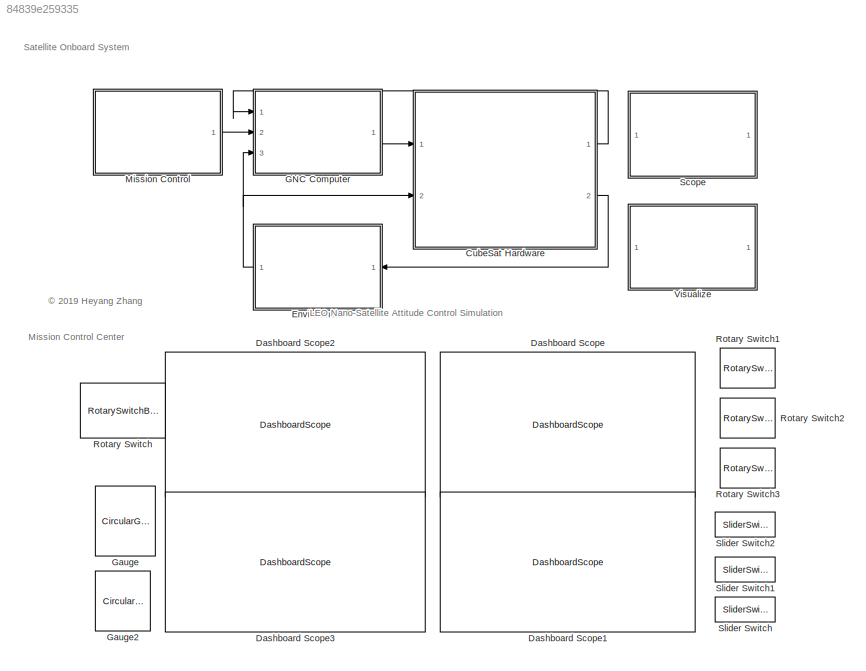
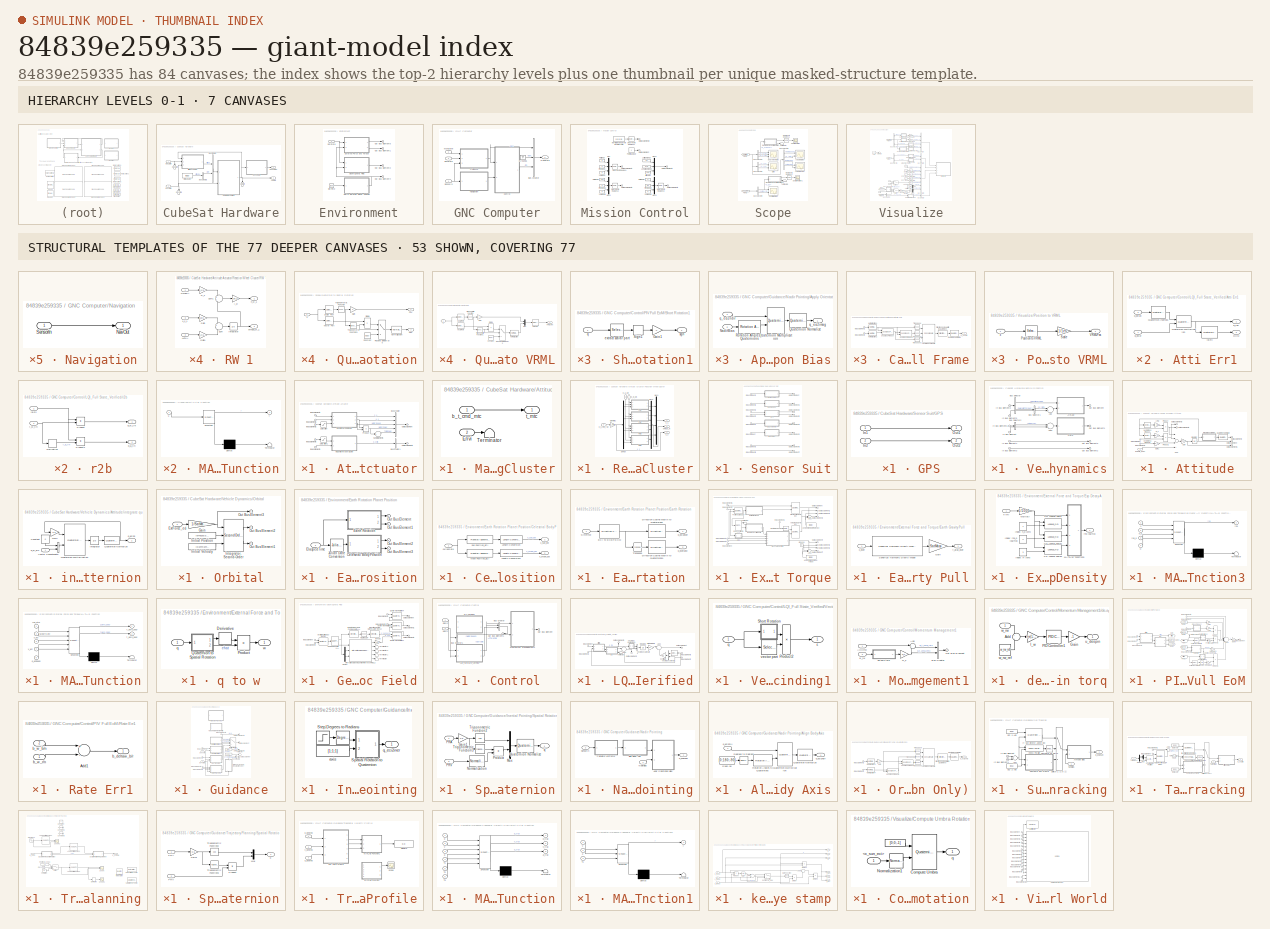
[diagram: thumbnail index - top-2 hierarchy levels (7 canvases) + 53 structural-template representatives of the remaining 77 canvases]
MODEL slx_84839e259335
KIND model
CONFIG AbsTol = auto
CONFIG EnableMultiTasking = off
CONFIG FixedStep = 0.1
CONFIG MaxStep = auto
CONFIG MinStep = auto
CONFIG RelTol = 1e-5
CONFIG SampleTimeConstraint = Unconstrained
CONFIG Solver = ode4
CONFIG SolverName = ode4
CONFIG StartTime = 0.0
CONFIG StopTime = 54000
WORKSPACE source: external: MATLAB File  (data not in archive)
BLOCK [SubSystem] CubeSat Hardware
  Ports = [2, 2]
  RequestExecContextInheritance = off
BLOCK [Goto] CubeSat Hardware/ 
  GotoTag = GNCState
  TagVisibility = global
BLOCK [Goto] CubeSat Hardware/  
  GotoTag = SatState
  TagVisibility = global
BLOCK [Goto] CubeSat Hardware/   
  GotoTag = EnvState
  TagVisibility = global
BLOCK [SubSystem] CubeSat Hardware/Attitude Actuator
  Ports = [3, 1]
  RequestExecContextInheritance = off
BLOCK [BusCreator] CubeSat Hardware/Attitude Actuator/Bus Creator
  DisplayOption = bar
  InheritFromInputs = on
  Inputs = 5
  Ports = [5, 1]
BLOCK [BusCreator] CubeSat Hardware/Attitude Actuator/Bus Creator1
  DisplayOption = bar
  InheritFromInputs = on
  Inputs = 1
  Ports = [1, 1]
BLOCK [Inport] CubeSat Hardware/Attitude Actuator/In Bus Element2
  IconDisplay = Port number
  Port = 2
BLOCK [Inport] CubeSat Hardware/Attitude Actuator/In Bus Element3
  IconDisplay = Port number
  Port = 3
BLOCK [Inport] CubeSat Hardware/Attitude Actuator/In Bus Element4
  IconDisplay = Port number
BLOCK [Inport] CubeSat Hardware/Attitude Actuator/In Bus Element5
  IconDisplay = Port number
  Port = 2
BLOCK [Inport] CubeSat Hardware/Attitude Actuator/In Bus Element6
  IconDisplay = Port number
BLOCK [SubSystem] CubeSat Hardware/Attitude Actuator/Magnetic Torquer Cluster
  Ports = [2, 1]
  RequestExecContextInheritance = off
BLOCK [Inport] CubeSat Hardware/Attitude Actuator/Magnetic Torquer Cluster/Envi
  IconDisplay = Port number
  Port = 2
BLOCK [Terminator] CubeSat Hardware/Attitude Actuator/Magnetic Torquer Cluster/Terminator
BLOCK [Inport] CubeSat Hardware/Attitude Actuator/Magnetic Torquer Cluster/b_t_cmd_mtc
  IconDisplay = Port number
BLOCK [Outport] CubeSat Hardware/Attitude Actuator/Magnetic Torquer Cluster/t_mtc
  IconDisplay = Port number
BLOCK [Outport] CubeSat Hardware/Attitude Actuator/Out Bus Element
  IconDisplay = Port number
BLOCK [Outport] CubeSat Hardware/Attitude Actuator/Out Bus Element2
  IconDisplay = Port number
BLOCK [Product] CubeSat Hardware/Attitude Actuator/Product
  InputSameDT = off
  OutDataTypeStr = Inherit: Inherit via internal rule
  Ports = [2, 1]
  RndMeth = Floor
  SaturateOnIntegerOverflow = off
BLOCK [SubSystem] CubeSat Hardware/Attitude Actuator/Reaction Wheel Cluster
  Ports = [3, 3]
  RequestExecContextInheritance = off
BLOCK [Demux] CubeSat Hardware/Attitude Actuator/Reaction Wheel Cluster/Demux
  DisplayOption = bar
  Ports = [1, 4]
BLOCK [Gain] CubeSat Hardware/Attitude Actuator/Reaction Wheel Cluster/Distri Mtx2
  Gain = D_distri
  Multiplication = Matrix(K*u)
  OutDataTypeStr = Inherit: Inherit via internal rule
  ParamDataTypeStr = Inherit: Inherit via internal rule
  SaturateOnIntegerOverflow = off
BLOCK [Mux] CubeSat Hardware/Attitude Actuator/Reaction Wheel Cluster/Mux1
  DisplayOption = bar
  Ports = [4, 1]
BLOCK [Mux] CubeSat Hardware/Attitude Actuator/Reaction Wheel Cluster/Mux2
  DisplayOption = bar
  Ports = [4, 1]
BLOCK [SubSystem] CubeSat Hardware/Attitude Actuator/Reaction Wheel Cluster/RW 1
  Ports = [3, 2]
  RequestExecContextInheritance = off
BLOCK [Inport] CubeSat Hardware/Attitude Actuator/Reaction Wheel Cluster/RW 1/ALPHA
  IconDisplay = Port number
  Port = 2
BLOCK [Gain] CubeSat Hardware/Attitude Actuator/Reaction Wheel Cluster/RW 1/G_s
  Gain = G_s(:,1).'
  Multiplication = Matrix(K*u)
  OutDataTypeStr = Inherit: Inherit via internal rule
  ParamDataTypeStr = Inherit: Inherit via internal rule
  SaturateOnIntegerOverflow = off
BLOCK [Gain] CubeSat Hardware/Attitude Actuator/Reaction Wheel Cluster/RW 1/Gain
  Gain = 1/I_w(1,1)
  OutDataTypeStr = Inherit: Inherit via internal rule
  ParamDataTypeStr = Inherit: Inherit via internal rule
  SaturateOnIntegerOverflow = off
BLOCK [Gain] CubeSat Hardware/Attitude Actuator/Reaction Wheel Cluster/RW 1/Gain1
  Gain = G_s(:,1).'
  Multiplication = Matrix(K*u)
  OutDataTypeStr = Inherit: Inherit via internal rule
  ParamDataTypeStr = Inherit: Inherit via internal rule
  SaturateOnIntegerOverflow = off
BLOCK [Gain] CubeSat Hardware/Attitude Actuator/Reaction Wheel Cluster/RW 1/I_w
  Gain = I_w(1,1)
  OutDataTypeStr = Inherit: Inherit via internal rule
  ParamDataTypeStr = Inherit: Inherit via internal rule
  SaturateOnIntegerOverflow = off
BLOCK [Integrator] CubeSat Hardware/Attitude Actuator/Reaction Wheel Cluster/RW 1/Integrator
  Ports = [1, 1]
BLOCK [Inport] CubeSat Hardware/Attitude Actuator/Reaction Wheel Cluster/RW 1/OMEGA
  IconDisplay = Port number
BLOCK [Sum] CubeSat Hardware/Attitude Actuator/Reaction Wheel Cluster/RW 1/Sum
  IconShape = round
  InputSameDT = off
  Inputs = +-
  OutDataTypeStr = Inherit: Inherit via internal rule
  Ports = [2, 1]
  SaturateOnIntegerOverflow = off
BLOCK [Sum] CubeSat Hardware/Attitude Actuator/Reaction Wheel Cluster/RW 1/Sum1
  IconShape = round
  InputSameDT = off
  OutDataTypeStr = Inherit: Inherit via internal rule
  Ports = [2, 1]
  SaturateOnIntegerOverflow = off
BLOCK [Outport] CubeSat Hardware/Attitude Actuator/Reaction Wheel Cluster/RW 1/h_w_1
  IconDisplay = Port number
BLOCK [Outport] CubeSat Hardware/Attitude Actuator/Reaction Wheel Cluster/RW 1/omega_w_1
  IconDisplay = Port number
  Port = 2
BLOCK [Inport] CubeSat Hardware/Attitude Actuator/Reaction Wheel Cluster/RW 1/u_s_1
  IconDisplay = Port number
  Port = 3
BLOCK [SubSystem] CubeSat Hardware/Attitude Actuator/Reaction Wheel Cluster/RW 2
  Ports = [3, 2]
  RequestExecContextInheritance = off
BLOCK [Inport] CubeSat Hardware/Attitude Actuator/Reaction Wheel Cluster/RW 2/ALPHA
  IconDisplay = Port number
  Port = 2
BLOCK [Gain] CubeSat Hardware/Attitude Actuator/Reaction Wheel Cluster/RW 2/Gain
  Gain = 1/I_w(1,2)
  OutDataTypeStr = Inherit: Inherit via internal rule
  ParamDataTypeStr = Inherit: Inherit via internal rule
  SaturateOnIntegerOverflow = off
BLOCK [Gain] CubeSat Hardware/Attitude Actuator/Reaction Wheel Cluster/RW 2/Gain1
  Gain = G_s(:,2).'
  Multiplication = Matrix(K*u)
  OutDataTypeStr = Inherit: Inherit via internal rule
  ParamDataTypeStr = Inherit: Inherit via internal rule
  SaturateOnIntegerOverflow = off
BLOCK [Gain] CubeSat Hardware/Attitude Actuator/Reaction Wheel Cluster/RW 2/Gain2
  Gain = G_s(:,2).'
  Multiplication = Matrix(K*u)
  OutDataTypeStr = Inherit: Inherit via internal rule
  ParamDataTypeStr = Inherit: Inherit via internal rule
  SaturateOnIntegerOverflow = off
BLOCK [Gain] CubeSat Hardware/Attitude Actuator/Reaction Wheel Cluster/RW 2/I_w
  Gain = I_w(1,2)
  OutDataTypeStr = Inherit: Inherit via internal rule
  ParamDataTypeStr = Inherit: Inherit via internal rule
  SaturateOnIntegerOverflow = off
BLOCK [Integrator] CubeSat Hardware/Attitude Actuator/Reaction Wheel Cluster/RW 2/Integrator
  Ports = [1, 1]
BLOCK [Inport] CubeSat Hardware/Attitude Actuator/Reaction Wheel Cluster/RW 2/OMEGA
  IconDisplay = Port number
BLOCK [Sum] CubeSat Hardware/Attitude Actuator/Reaction Wheel Cluster/RW 2/Sum
  IconShape = round
  InputSameDT = off
  Inputs = +-
  OutDataTypeStr = Inherit: Inherit via internal rule
  Ports = [2, 1]
  SaturateOnIntegerOverflow = off
BLOCK [Sum] CubeSat Hardware/Attitude Actuator/Reaction Wheel Cluster/RW 2/Sum1
  IconShape = round
  InputSameDT = off
  OutDataTypeStr = Inherit: Inherit via internal rule
  Ports = [2, 1]
  SaturateOnIntegerOverflow = off
BLOCK [Outport] CubeSat Hardware/Attitude Actuator/Reaction Wheel Cluster/RW 2/h_w_2
  IconDisplay = Port number
BLOCK [Outport] CubeSat Hardware/Attitude Actuator/Reaction Wheel Cluster/RW 2/omega_w_2
  IconDisplay = Port number
  Port = 2
BLOCK [Inport] CubeSat Hardware/Attitude Actuator/Reaction Wheel Cluster/RW 2/u_s_2
  IconDisplay = Port number
  Port = 3
BLOCK [SubSystem] CubeSat Hardware/Attitude Actuator/Reaction Wheel Cluster/RW 3
  Ports = [3, 2]
  RequestExecContextInheritance = off
BLOCK [Inport] CubeSat Hardware/Attitude Actuator/Reaction Wheel Cluster/RW 3/ALPHA
  IconDisplay = Port number
  Port = 2
BLOCK [Gain] CubeSat Hardware/Attitude Actuator/Reaction Wheel Cluster/RW 3/Gain
  Gain = 1/I_w(1,3)
  OutDataTypeStr = Inherit: Inherit via internal rule
  ParamDataTypeStr = Inherit: Inherit via internal rule
  SaturateOnIntegerOverflow = off
BLOCK [Gain] CubeSat Hardware/Attitude Actuator/Reaction Wheel Cluster/RW 3/Gain1
  Gain = G_s(:,3).'
  Multiplication = Matrix(K*u)
  OutDataTypeStr = Inherit: Inherit via internal rule
  ParamDataTypeStr = Inherit: Inherit via internal rule
  SaturateOnIntegerOverflow = off
BLOCK [Gain] CubeSat Hardware/Attitude Actuator/Reaction Wheel Cluster/RW 3/Gain2
  Gain = G_s(:,3).'
  Multiplication = Matrix(K*u)
  OutDataTypeStr = Inherit: Inherit via internal rule
  ParamDataTypeStr = Inherit: Inherit via internal rule
  SaturateOnIntegerOverflow = off
BLOCK [Gain] CubeSat Hardware/Attitude Actuator/Reaction Wheel Cluster/RW 3/I_w
  Gain = I_w(1,3)
  OutDataTypeStr = Inherit: Inherit via internal rule
  ParamDataTypeStr = Inherit: Inherit via internal rule
  SaturateOnIntegerOverflow = off
BLOCK [Integrator] CubeSat Hardware/Attitude Actuator/Reaction Wheel Cluster/RW 3/Integrator
  Ports = [1, 1]
BLOCK [Inport] CubeSat Hardware/Attitude Actuator/Reaction Wheel Cluster/RW 3/OMEGA
  IconDisplay = Port number
BLOCK [Sum] CubeSat Hardware/Attitude Actuator/Reaction Wheel Cluster/RW 3/Sum
  IconShape = round
  InputSameDT = off
  Inputs = |+-
  OutDataTypeStr = Inherit: Inherit via internal rule
  Ports = [2, 1]
  SaturateOnIntegerOverflow = off
BLOCK [Sum] CubeSat Hardware/Attitude Actuator/Reaction Wheel Cluster/RW 3/Sum1
  IconShape = round
  InputSameDT = off
  Inputs = |++
  OutDataTypeStr = Inherit: Inherit via internal rule
  Ports = [2, 1]
  SaturateOnIntegerOverflow = off
BLOCK [Outport] CubeSat Hardware/Attitude Actuator/Reaction Wheel Cluster/RW 3/h_w_3
  IconDisplay = Port number
BLOCK [Outport] CubeSat Hardware/Attitude Actuator/Reaction Wheel Cluster/RW 3/omega_w_3
  IconDisplay = Port number
  Port = 2
BLOCK [Inport] CubeSat Hardware/Attitude Actuator/Reaction Wheel Cluster/RW 3/u_s_3
  IconDisplay = Port number
  Port = 3
BLOCK [SubSystem] CubeSat Hardware/Attitude Actuator/Reaction Wheel Cluster/RW 4
  Ports = [3, 2]
  RequestExecContextInheritance = off
BLOCK [Inport] CubeSat Hardware/Attitude Actuator/Reaction Wheel Cluster/RW 4/ALPHA
  IconDisplay = Port number
  Port = 2
BLOCK [Gain] CubeSat Hardware/Attitude Actuator/Reaction Wheel Cluster/RW 4/Gain
  Gain = 1/I_w(1,4)
  OutDataTypeStr = Inherit: Inherit via internal rule
  ParamDataTypeStr = Inherit: Inherit via internal rule
  SaturateOnIntegerOverflow = off
BLOCK [Gain] CubeSat Hardware/Attitude Actuator/Reaction Wheel Cluster/RW 4/Gain1
  Gain = G_s(:,4).'
  Multiplication = Matrix(K*u)
  OutDataTypeStr = Inherit: Inherit via internal rule
  ParamDataTypeStr = Inherit: Inherit via internal rule
  SaturateOnIntegerOverflow = off
BLOCK [Gain] CubeSat Hardware/Attitude Actuator/Reaction Wheel Cluster/RW 4/Gain2
  Gain = G_s(:,4).'
  Multiplication = Matrix(K*u)
  OutDataTypeStr = Inherit: Inherit via internal rule
  ParamDataTypeStr = Inherit: Inherit via internal rule
  SaturateOnIntegerOverflow = off
BLOCK [Gain] CubeSat Hardware/Attitude Actuator/Reaction Wheel Cluster/RW 4/I_w
  Gain = I_w(1,4)
  OutDataTypeStr = Inherit: Inherit via internal rule
  ParamDataTypeStr = Inherit: Inherit via internal rule
  SaturateOnIntegerOverflow = off
BLOCK [Integrator] CubeSat Hardware/Attitude Actuator/Reaction Wheel Cluster/RW 4/Integrator
  Ports = [1, 1]
BLOCK [Inport] CubeSat Hardware/Attitude Actuator/Reaction Wheel Cluster/RW 4/OMEGA
  IconDisplay = Port number
BLOCK [Sum] CubeSat Hardware/Attitude Actuator/Reaction Wheel Cluster/RW 4/Sum
  IconShape = round
  InputSameDT = off
  Inputs = +-
  OutDataTypeStr = Inherit: Inherit via internal rule
  Ports = [2, 1]
  SaturateOnIntegerOverflow = off
BLOCK [Sum] CubeSat Hardware/Attitude Actuator/Reaction Wheel Cluster/RW 4/Sum1
  IconShape = round
  InputSameDT = off
  OutDataTypeStr = Inherit: Inherit via internal rule
  Ports = [2, 1]
  SaturateOnIntegerOverflow = off
BLOCK [Outport] CubeSat Hardware/Attitude Actuator/Reaction Wheel Cluster/RW 4/h_w_4
  IconDisplay = Port number
BLOCK [Outport] CubeSat Hardware/Attitude Actuator/Reaction Wheel Cluster/RW 4/omega_w_4
  IconDisplay = Port number
  Port = 2
BLOCK [Inport] CubeSat Hardware/Attitude Actuator/Reaction Wheel Cluster/RW 4/u_s_4
  IconDisplay = Port number
  Port = 3
BLOCK [Inport] CubeSat Hardware/Attitude Actuator/Reaction Wheel Cluster/b_a_b//n
  IconDisplay = Port number
  Port = 2
BLOCK [Inport] CubeSat Hardware/Attitude Actuator/Reaction Wheel Cluster/b_t_cmd_rwc
  IconDisplay = Port number
  Port = 3
BLOCK [Inport] CubeSat Hardware/Attitude Actuator/Reaction Wheel Cluster/b_w_b//n
  IconDisplay = Port number
BLOCK [Outport] CubeSat Hardware/Attitude Actuator/Reaction Wheel Cluster/h_s
  IconDisplay = Port number
BLOCK [Outport] CubeSat Hardware/Attitude Actuator/Reaction Wheel Cluster/omega_w
  IconDisplay = Port number
  Port = 3
BLOCK [Outport] CubeSat Hardware/Attitude Actuator/Reaction Wheel Cluster/u_s
  IconDisplay = Port number
  Port = 2
BLOCK [Saturate] CubeSat Hardware/Attitude Actuator/Saturation
  InputPortMap = u0
  LowerLimit = -tau_sat_rw
  Ports = [1, 1]
  UpperLimit = tau_sat_rw
BLOCK [Saturate] CubeSat Hardware/Attitude Actuator/Saturation1
  InputPortMap = u0
  LowerLimit = -tau_sat_mt
  Ports = [1, 1]
  UpperLimit = tau_sat_mt
BLOCK [Sum] CubeSat Hardware/Attitude Actuator/Sum of Elements
  InputSameDT = off
  Inputs = +
  OutDataTypeStr = Inherit: Inherit via internal rule
  Ports = [1, 1]
  SaturateOnIntegerOverflow = off
BLOCK [BusCreator] CubeSat Hardware/Bus Creator
  DisplayOption = bar
  InheritFromInputs = on
  Inputs = 2
  Ports = [2, 1]
BLOCK [BusCreator] CubeSat Hardware/Bus Creator2
  DisplayOption = bar
  InheritFromInputs = on
  Inputs = 1
  Ports = [1, 1]
BLOCK [Inport] CubeSat Hardware/EnvState
  IconDisplay = Port number
  Port = 2
BLOCK [Inport] CubeSat Hardware/GNCState
  IconDisplay = Port number
BLOCK [Constant] CubeSat Hardware/Orbit Actuator
  Value = [0;0;0]
BLOCK [Outport] CubeSat Hardware/SatState
  IconDisplay = Port number
  Port = 2
BLOCK [SubSystem] CubeSat Hardware/Sensor Suit
  Ports = [1, 1]
  RequestExecContextInheritance = off
BLOCK [SubSystem] CubeSat Hardware/Sensor Suit/Encoder
  Ports = [1, 1]
  RequestExecContextInheritance = off
BLOCK [Inport] CubeSat Hardware/Sensor Suit/Encoder/In1
  IconDisplay = Port number
BLOCK [Outport] CubeSat Hardware/Sensor Suit/Encoder/Out1
  IconDisplay = Port number
BLOCK [SubSystem] CubeSat Hardware/Sensor Suit/GPS
  Ports = [2, 2]
  RequestExecContextInheritance = off
BLOCK [Inport] CubeSat Hardware/Sensor Suit/GPS/In1
  IconDisplay = Port number
BLOCK [Inport] CubeSat Hardware/Sensor Suit/GPS/In2
  IconDisplay = Port number
  Port = 2
BLOCK [Outport] CubeSat Hardware/Sensor Suit/GPS/Out1
  IconDisplay = Port number
BLOCK [Outport] CubeSat Hardware/Sensor Suit/GPS/Out2
  IconDisplay = Port number
  Port = 2
BLOCK [SubSystem] CubeSat Hardware/Sensor Suit/Gyroscope
  Ports = [1, 1]
  RequestExecContextInheritance = off
BLOCK [Inport] CubeSat Hardware/Sensor Suit/Gyroscope/In1
  IconDisplay = Port number
BLOCK [Outport] CubeSat Hardware/Sensor Suit/Gyroscope/Out1
  IconDisplay = Port number
BLOCK [Inport] CubeSat Hardware/Sensor Suit/In Bus Element
  IconDisplay = Port number
BLOCK [Inport] CubeSat Hardware/Sensor Suit/In Bus Element2
  IconDisplay = Port number
BLOCK [Inport] CubeSat Hardware/Sensor Suit/In Bus Element3
  IconDisplay = Port number
BLOCK [Inport] CubeSat Hardware/Sensor Suit/In Bus Element4
  IconDisplay = Port number
BLOCK [Inport] CubeSat Hardware/Sensor Suit/In Bus Element5
  IconDisplay = Port number
BLOCK [Inport] CubeSat Hardware/Sensor Suit/In Bus Element6
  IconDisplay = Port number
BLOCK [Inport] CubeSat Hardware/Sensor Suit/In Bus Element7
  IconDisplay = Port number
BLOCK [Inport] CubeSat Hardware/Sensor Suit/In Bus Element8
  IconDisplay = Port number
BLOCK [SubSystem] CubeSat Hardware/Sensor Suit/Magnetometer
  Ports = [1, 1]
  RequestExecContextInheritance = off
BLOCK [Inport] CubeSat Hardware/Sensor Suit/Magnetometer/In1
  IconDisplay = Port number
BLOCK [Outport] CubeSat Hardware/Sensor Suit/Magnetometer/Out1
  IconDisplay = Port number
BLOCK [Outport] CubeSat Hardware/Sensor Suit/Out Bus Element
  IconDisplay = Port number
BLOCK [Outport] CubeSat Hardware/Sensor Suit/Out Bus Element1
  IconDisplay = Port number
BLOCK [Outport] CubeSat Hardware/Sensor Suit/Out Bus Element2
  IconDisplay = Port number
BLOCK [Outport] CubeSat Hardware/Sensor Suit/Out Bus Element3
  IconDisplay = Port number
BLOCK [Outport] CubeSat Hardware/Sensor Suit/Out Bus Element4
  IconDisplay = Port number
BLOCK [Outport] CubeSat Hardware/Sensor Suit/Out Bus Element5
  IconDisplay = Port number
BLOCK [Outport] CubeSat Hardware/Sensor Suit/Out Bus Element6
  IconDisplay = Port number
BLOCK [Outport] CubeSat Hardware/Sensor Suit/Out Bus Element7
  IconDisplay = Port number
BLOCK [SubSystem] CubeSat Hardware/Sensor Suit/Sun Sensor
  Ports = [1, 1]
  RequestExecContextInheritance = off
BLOCK [Inport] CubeSat Hardware/Sensor Suit/Sun Sensor/In1
  IconDisplay = Port number
BLOCK [Outport] CubeSat Hardware/Sensor Suit/Sun Sensor/Out1
  IconDisplay = Port number
BLOCK [Outport] CubeSat Hardware/SensorOut
  IconDisplay = Port number
BLOCK [SubSystem] CubeSat Hardware/Vehicle Dynamics
  Ports = [2, 1]
  RequestExecContextInheritance = off
BLOCK [Sum] CubeSat Hardware/Vehicle Dynamics/Add
  IconShape = round
  InputSameDT = off
  Inputs = |++
  OutDataTypeStr = Inherit: Inherit via internal rule
  Ports = [2, 1]
  SaturateOnIntegerOverflow = off
BLOCK [Sum] CubeSat Hardware/Vehicle Dynamics/Add1
  IconShape = round
  InputSameDT = off
  Inputs = |++
  OutDataTypeStr = Inherit: Inherit via internal rule
  Ports = [2, 1]
  SaturateOnIntegerOverflow = off
BLOCK [SubSystem] CubeSat Hardware/Vehicle Dynamics/Attitude
  Ports = [2, 1]
  RequestExecContextInheritance = off
BLOCK [Inport] CubeSat Hardware/Vehicle Dynamics/Attitude/ExtTorq_body
  IconDisplay = Port number
  Port = 2
BLOCK [Gain] CubeSat Hardware/Vehicle Dynamics/Attitude/G_s
  Gain = G_s
  Multiplication = Matrix(u*K)
  OutDataTypeStr = Inherit: Inherit via internal rule
  ParamDataTypeStr = Inherit: Inherit via internal rule
  SaturateOnIntegerOverflow = off
BLOCK [Gain] CubeSat Hardware/Vehicle Dynamics/Attitude/Gain
  Gain = inv(I_rw)
  Multiplication = Matrix(K*u)
  OutDataTypeStr = Inherit: Inherit via internal rule
  ParamDataTypeStr = Inherit: Inherit via internal rule
  SaturateOnIntegerOverflow = off
BLOCK [Gain] CubeSat Hardware/Vehicle Dynamics/Attitude/Gain1
  Gain = G_s
  Multiplication = Matrix(K*u)
  OutDataTypeStr = Inherit: Inherit via internal rule
  ParamDataTypeStr = Inherit: Inherit via internal rule
  SaturateOnIntegerOverflow = off
BLOCK [Gain] CubeSat Hardware/Vehicle Dynamics/Attitude/I_RW
  Gain = I_rw
  Multiplication = Matrix(u*K)
  OutDataTypeStr = Inherit: Inherit via internal rule
  ParamDataTypeStr = Inherit: Inherit via internal rule
  SaturateOnIntegerOverflow = off
BLOCK [Inport] CubeSat Hardware/Vehicle Dynamics/Attitude/In Bus Element
  IconDisplay = Port number
BLOCK [Inport] CubeSat Hardware/Vehicle Dynamics/Attitude/In Bus Element1
  IconDisplay = Port number
BLOCK [Integrator] CubeSat Hardware/Vehicle Dynamics/Attitude/Integrator
  InitialCondition = OMEGA_0
  Ports = [1, 1]
BLOCK [Outport] CubeSat Hardware/Vehicle Dynamics/Attitude/Out Bus Element
  IconDisplay = Port number
BLOCK [Outport] CubeSat Hardware/Vehicle Dynamics/Attitude/Out Bus Element1
  IconDisplay = Port number
BLOCK [Outport] CubeSat Hardware/Vehicle Dynamics/Attitude/Out Bus Element2
  IconDisplay = Port number
BLOCK [Outport] CubeSat Hardware/Vehicle Dynamics/Attitude/Out Bus Element3
  IconDisplay = Port number
BLOCK [Outport] CubeSat Hardware/Vehicle Dynamics/Attitude/Out Bus Element5
  IconDisplay = Port number
BLOCK [Product] CubeSat Hardware/Vehicle Dynamics/Attitude/Product
  InputSameDT = off
  Multiplication = Matrix(*)
  OutDataTypeStr = Inherit: Inherit via internal rule
  Ports = [2, 1]
  RndMeth = Floor
  SaturateOnIntegerOverflow = off
BLOCK [Product] CubeSat Hardware/Vehicle Dynamics/Attitude/Product1
  InputSameDT = off
  Multiplication = Matrix(*)
  OutDataTypeStr = Inherit: Inherit via internal rule
  Ports = [2, 1]
  RndMeth = Floor
  SaturateOnIntegerOverflow = off
BLOCK [Reference] CubeSat Hardware/Vehicle Dynamics/Attitude/Quaternion Normalize  REF=sharedutil/Quaternion
Normalize
  Ports = [1, 1]
  SourceBlock = sharedutil/Quaternion\nNormalize
  SourceProductBaseCode = AE
  SourceProductName = Aerospace Blockset
  SourceType = Quaternion Normalize
BLOCK [Sum] CubeSat Hardware/Vehicle Dynamics/Attitude/Sum
  InputSameDT = off
  Inputs = ---+
  OutDataTypeStr = Inherit: Inherit via internal rule
  Ports = [4, 1]
  SaturateOnIntegerOverflow = off
BLOCK [Reference] CubeSat Hardware/Vehicle Dynamics/Attitude/Vector Cross Product  REF=ADCS_lib/Dynamics1/Vector Cross Product
  Ports = [1, 1]
  SourceBlock = ADCS_lib/Dynamics1/Vector Cross Product
  SourceType = SubSystem
BLOCK [Reference] CubeSat Hardware/Vehicle Dynamics/Attitude/Vector Cross Product1  REF=ADCS_lib/Dynamics1/Vector Cross Product1
  Ports = [1, 1]
  SourceBlock = ADCS_lib/Dynamics1/Vector Cross Product1
  SourceType = SubSystem
BLOCK [SubSystem] CubeSat Hardware/Vehicle Dynamics/Attitude/integrate quaternion
  AncestorBlock = ADCS_lib/Dynamics1/integrate quaternion
  Ports = [1, 1]
  RequestExecContextInheritance = off
BLOCK [Constant] CubeSat Hardware/Vehicle Dynamics/Attitude/integrate quaternion/Constant
  Value = 0
BLOCK [Gain] CubeSat Hardware/Vehicle Dynamics/Attitude/integrate quaternion/Gain
  Gain = 0.5
  OutDataTypeStr = Inherit: Inherit via internal rule
  ParamDataTypeStr = Inherit: Inherit via internal rule
  SaturateOnIntegerOverflow = off
BLOCK [Integrator] CubeSat Hardware/Vehicle Dynamics/Attitude/integrate quaternion/Integrator
  InitialCondition = quat_0
  Ports = [1, 1]
BLOCK [Reference] CubeSat Hardware/Vehicle Dynamics/Attitude/integrate quaternion/Quaternion Multiplication  REF=aerolibutil/Quaternion
Multiplication
  Ports = [2, 1]
  SourceBlock = aerolibutil/Quaternion\nMultiplication
  SourceProductBaseCode = AE
  SourceProductName = Aerospace Blockset
  SourceType = Quaternion Multiplication
BLOCK [Reference] CubeSat Hardware/Vehicle Dynamics/Attitude/integrate quaternion/Quaternion Normalize  REF=sharedutil/Quaternion
Normalize
  Ports = [1, 1]
  SourceBlock = sharedutil/Quaternion\nNormalize
  SourceProductBaseCode = AE
  SourceProductName = Aerospace Blockset
  SourceType = Quaternion Normalize
BLOCK [Concatenate] CubeSat Hardware/Vehicle Dynamics/Attitude/integrate quaternion/Vector Concatenate
  Ports = [2, 1]
BLOCK [Inport] CubeSat Hardware/Vehicle Dynamics/Attitude/integrate quaternion/b_w_b//n
  IconDisplay = Port number
BLOCK [Outport] CubeSat Hardware/Vehicle Dynamics/Attitude/integrate quaternion/q_eci2b
  IconDisplay = Port number
BLOCK [BusSelector] CubeSat Hardware/Vehicle Dynamics/Bus Selector
  OutputAsBus = off
  OutputSignals = ReactionWheel,MagneticTorquer
  Ports = [1, 2]
BLOCK [BusSelector] CubeSat Hardware/Vehicle Dynamics/Bus Selector1
  OutputAsBus = off
  OutputSignals = b_t_mtc
  Ports = [1, 1]
BLOCK [BusSelector] CubeSat Hardware/Vehicle Dynamics/Bus Selector2
  OutputAsBus = off
  OutputSignals = CtrlForce
  Ports = [1, 1]
BLOCK [Inport] CubeSat Hardware/Vehicle Dynamics/In Bus Element
  IconDisplay = Port number
  Port = 2
BLOCK [Inport] CubeSat Hardware/Vehicle Dynamics/In Bus Element2
  IconDisplay = Port number
BLOCK [Inport] CubeSat Hardware/Vehicle Dynamics/In Bus Element3
  IconDisplay = Port number
BLOCK [Inport] CubeSat Hardware/Vehicle Dynamics/In Bus Element4
  IconDisplay = Port number
  Port = 2
BLOCK [Inport] CubeSat Hardware/Vehicle Dynamics/In Bus Element5
  IconDisplay = Port number
  Port = 2
BLOCK [Inport] CubeSat Hardware/Vehicle Dynamics/In Bus Element6
  IconDisplay = Port number
BLOCK [SubSystem] CubeSat Hardware/Vehicle Dynamics/Orbital
  Ports = [1, 1]
  RequestExecContextInheritance = off
BLOCK [Inport] CubeSat Hardware/Vehicle Dynamics/Orbital/ExtForce_eci
  IconDisplay = Port number
BLOCK [Gain] CubeSat Hardware/Vehicle Dynamics/Orbital/Gain
  Gain = 1/SatMass
  OutDataTypeStr = Inherit: Inherit via internal rule
  ParamDataTypeStr = Inherit: Inherit via internal rule
  SaturateOnIntegerOverflow = off
BLOCK [Constant] CubeSat Hardware/Vehicle Dynamics/Orbital/Initial Position
  Value = [6778100;0;0]
BLOCK [Constant] CubeSat Hardware/Vehicle Dynamics/Orbital/Initial Velocity
  Value = [0;5444;5444]
BLOCK [SecondOrderIntegrator] CubeSat Hardware/Vehicle Dynamics/Orbital/Integrator, Second-Order
  ICSourceDXDT = external
  ICSourceX = external
  Ports = [3, 2]
BLOCK [Outport] CubeSat Hardware/Vehicle Dynamics/Orbital/Out Bus Element1
  IconDisplay = Port number
BLOCK [Outport] CubeSat Hardware/Vehicle Dynamics/Orbital/Out Bus Element2
  IconDisplay = Port number
BLOCK [Outport] CubeSat Hardware/Vehicle Dynamics/Orbital/Out Bus Element3
  IconDisplay = Port number
BLOCK [Outport] CubeSat Hardware/Vehicle Dynamics/Out Bus Element
  IconDisplay = Port number
BLOCK [Outport] CubeSat Hardware/Vehicle Dynamics/Out Bus Element1
  IconDisplay = Port number
BLOCK [Outport] CubeSat Hardware/Vehicle Dynamics/Out Bus Element2
  IconDisplay = Port number
BLOCK [Outport] CubeSat Hardware/Vehicle Dynamics/Out Bus Element3
  IconDisplay = Port number
BLOCK [DashboardScope] Dashboard Scope
  ShowInitialText = off
BLOCK [DashboardScope] Dashboard Scope1
  ShowInitialText = off
BLOCK [DashboardScope] Dashboard Scope2
  ShowInitialText = off
BLOCK [DashboardScope] Dashboard Scope3
  ShowInitialText = off
BLOCK [SubSystem] Environment
  Ports = [1, 1]
  RequestExecContextInheritance = off
BLOCK [SubSystem] Environment/Earth Rotation Planet Position
  Ports = [1, 1]
  RequestExecContextInheritance = off
BLOCK [SubSystem] Environment/Earth Rotation Planet Position/Celestrial Body Position
  Ports = [1, 2]
  RequestExecContextInheritance = off
BLOCK [Inport] Environment/Earth Rotation Planet Position/Celestrial Body Position/JulianDate
  IconDisplay = Port number
BLOCK [Reference] Environment/Earth Rotation Planet Position/Celestrial Body Position/Length Conversion  REF=aerolibconvert2/Length Conversion
  Ports = [1, 1]
  SourceBlock = aerolibconvert2/Length Conversion
  SourceProductBaseCode = AE
  SourceProductName = Aerospace Blockset
  SourceType = Length Conversion
BLOCK [Reference] Environment/Earth Rotation Planet Position/Celestrial Body Position/Length Conversion1  REF=aerolibconvert2/Length Conversion
  Ports = [1, 1]
  SourceBlock = aerolibconvert2/Length Conversion
  SourceProductBaseCode = AE
  SourceProductName = Aerospace Blockset
  SourceType = Length Conversion
BLOCK [Reference] Environment/Earth Rotation Planet Position/Celestrial Body Position/Moon Position_ECI  REF=aerolibcelestial/Planetary Ephemeris
  Ports = [1, 1]
  SourceBlock = aerolibcelestial/Planetary Ephemeris
  SourceProductBaseCode = AE
  SourceProductName = Aerospace Blockset
  SourceType = PlanetaryEphemeris
BLOCK [Reference] Environment/Earth Rotation Planet Position/Celestrial Body Position/Sun Position_ECI  REF=aerolibcelestial/Planetary Ephemeris
  Ports = [1, 1]
  SourceBlock = aerolibcelestial/Planetary Ephemeris
  SourceProductBaseCode = AE
  SourceProductName = Aerospace Blockset
  SourceType = PlanetaryEphemeris
BLOCK [Outport] Environment/Earth Rotation Planet Position/Celestrial Body Position/x_moon_eci
  IconDisplay = Port number
  Port = 2
BLOCK [Outport] Environment/Earth Rotation Planet Position/Celestrial Body Position/x_sun_eci
  IconDisplay = Port number
BLOCK [SubSystem] Environment/Earth Rotation Planet Position/Earth Rotation 
  Ports = [1, 2]
  RequestExecContextInheritance = off
BLOCK [Reference] Environment/Earth Rotation Planet Position/Earth Rotation /Direction Cosine Matrix to Quaternions  REF=sharedtransform/Direction Cosine Matrix 
to Quaternions
  Ports = [1, 1]
  SourceBlock = sharedtransform/Direction Cosine Matrix \nto Quaternions
  SourceProductBaseCode = AE
  SourceProductName = Aerospace Blockset
  SourceType = DCM2Quaternion
BLOCK [Reference] Environment/Earth Rotation Planet Position/Earth Rotation /Direction Cosine Matrix to Quaternions1  REF=sharedtransform/Direction Cosine Matrix 
to Quaternions
  Ports = [1, 1]
  SourceBlock = sharedtransform/Direction Cosine Matrix \nto Quaternions
  SourceProductBaseCode = AE
  SourceProductName = Aerospace Blockset
  SourceType = DCM2Quaternion
BLOCK [Reference] Environment/Earth Rotation Planet Position/Earth Rotation /ECI to ECEF DCM  REF=aerolibtransform2/Direction Cosine Matrix
ECI to ECEF
  AttributesFormatString = %<red>
  Ports = [1, 1]
  SourceBlock = aerolibtransform2/Direction Cosine Matrix\nECI to ECEF
  SourceProductBaseCode = AE
  SourceProductName = Aerospace Blockset
  SourceType = DCMECItoECEF
BLOCK [Inport] Environment/Earth Rotation Planet Position/Earth Rotation /SimTime
  IconDisplay = Port number
BLOCK [Math] Environment/Earth Rotation Planet Position/Earth Rotation /Transpose
  Operator = transpose
  Ports = [1, 1]
BLOCK [Outport] Environment/Earth Rotation Planet Position/Earth Rotation /q_ecef2eci
  IconDisplay = Port number
  Port = 2
BLOCK [Outport] Environment/Earth Rotation Planet Position/Earth Rotation /q_eci2ecef
  IconDisplay = Port number
BLOCK [Inport] Environment/Earth Rotation Planet Position/ElaspedTime
  IconDisplay = Port number
BLOCK [Reference] Environment/Earth Rotation Planet Position/Julian Date Conversion  REF=aerolibconvert2/Julian Date Conversion
  Ports = [1, 1]
  SourceBlock = aerolibconvert2/Julian Date Conversion
  SourceProductBaseCode = AE
  SourceProductName = Aerospace Blockset
  SourceType = JulianDate
BLOCK [Outport] Environment/Earth Rotation Planet Position/Out Bus Element
  IconDisplay = Port number
BLOCK [Outport] Environment/Earth Rotation Planet Position/Out Bus Element1
  IconDisplay = Port number
BLOCK [Outport] Environment/Earth Rotation Planet Position/Out Bus Element2
  IconDisplay = Port number
BLOCK [Outport] Environment/Earth Rotation Planet Position/Out Bus Element3
  IconDisplay = Port number
BLOCK [SubSystem] Environment/External Force and Torque
  Ports = [2, 2]
  RequestExecContextInheritance = off
BLOCK [Sum] Environment/External Force and Torque/Add2
  IconShape = round
  InputSameDT = off
  Inputs = +++
  OutDataTypeStr = Inherit: Inherit via internal rule
  Ports = [3, 1]
  SaturateOnIntegerOverflow = off
BLOCK [Sum] Environment/External Force and Torque/Add3
  IconShape = round
  InputSameDT = off
  Inputs = +++
  OutDataTypeStr = Inherit: Inherit via internal rule
  Ports = [3, 1]
  SaturateOnIntegerOverflow = off
BLOCK [Reference] Environment/External Force and Torque/Aero Drag BODY to ECI  REF=aerolibutil/Quaternion
Rotation
  Ports = [2, 1]
  SourceBlock = aerolibutil/Quaternion\nRotation
  SourceProductBaseCode = AE
  SourceProductName = Aerospace Blockset
  SourceType = Quaternion Rotation
BLOCK [Reference] Environment/External Force and Torque/ECEF Position to LLA  REF=aerolibtransform2/ECEF Position to LLA
  Ports = [1, 2]
  SourceBlock = aerolibtransform2/ECEF Position to LLA
  SourceProductBaseCode = AE
  SourceProductName = Aerospace Blockset
  SourceType = ECEF to LLA
BLOCK [SubSystem] Environment/External Force and Torque/Earth Gravity Pull
  Ports = [1, 1]
  RequestExecContextInheritance = off
BLOCK [Gain] Environment/External Force and Torque/Earth Gravity Pull/Gain
  Gain = SatMass
  OutDataTypeStr = Inherit: Inherit via internal rule
  ParamDataTypeStr = Inherit: Inherit via internal rule
  SaturateOnIntegerOverflow = off
BLOCK [Reference] Environment/External Force and Torque/Earth Gravity Pull/Spherical Harmonic Gravity Model  REF=aerolibgravity2/Spherical Harmonic Gravity Model
  Ports = [1, 1]
  SourceBlock = aerolibgravity2/Spherical Harmonic Gravity Model
  SourceProductBaseCode = AE
  SourceProductName = Aerospace Blockset
  SourceType = Spherical Harmonic Gravity Model
BLOCK [Outport] Environment/External Force and Torque/Earth Gravity Pull/f_grav_ecef
  IconDisplay = Port number
BLOCK [Inport] Environment/External Force and Torque/Earth Gravity Pull/x_ecef
  IconDisplay = Port number
BLOCK [SubSystem] Environment/External Force and Torque/Exp Decay Air Density
  Ports = [1, 1]
  RequestExecContextInheritance = off
BLOCK [Lookup_n-D] Environment/External Force and Torque/Exp Decay Air Density/2-D Lookup Table
  BreakpointsForDimension1 = [12.5 27.5:5:97.5 105:10:170 190 225:50:475 550:100:950]
  BreakpointsForDimension2 = [1:3]
  InternalRulePriority = Speed
  Ports = [2, 1]
  RndMeth = Simplest
  Table = [0 1.225 8.44; 25 3.899e-2 6.49; 30 1.774e-2 6.75; 35 8.279e-3 7.07; 40 3.972e-3 7.47; 45 1.995e-3 7.83; 50 1.057e-3 7.95; 55 5.821e-4 7.73; 60 3.206e-4 7.29; 65 1.718e-4 6.81; 70 8.770e-5 6.33; 75 4.178e-5 6; 80 1.905e-5 5.7; 85 8.337e-6 5.41; 90 3.396e-6 5.38; 95 1.343e-6 5.74; 100 5.297e-7 6.15; 110 9.661e-8 8.06; 120 2.438e-8 11.6; 130 8.484e-9 16.1; 140 3.845e-9 20.6; 150 2.07e-9 24.6; 160 1....<+246ch>  <repeated x3 — deduplicated; at blocks: 2-D Lookup Table, 2-D Lookup Table1, 2-D Lookup Table2>
BLOCK [Lookup_n-D] Environment/External Force and Torque/Exp Decay Air Density/2-D Lookup Table1
  BreakpointsForDimension1 = [12.5 27.5:5:97.5 105:10:170 190 225:50:475 550:100:950]
  BreakpointsForDimension2 = [1:3]
  InternalRulePriority = Speed
  Ports = [2, 1]
  RndMeth = Simplest
BLOCK [Lookup_n-D] Environment/External Force and Torque/Exp Decay Air Density/2-D Lookup Table2
  BreakpointsForDimension1 = [12.5 27.5:5:97.5 105:10:170 190 225:50:475 550:100:950]
  BreakpointsForDimension2 = [1:3]
  InternalRulePriority = Speed
  Ports = [2, 1]
  RndMeth = Simplest
BLOCK [Constant] Environment/External Force and Torque/Exp Decay Air Density/Index: H [km]
  Value = 3
BLOCK [Constant] Environment/External Force and Torque/Exp Decay Air Density/Index: h_0 [km]
BLOCK [Constant] Environment/External Force and Torque/Exp Decay Air Density/Index: rho_0 [kg//m3]
  Value = 2
BLOCK [SubSystem] Environment/External Force and Torque/Exp Decay Air Density/MATLAB Function3
  ErrorFcn = Stateflow.Translate.translate
  PermitHierarchicalResolution = ExplicitOnly
  Ports = [4, 1]
  RequestExecContextInheritance = off
  SFBlockType = MATLAB Function
  TreatAsAtomicUnit = on
BLOCK [Demux] Environment/External Force and Torque/Exp Decay Air Density/MATLAB Function3/ Demux 
  Outputs = 1
  Ports = [1, 1]
BLOCK [S-Function] Environment/External Force and Torque/Exp Decay Air Density/MATLAB Function3/ SFunction 
  EnableBusSupport = on
  FunctionName = sf_sfun
  PortCounts = [4 2]
  Ports = [4, 2]
  SFcnIsStateOwnerBlock = off
  SFunctionDeploymentMode = off
  Tag = Stateflow S-Function CubeSat_Simulator 8
BLOCK [Terminator] Environment/External Force and Torque/Exp Decay Air Density/MATLAB Function3/ Terminator 
BLOCK [Inport] Environment/External Force and Torque/Exp Decay Air Density/MATLAB Function3/H
  IconDisplay = Port number
  Port = 4
BLOCK [Inport] Environment/External Force and Torque/Exp Decay Air Density/MATLAB Function3/h
  IconDisplay = Port number
BLOCK [Inport] Environment/External Force and Torque/Exp Decay Air Density/MATLAB Function3/h_0
  IconDisplay = Port number
  Port = 2
BLOCK [Outport] Environment/External Force and Torque/Exp Decay Air Density/MATLAB Function3/rho
  IconDisplay = Port number
BLOCK [Inport] Environment/External Force and Torque/Exp Decay Air Density/MATLAB Function3/rho_0
  IconDisplay = Port number
  Port = 3
BLOCK [Gain] Environment/External Force and Torque/Exp Decay Air Density/Multiply
  Gain = 1/1000
  OutDataTypeStr = Inherit: Inherit via internal rule
  ParamDataTypeStr = Inherit: Inherit via internal rule
  SaturateOnIntegerOverflow = off
BLOCK [Inport] Environment/External Force and Torque/Exp Decay Air Density/h (m)
  IconDisplay = Port number
BLOCK [Outport] Environment/External Force and Torque/Exp Decay Air Density/rho (kg//m3)
  IconDisplay = Port number
BLOCK [Reference] Environment/External Force and Torque/Gravity Pull ECEF to ECI  REF=aerolibutil/Quaternion
Rotation
  Ports = [2, 1]
  SourceBlock = aerolibutil/Quaternion\nRotation
  SourceProductBaseCode = AE
  SourceProductName = Aerospace Blockset
  SourceType = Quaternion Rotation
BLOCK [Ground] Environment/External Force and Torque/Ground4
BLOCK [Inport] Environment/External Force and Torque/In Bus Element
  IconDisplay = Port number
BLOCK [Inport] Environment/External Force and Torque/In Bus Element1
  IconDisplay = Port number
BLOCK [Inport] Environment/External Force and Torque/In Bus Element2
  IconDisplay = Port number
  Port = 2
BLOCK [Inport] Environment/External Force and Torque/In Bus Element3
  IconDisplay = Port number
BLOCK [Inport] Environment/External Force and Torque/In Bus Element4
  IconDisplay = Port number
BLOCK [Inport] Environment/External Force and Torque/In Bus Element5
  IconDisplay = Port number
  Port = 2
BLOCK [SubSystem] Environment/External Force and Torque/MATLAB Function
  ErrorFcn = Stateflow.Translate.translate
  PermitHierarchicalResolution = ExplicitOnly
  Ports = [5, 2]
  RequestExecContextInheritance = off
  SFBlockType = MATLAB Function
  TreatAsAtomicUnit = on
BLOCK [Demux] Environment/External Force and Torque/MATLAB Function/ Demux 
  Outputs = 1
  Ports = [1, 1]
BLOCK [S-Function] Environment/External Force and Torque/MATLAB Function/ SFunction 
  EnableBusSupport = on
  FunctionName = sf_sfun
  Parameters = cpLocation,dragCoeff,faceArea,faceNormal
  PortCounts = [5 3]
  Ports = [5, 3]
  SFcnIsStateOwnerBlock = off
  SFunctionDeploymentMode = off
  Tag = Stateflow S-Function CubeSat_Simulator 5
BLOCK [Terminator] Environment/External Force and Torque/MATLAB Function/ Terminator 
BLOCK [Outport] Environment/External Force and Torque/MATLAB Function/f_aero_body
  IconDisplay = Port number
BLOCK [Inport] Environment/External Force and Torque/MATLAB Function/q_eci2body
  IconDisplay = Port number
  Port = 5
BLOCK [Inport] Environment/External Force and Torque/MATLAB Function/rho_atm
  IconDisplay = Port number
BLOCK [Outport] Environment/External Force and Torque/MATLAB Function/t_aero_body
  IconDisplay = Port number
  Port = 2
BLOCK [Inport] Environment/External Force and Torque/MATLAB Function/v_eci
  IconDisplay = Port number
  Port = 4
BLOCK [Inport] Environment/External Force and Torque/MATLAB Function/w_earth_eci
  IconDisplay = Port number
  Port = 2
BLOCK [Inport] Environment/External Force and Torque/MATLAB Function/x_eci
  IconDisplay = Port number
  Port = 3
BLOCK [Outport] Environment/External Force and Torque/Out Bus Element
  IconDisplay = Port number
BLOCK [Outport] Environment/External Force and Torque/Out Bus Element1
  IconDisplay = Port number
BLOCK [Outport] Environment/External Force and Torque/Out Bus Element2
  IconDisplay = Port number
BLOCK [Outport] Environment/External Force and Torque/Out Bus Element3
  IconDisplay = Port number
BLOCK [Outport] Environment/External Force and Torque/Out Bus Element4
  IconDisplay = Port number
  Port = 2
BLOCK [Outport] Environment/External Force and Torque/Out Bus Element5
  IconDisplay = Port number
  Port = 2
BLOCK [Outport] Environment/External Force and Torque/Out Bus Element6
  IconDisplay = Port number
  Port = 2
BLOCK [Outport] Environment/External Force and Torque/Out Bus Element7
  IconDisplay = Port number
  Port = 2
BLOCK [Reference] Environment/External Force and Torque/Position ECI to ECEF  REF=aerolibutil/Quaternion
Rotation
  Ports = [2, 1]
  SourceBlock = aerolibutil/Quaternion\nRotation
  SourceProductBaseCode = AE
  SourceProductName = Aerospace Blockset
  SourceType = Quaternion Rotation
BLOCK [Reference] Environment/External Force and Torque/Quaternion Inverse  REF=aerolibutil/Quaternion
Inverse
  Ports = [1, 1]
  SourceBlock = aerolibutil/Quaternion\nInverse
  SourceProductBaseCode = AE
  SourceProductName = Aerospace Blockset
  SourceType = Quaternion Inverse
BLOCK [Terminator] Environment/External Force and Torque/Terminator
BLOCK [Constant] Environment/External Force and Torque/Unmodelled External Force
  Value = [0;0;0]
BLOCK [Constant] Environment/External Force and Torque/Unmodelled External Torque
  Value = [0;0;0]
BLOCK [SubSystem] Environment/External Force and Torque/q to w
  Ports = [1, 1]
  RequestExecContextInheritance = off
BLOCK [Derivative] Environment/External Force and Torque/q to w/Derivative
BLOCK [Product] Environment/External Force and Torque/q to w/Product
  InputSameDT = off
  OutDataTypeStr = Inherit: Inherit via internal rule
  Ports = [2, 1]
  RndMeth = Floor
  SaturateOnIntegerOverflow = off
BLOCK [SubSystem] Environment/External Force and Torque/q to w/Quaternion to Spatial Rotation
  Ports = [1, 2]
  RequestExecContextInheritance = off
BLOCK [Constant] Environment/External Force and Torque/q to w/Quaternion to Spatial Rotation/Constant
  Value = [0;0;0]
BLOCK [Product] Environment/External Force and Torque/q to w/Quaternion to Spatial Rotation/Divide
  InputSameDT = off
  Inputs = */
  OutDataTypeStr = Inherit: Inherit via internal rule
  Ports = [2, 1]
  RndMeth = Floor
  SaturateOnIntegerOverflow = off
BLOCK [Gain] Environment/External Force and Torque/q to w/Quaternion to Spatial Rotation/Gain
  Gain = 2
  OutDataTypeStr = Inherit: Inherit via internal rule
  ParamDataTypeStr = Inherit: Inherit via internal rule
  SaturateOnIntegerOverflow = off
BLOCK [Reference] Environment/External Force and Torque/q to w/Quaternion to Spatial Rotation/Normalization  REF=dspmathops/Normalization
  Ports = [1, 1]
  SourceBlock = dspmathops/Normalization
  SourceProductBaseCode = DS
  SourceProductName = DSP System Toolbox
  SourceType = Normalization
BLOCK [Outport] Environment/External Force and Torque/q to w/Quaternion to Spatial Rotation/PRA
  IconDisplay = Port number
BLOCK [Outport] Environment/External Force and Torque/q to w/Quaternion to Spatial Rotation/PRV
  IconDisplay = Port number
  Port = 2
BLOCK [Switch] Environment/External Force and Torque/q to w/Quaternion to Spatial Rotation/Resolve Division by 0
  Criteria = u2 ~= 0
  InputSameDT = off
  SaturateOnIntegerOverflow = off
BLOCK [Selector] Environment/External Force and Torque/q to w/Quaternion to Spatial Rotation/Scalar Part
  IndexOptions = Index vector (dialog)
  Indices = [1]
  InputPortWidth = 4
  OutputSizes = 1
  Ports = [1, 1]
BLOCK [Trigonometry] Environment/External Force and Torque/q to w/Quaternion to Spatial Rotation/Trigonometric Function
  Operator = acos
  Ports = [1, 1]
BLOCK [Trigonometry] Environment/External Force and Torque/q to w/Quaternion to Spatial Rotation/Trigonometric Function1
  OutputSignalType = real
  Ports = [1, 1]
BLOCK [Selector] Environment/External Force and Torque/q to w/Quaternion to Spatial Rotation/Vector Part
  IndexOptions = Index vector (dialog)
  Indices = [2 3 4]
  InputPortWidth = 4
  OutputSizes = 1
  Ports = [1, 1]
BLOCK [Inport] Environment/External Force and Torque/q to w/Quaternion to Spatial Rotation/q
  IconDisplay = Port number
BLOCK [Inport] Environment/External Force and Torque/q to w/q
  IconDisplay = Port number
BLOCK [Outport] Environment/External Force and Torque/q to w/w
  IconDisplay = Port number
BLOCK [SubSystem] Environment/Geomagnetic Field
  Ports = [2, 1]
  RequestExecContextInheritance = off
BLOCK [Demux] Environment/Geomagnetic Field/Demux
  DisplayOption = bar
  Outputs = 2
  Ports = [1, 2]
BLOCK [Reference] Environment/Geomagnetic Field/Direction Cosine Matrix to Quaternions2  REF=sharedtransform/Direction Cosine Matrix 
to Quaternions
  Ports = [1, 1]
  SourceBlock = sharedtransform/Direction Cosine Matrix \nto Quaternions
  SourceProductBaseCode = AE
  SourceProductName = Aerospace Blockset
  SourceType = DCM2Quaternion
BLOCK [Reference] Environment/Geomagnetic Field/ECEF to Geodetic LLA  REF=aerolibtransform2/ECEF Position to LLA
  Ports = [1, 2]
  SourceBlock = aerolibtransform2/ECEF Position to LLA
  SourceProductBaseCode = AE
  SourceProductName = Aerospace Blockset
  SourceType = ECEF to LLA
BLOCK [Reference] Environment/Geomagnetic Field/ECEF to NED (DCM) from Geodetic LLA  REF=aerolibtransform2/Direction Cosine Matrix
ECEF to NED
  Ports = [1, 1]
  SourceBlock = aerolibtransform2/Direction Cosine Matrix\nECEF to NED
  SourceProductBaseCode = AE
  SourceProductName = Aerospace Blockset
  SourceType = DCM ECEF to NED
BLOCK [Inport] Environment/Geomagnetic Field/In Bus Element
  IconDisplay = Port number
  Port = 2
BLOCK [Inport] Environment/Geomagnetic Field/In Bus Element1
  IconDisplay = Port number
BLOCK [Inport] Environment/Geomagnetic Field/In Bus Element2
  IconDisplay = Port number
  Port = 2
BLOCK [Inport] Environment/Geomagnetic Field/In Bus Element4
  IconDisplay = Port number
BLOCK [Reference] Environment/Geomagnetic Field/International Geomagnetic Reference Field 12   REF=aerolibgravity2/International Geomagnetic Reference Field 12
  Ports = [3, 5]
  SourceBlock = aerolibgravity2/International Geomagnetic Reference Field 12
  SourceProductBaseCode = AE
  SourceProductName = Aerospace Blockset
  SourceType = InternationalGeomagneticReferenceField12
BLOCK [Math] Environment/Geomagnetic Field/NED to ECEF
  Operator = transpose
  Ports = [1, 1]
BLOCK [Reference] Environment/Geomagnetic Field/Orbital Position ECI to ECEF  REF=aerolibutil/Quaternion
Rotation
  Ports = [2, 1]
  SourceBlock = aerolibutil/Quaternion\nRotation
  SourceProductBaseCode = AE
  SourceProductName = Aerospace Blockset
  SourceType = Quaternion Rotation
BLOCK [Outport] Environment/Geomagnetic Field/Out Bus Element
  IconDisplay = Port number
BLOCK [Outport] Environment/Geomagnetic Field/Out Bus Element1
  IconDisplay = Port number
BLOCK [Outport] Environment/Geomagnetic Field/Out Bus Element2
  IconDisplay = Port number
BLOCK [Reference] Environment/Geomagnetic Field/Quaternion Rotation1  REF=aerolibutil/Quaternion
Rotation
  Ports = [2, 1]
  SourceBlock = aerolibutil/Quaternion\nRotation
  SourceProductBaseCode = AE
  SourceProductName = Aerospace Blockset
  SourceType = Quaternion Rotation
BLOCK [Reference] Environment/Geomagnetic Field/Quaternion Rotation3  REF=aerolibutil/Quaternion
Rotation
  Ports = [2, 1]
  SourceBlock = aerolibutil/Quaternion\nRotation
  SourceProductBaseCode = AE
  SourceProductName = Aerospace Blockset
  SourceType = Quaternion Rotation
BLOCK [Reference] Environment/Geomagnetic Field/Quaternion Rotation4  REF=aerolibutil/Quaternion
Rotation
  Ports = [2, 1]
  SourceBlock = aerolibutil/Quaternion\nRotation
  SourceProductBaseCode = AE
  SourceProductName = Aerospace Blockset
  SourceType = Quaternion Rotation
BLOCK [Terminator] Environment/Geomagnetic Field/Terminator
BLOCK [Terminator] Environment/Geomagnetic Field/Terminator1
BLOCK [Terminator] Environment/Geomagnetic Field/Terminator2
BLOCK [Terminator] Environment/Geomagnetic Field/Terminator3
BLOCK [Gain] Environment/Geomagnetic Field/to Tesla
  Gain = 1e-9
  OutDataTypeStr = Inherit: Inherit via internal rule
  ParamDataTypeStr = Inherit: Inherit via internal rule
  SaturateOnIntegerOverflow = off
BLOCK [Outport] Environment/Out Bus Element1
  IconDisplay = Port number
BLOCK [Outport] Environment/Out Bus Element2
  IconDisplay = Port number
BLOCK [Outport] Environment/Out Bus Element4
  IconDisplay = Port number
BLOCK [Outport] Environment/Out Bus Element5
  IconDisplay = Port number
BLOCK [Inport] Environment/SatState
  IconDisplay = Port number
BLOCK [Clock] Environment/SimTime
BLOCK [SubSystem] GNC Computer
  Ports = [3, 1]
  RequestExecContextInheritance = off
BLOCK [BusCreator] GNC Computer/Bus Creator
  DisplayOption = bar
  InheritFromInputs = on
  Inputs = 3
  Ports = [3, 1]
BLOCK [SubSystem] GNC Computer/Control
  Ports = [2, 1]
  RequestExecContextInheritance = off
BLOCK [BusCreator] GNC Computer/Control/Bus Creator
  DisplayOption = bar
  InheritFromInputs = on
  Inputs = 2
  Ports = [2, 1]
BLOCK [BusSelector] GNC Computer/Control/Bus Selector1
  OutputAsBus = off
  OutputSignals = MotorSpeed
  Ports = [1, 1]
BLOCK [Inport] GNC Computer/Control/GdnIn
  IconDisplay = Port number
BLOCK [SubSystem] GNC Computer/Control/LQI_Full State_Verified
  AncestorBlock = ADCS_lib/LQI_Full State_Verified1
  Ports = [2, 2]
  RequestExecContextInheritance = off
BLOCK [Selector] GNC Computer/Control/LQI_Full State_Verified/ 
  IndexOptions = Index vector (dialog)
  Indices = [2 3 4]
  InputPortWidth = 4
  OutputSizes = 1
  Ports = [1, 1]
BLOCK [Sum] GNC Computer/Control/LQI_Full State_Verified/Add1
  IconShape = round
  InputSameDT = off
  Inputs = |-+
  OutDataTypeStr = Inherit: Inherit via internal rule
  Ports = [2, 1]
  SaturateOnIntegerOverflow = off
BLOCK [Sum] GNC Computer/Control/LQI_Full State_Verified/Add2
  IconShape = round
  InputSameDT = off
  Inputs = |+-
  OutDataTypeStr = Inherit: Inherit via internal rule
  Ports = [2, 1]
  SaturateOnIntegerOverflow = off
BLOCK [SubSystem] GNC Computer/Control/LQI_Full State_Verified/Atti Err1
  Ports = [2, 2]
  RequestExecContextInheritance = off
BLOCK [Outport] GNC Computer/Control/LQI_Full State_Verified/Atti Err1/DCM
  IconDisplay = Port number
  Port = 2
BLOCK [Reference] GNC Computer/Control/LQI_Full State_Verified/Atti Err1/Quaternion Inverse1  REF=aerolibutil/Quaternion
Inverse
  Ports = [1, 1]
  SourceBlock = aerolibutil/Quaternion\nInverse
  SourceProductBaseCode = AE
  SourceProductName = Aerospace Blockset
  SourceType = Quaternion Inverse
BLOCK [Reference] GNC Computer/Control/LQI_Full State_Verified/Atti Err1/Quaternion Multiplication  REF=aerolibutil/Quaternion
Multiplication
  Ports = [2, 1]
  SourceBlock = aerolibutil/Quaternion\nMultiplication
  SourceProductBaseCode = AE
  SourceProductName = Aerospace Blockset
  SourceType = Quaternion Multiplication
BLOCK [Reference] GNC Computer/Control/LQI_Full State_Verified/Atti Err1/[BR]  REF=sharedtransform/Quaternions to 
Direction Cosine Matrix
  Ports = [1, 1]
  SourceBlock = sharedtransform/Quaternions to \nDirection Cosine Matrix
  SourceProductBaseCode = AE
  SourceProductName = Aerospace Blockset
  SourceType = Quaternion2DCM
BLOCK [Inport] GNC Computer/Control/LQI_Full State_Verified/Atti Err1/q_eci2b
  IconDisplay = Port number
  Port = 2
BLOCK [Inport] GNC Computer/Control/LQI_Full State_Verified/Atti Err1/q_eci2r
  IconDisplay = Port number
BLOCK [Outport] GNC Computer/Control/LQI_Full State_Verified/Atti Err1/q_r2b
  IconDisplay = Port number
BLOCK [Inport] GNC Computer/Control/LQI_Full State_Verified/In Bus Element
  IconDisplay = Port number
BLOCK [Inport] GNC Computer/Control/LQI_Full State_Verified/In Bus Element1
  IconDisplay = Port number
BLOCK [Inport] GNC Computer/Control/LQI_Full State_Verified/In Bus Element2
  IconDisplay = Port number
  Port = 2
BLOCK [Inport] GNC Computer/Control/LQI_Full State_Verified/In Bus Element5
  IconDisplay = Port number
  Port = 2
BLOCK [Integrator] GNC Computer/Control/LQI_Full State_Verified/Integrator1
  Ports = [1, 1]
BLOCK [Gain] GNC Computer/Control/LQI_Full State_Verified/Kc Ctrl Gain
  Gain = -Kc
  Multiplication = Matrix(K*u)
  OutDataTypeStr = Inherit: Inherit via internal rule
  ParamDataTypeStr = Inherit: Inherit via internal rule
  SaturateOnIntegerOverflow = off
BLOCK [Gain] GNC Computer/Control/LQI_Full State_Verified/Ki Integral Gain
  Gain = Ki
  Multiplication = Matrix(K*u)
  OutDataTypeStr = Inherit: Inherit via internal rule
  ParamDataTypeStr = Inherit: Inherit via internal rule
  SaturateOnIntegerOverflow = off
BLOCK [Outport] GNC Computer/Control/LQI_Full State_Verified/Out Bus Element
  IconDisplay = Port number
BLOCK [Outport] GNC Computer/Control/LQI_Full State_Verified/Out Bus Element1
  IconDisplay = Port number
  Port = 2
BLOCK [Outport] GNC Computer/Control/LQI_Full State_Verified/Out Bus Element3
  IconDisplay = Port number
  Port = 2
BLOCK [Terminator] GNC Computer/Control/LQI_Full State_Verified/Terminator
BLOCK [Concatenate] GNC Computer/Control/LQI_Full State_Verified/Vector Concatenate
  Ports = [2, 1]
BLOCK [Concatenate] GNC Computer/Control/LQI_Full State_Verified/Vector Concatenate1
  Ports = [2, 1]
BLOCK [SubSystem] GNC Computer/Control/LQI_Full State_Verified/Vector Out Unwinding1
  Ports = [1, 1]
  RequestExecContextInheritance = off
BLOCK [Product] GNC Computer/Control/LQI_Full State_Verified/Vector Out Unwinding1/Product2
  InputSameDT = off
  OutDataTypeStr = Inherit: Inherit via internal rule
  Ports = [2, 1]
  RndMeth = Floor
  SaturateOnIntegerOverflow = off
BLOCK [SubSystem] GNC Computer/Control/LQI_Full State_Verified/Vector Out Unwinding1/Short Rotation
  Ports = [1, 1]
  RequestExecContextInheritance = off
BLOCK [Gain] GNC Computer/Control/LQI_Full State_Verified/Vector Out Unwinding1/Short Rotation/Gain1
  Gain = -1
  OutDataTypeStr = Inherit: Inherit via internal rule
  ParamDataTypeStr = Inherit: Inherit via internal rule
  SaturateOnIntegerOverflow = off
BLOCK [Signum] GNC Computer/Control/LQI_Full State_Verified/Vector Out Unwinding1/Short Rotation/Sign1
BLOCK [Selector] GNC Computer/Control/LQI_Full State_Verified/Vector Out Unwinding1/Short Rotation/extract scalar part
  IndexOptions = Index vector (dialog)
  Indices = [1]
  InputPortWidth = 4
  OutputSizes = 1
  Ports = [1, 1]
BLOCK [Inport] GNC Computer/Control/LQI_Full State_Verified/Vector Out Unwinding1/Short Rotation/q
  IconDisplay = Port number
BLOCK [Outport] GNC Computer/Control/LQI_Full State_Verified/Vector Out Unwinding1/Short Rotation/sgn
  IconDisplay = Port number
BLOCK [Inport] GNC Computer/Control/LQI_Full State_Verified/Vector Out Unwinding1/q
  IconDisplay = Port number
BLOCK [Selector] GNC Computer/Control/LQI_Full State_Verified/Vector Out Unwinding1/vector part
  IndexOptions = Index vector (dialog)
  Indices = [2 3 4]
  InputPortWidth = 4
  OutputSizes = 1
  Ports = [1, 1]
BLOCK [Outport] GNC Computer/Control/LQI_Full State_Verified/Vector Out Unwinding1/ε
  IconDisplay = Port number
BLOCK [SubSystem] GNC Computer/Control/LQI_Full State_Verified/r2b
  Ports = [2, 2]
  RequestExecContextInheritance = off
BLOCK [Derivative] GNC Computer/Control/LQI_Full State_Verified/r2b/Derivative
BLOCK [Product] GNC Computer/Control/LQI_Full State_Verified/r2b/Product
  InputSameDT = off
  Multiplication = Matrix(*)
  OutDataTypeStr = Inherit: Inherit via internal rule
  Ports = [2, 1]
  RndMeth = Floor
  SaturateOnIntegerOverflow = off
BLOCK [Product] GNC Computer/Control/LQI_Full State_Verified/r2b/Product1
  InputSameDT = off
  Multiplication = Matrix(*)
  OutDataTypeStr = Inherit: Inherit via internal rule
  Ports = [2, 1]
  RndMeth = Floor
  SaturateOnIntegerOverflow = off
BLOCK [Inport] GNC Computer/Control/LQI_Full State_Verified/r2b/[BR]
  IconDisplay = Port number
BLOCK [Outport] GNC Computer/Control/LQI_Full State_Verified/r2b/b_a_r//n
  IconDisplay = Port number
  Port = 2
BLOCK [Outport] GNC Computer/Control/LQI_Full State_Verified/r2b/b_w_r//n
  IconDisplay = Port number
BLOCK [Inport] GNC Computer/Control/LQI_Full State_Verified/r2b/r_w_r//n
  IconDisplay = Port number
  Port = 2
BLOCK [SubSystem] GNC Computer/Control/Momentum Management1
  Ports = [2, 1]
  RequestExecContextInheritance = off
BLOCK [Inport] GNC Computer/Control/Momentum Management1/ACCmd
  IconDisplay = Port number
BLOCK [Sum] GNC Computer/Control/Momentum Management1/Add
  IconShape = round
  InputSameDT = off
  Inputs = |++
  OutDataTypeStr = Inherit: Inherit via internal rule
  Ports = [2, 1]
  SaturateOnIntegerOverflow = off
BLOCK [BusCreator] GNC Computer/Control/Momentum Management1/Bus Creator
  DisplayOption = bar
  InheritFromInputs = on
  Inputs = 2
  Ports = [2, 1]
BLOCK [Gain] GNC Computer/Control/Momentum Management1/G_s
  Gain = G_s
  Multiplication = Matrix(K*u)
  OutDataTypeStr = Inherit: Inherit via internal rule
  ParamDataTypeStr = Inherit: Inherit via internal rule
  SaturateOnIntegerOverflow = off
BLOCK [Outport] GNC Computer/Control/Momentum Management1/Out Bus Element
  IconDisplay = Port number
BLOCK [SubSystem] GNC Computer/Control/Momentum Management1/de-spin torq
  Ports = [1, 1]
  RequestExecContextInheritance = off
BLOCK [Sum] GNC Computer/Control/Momentum Management1/de-spin torq/Add
  IconShape = round
  InputSameDT = off
  Inputs = +-
  OutDataTypeStr = Inherit: Inherit via internal rule
  Ports = [2, 1]
  SaturateOnIntegerOverflow = off
BLOCK [Gain] GNC Computer/Control/Momentum Management1/de-spin torq/Gain
  Gain = -1
  OutDataTypeStr = Inherit: Inherit via internal rule
  ParamDataTypeStr = Inherit: Inherit via internal rule
  SaturateOnIntegerOverflow = off
BLOCK [Gain] GNC Computer/Control/Momentum Management1/de-spin torq/I_w
  Gain = I_w(1,:).'
  OutDataTypeStr = Inherit: Inherit via internal rule
  ParamDataTypeStr = Inherit: Inherit via internal rule
  SaturateOnIntegerOverflow = off
BLOCK [Reference] GNC Computer/Control/Momentum Management1/de-spin torq/PID Controller1  REF=simulink/Continuous/PID Controller
  Ports = [1, 1]
  SourceBlock = simulink/Continuous/PID Controller
  SourceProductBaseCode = SL
  SourceProductName = Simulink
  SourceType = PID 1dof
BLOCK [Outport] GNC Computer/Control/Momentum Management1/de-spin torq/u_despin
  IconDisplay = Port number
BLOCK [Inport] GNC Computer/Control/Momentum Management1/de-spin torq/w_rw
  IconDisplay = Port number
BLOCK [Constant] GNC Computer/Control/Momentum Management1/de-spin torq/w_rw_ref
  Value = w_rw_ref
BLOCK [Inport] GNC Computer/Control/Momentum Management1/w_rw
  IconDisplay = Port number
  Port = 2
BLOCK [Inport] GNC Computer/Control/NavIn
  IconDisplay = Port number
  Port = 2
BLOCK [Outport] GNC Computer/Control/Out Bus Element
  IconDisplay = Port number
BLOCK [Outport] GNC Computer/Control/Out Bus Element1
  IconDisplay = Port number
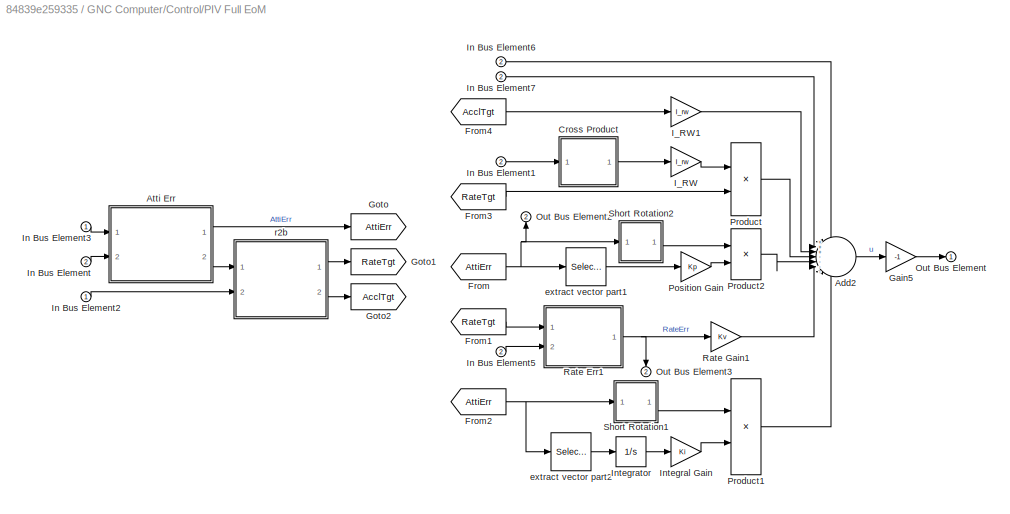
BLOCK [SubSystem] GNC Computer/Control/PIV Full EoM
  AncestorBlock = ADCS_lib/Full EoM Controller
  Commented = on
  Ports = [2, 2]
  RequestExecContextInheritance = off
BLOCK [Sum] GNC Computer/Control/PIV Full EoM/Add2
  IconShape = round
  InputSameDT = off
  Inputs = +++----
  OutDataTypeStr = Inherit: Inherit via internal rule
  Ports = [7, 1]
  SaturateOnIntegerOverflow = off
BLOCK [SubSystem] GNC Computer/Control/PIV Full EoM/Atti Err
  Ports = [2, 2]
  RequestExecContextInheritance = off
BLOCK [Outport] GNC Computer/Control/PIV Full EoM/Atti Err/DCM_[BR]
  IconDisplay = Port number
  Port = 2
BLOCK [Reference] GNC Computer/Control/PIV Full EoM/Atti Err/Quaternion Inverse1  REF=aerolibutil/Quaternion
Inverse
  Ports = [1, 1]
  SourceBlock = aerolibutil/Quaternion\nInverse
  SourceProductBaseCode = AE
  SourceProductName = Aerospace Blockset
  SourceType = Quaternion Inverse
BLOCK [Reference] GNC Computer/Control/PIV Full EoM/Atti Err/Quaternion Multiplication  REF=aerolibutil/Quaternion
Multiplication
  Ports = [2, 1]
  SourceBlock = aerolibutil/Quaternion\nMultiplication
  SourceProductBaseCode = AE
  SourceProductName = Aerospace Blockset
  SourceType = Quaternion Multiplication
BLOCK [Reference] GNC Computer/Control/PIV Full EoM/Atti Err/[BR]  REF=sharedtransform/Quaternions to 
Direction Cosine Matrix
  Ports = [1, 1]
  SourceBlock = sharedtransform/Quaternions to \nDirection Cosine Matrix
  SourceProductBaseCode = AE
  SourceProductName = Aerospace Blockset
  SourceType = Quaternion2DCM
BLOCK [Inport] GNC Computer/Control/PIV Full EoM/Atti Err/q_eci2b
  IconDisplay = Port number
  Port = 2
BLOCK [Inport] GNC Computer/Control/PIV Full EoM/Atti Err/q_eci2r
  IconDisplay = Port number
BLOCK [Outport] GNC Computer/Control/PIV Full EoM/Atti Err/q_r2b
  IconDisplay = Port number
BLOCK [SubSystem] GNC Computer/Control/PIV Full EoM/Cross Product
  ErrorFcn = Stateflow.Translate.translate
  PermitHierarchicalResolution = ExplicitOnly
  Ports = [1, 1]
  RequestExecContextInheritance = off
  SFBlockType = MATLAB Function
  TreatAsAtomicUnit = on
BLOCK [Demux] GNC Computer/Control/PIV Full EoM/Cross Product/ Demux 
  Outputs = 1
  Ports = [1, 1]
BLOCK [S-Function] GNC Computer/Control/PIV Full EoM/Cross Product/ SFunction 
  EnableBusSupport = on
  FunctionName = sf_sfun
  PortCounts = [1 2]
  Ports = [1, 2]
  SFcnIsStateOwnerBlock = off
  SFunctionDeploymentMode = off
  Tag = Stateflow S-Function CubeSat_Simulator 1
BLOCK [Terminator] GNC Computer/Control/PIV Full EoM/Cross Product/ Terminator 
BLOCK [Inport] GNC Computer/Control/PIV Full EoM/Cross Product/u
  IconDisplay = Port number
BLOCK [Outport] GNC Computer/Control/PIV Full EoM/Cross Product/u_tilde
  IconDisplay = Port number
BLOCK [From] GNC Computer/Control/PIV Full EoM/From
  GotoTag = AttiErr
BLOCK [From] GNC Computer/Control/PIV Full EoM/From1
  GotoTag = RateTgt
BLOCK [From] GNC Computer/Control/PIV Full EoM/From2
  GotoTag = AttiErr
BLOCK [From] GNC Computer/Control/PIV Full EoM/From3
  GotoTag = RateTgt
BLOCK [From] GNC Computer/Control/PIV Full EoM/From4
  GotoTag = AcclTgt
BLOCK [Gain] GNC Computer/Control/PIV Full EoM/Gain5
  Gain = -1
  OutDataTypeStr = Inherit: Inherit via internal rule
  ParamDataTypeStr = Inherit: Inherit via internal rule
  SaturateOnIntegerOverflow = off
BLOCK [Goto] GNC Computer/Control/PIV Full EoM/Goto
  GotoTag = AttiErr
BLOCK [Goto] GNC Computer/Control/PIV Full EoM/Goto1
  GotoTag = RateTgt
BLOCK [Goto] GNC Computer/Control/PIV Full EoM/Goto2
  GotoTag = AcclTgt
BLOCK [Gain] GNC Computer/Control/PIV Full EoM/I_RW
  Gain = I_rw
  Multiplication = Matrix(u*K)
  OutDataTypeStr = Inherit: Inherit via internal rule
  ParamDataTypeStr = Inherit: Inherit via internal rule
  SaturateOnIntegerOverflow = off
BLOCK [Gain] GNC Computer/Control/PIV Full EoM/I_RW1
  Gain = I_rw
  Multiplication = Matrix(K*u)
  OutDataTypeStr = Inherit: Inherit via internal rule
  ParamDataTypeStr = Inherit: Inherit via internal rule
  SaturateOnIntegerOverflow = off
BLOCK [Inport] GNC Computer/Control/PIV Full EoM/In Bus Element
  IconDisplay = Port number
  Port = 2
BLOCK [Inport] GNC Computer/Control/PIV Full EoM/In Bus Element1
  IconDisplay = Port number
  Port = 2
BLOCK [Inport] GNC Computer/Control/PIV Full EoM/In Bus Element2
  IconDisplay = Port number
BLOCK [Inport] GNC Computer/Control/PIV Full EoM/In Bus Element3
  IconDisplay = Port number
BLOCK [Inport] GNC Computer/Control/PIV Full EoM/In Bus Element5
  IconDisplay = Port number
  Port = 2
BLOCK [Inport] GNC Computer/Control/PIV Full EoM/In Bus Element6
  IconDisplay = Port number
  Port = 2
BLOCK [Inport] GNC Computer/Control/PIV Full EoM/In Bus Element7
  IconDisplay = Port number
  Port = 2
BLOCK [Gain] GNC Computer/Control/PIV Full EoM/Integral Gain
  Gain = Ki
  Multiplication = Matrix(K*u)
  OutDataTypeStr = Inherit: Inherit via internal rule
  ParamDataTypeStr = Inherit: Inherit via internal rule
  SaturateOnIntegerOverflow = off
BLOCK [Integrator] GNC Computer/Control/PIV Full EoM/Integrator
  Ports = [1, 1]
BLOCK [Outport] GNC Computer/Control/PIV Full EoM/Out Bus Element
  IconDisplay = Port number
BLOCK [Outport] GNC Computer/Control/PIV Full EoM/Out Bus Element2
  IconDisplay = Port number
  Port = 2
BLOCK [Outport] GNC Computer/Control/PIV Full EoM/Out Bus Element3
  IconDisplay = Port number
  Port = 2
BLOCK [Gain] GNC Computer/Control/PIV Full EoM/Position Gain
  Gain = Kp
  Multiplication = Matrix(K*u)
  OutDataTypeStr = Inherit: Inherit via internal rule
  ParamDataTypeStr = Inherit: Inherit via internal rule
  SaturateOnIntegerOverflow = off
BLOCK [Product] GNC Computer/Control/PIV Full EoM/Product
  InputSameDT = off
  Multiplication = Matrix(*)
  OutDataTypeStr = Inherit: Inherit via internal rule
  Ports = [2, 1]
  RndMeth = Floor
  SaturateOnIntegerOverflow = off
BLOCK [Product] GNC Computer/Control/PIV Full EoM/Product1
  InputSameDT = off
  OutDataTypeStr = Inherit: Inherit via internal rule
  Ports = [2, 1]
  RndMeth = Floor
  SaturateOnIntegerOverflow = off
BLOCK [Product] GNC Computer/Control/PIV Full EoM/Product2
  InputSameDT = off
  OutDataTypeStr = Inherit: Inherit via internal rule
  Ports = [2, 1]
  RndMeth = Floor
  SaturateOnIntegerOverflow = off
BLOCK [SubSystem] GNC Computer/Control/PIV Full EoM/Rate Err1
  Ports = [2, 1]
  RequestExecContextInheritance = off
BLOCK [Sum] GNC Computer/Control/PIV Full EoM/Rate Err1/Add1
  InputSameDT = off
  Inputs = +-
  OutDataTypeStr = Inherit: Inherit via internal rule
  Ports = [2, 1]
  SaturateOnIntegerOverflow = off
BLOCK [Outport] GNC Computer/Control/PIV Full EoM/Rate Err1/b_deltaw_b//r
  IconDisplay = Port number
BLOCK [Inport] GNC Computer/Control/PIV Full EoM/Rate Err1/b_w_b//n
  IconDisplay = Port number
  Port = 2
BLOCK [Inport] GNC Computer/Control/PIV Full EoM/Rate Err1/b_w_r//n
  IconDisplay = Port number
BLOCK [Gain] GNC Computer/Control/PIV Full EoM/Rate Gain1
  Gain = Kv
  Multiplication = Matrix(K*u)
  OutDataTypeStr = Inherit: Inherit via internal rule
  ParamDataTypeStr = Inherit: Inherit via internal rule
  SaturateOnIntegerOverflow = off
BLOCK [SubSystem] GNC Computer/Control/PIV Full EoM/Short Rotation1
  Ports = [1, 1]
  RequestExecContextInheritance = off
BLOCK [Gain] GNC Computer/Control/PIV Full EoM/Short Rotation1/Gain1
  Gain = -1
  OutDataTypeStr = Inherit: Inherit via internal rule
  ParamDataTypeStr = Inherit: Inherit via internal rule
  SaturateOnIntegerOverflow = off
BLOCK [Signum] GNC Computer/Control/PIV Full EoM/Short Rotation1/Sign1
BLOCK [Selector] GNC Computer/Control/PIV Full EoM/Short Rotation1/extract scalar part
  IndexOptions = Index vector (dialog)
  Indices = [1]
  InputPortWidth = 4
  OutputSizes = 1
  Ports = [1, 1]
BLOCK [Inport] GNC Computer/Control/PIV Full EoM/Short Rotation1/q
  IconDisplay = Port number
BLOCK [Outport] GNC Computer/Control/PIV Full EoM/Short Rotation1/sgn
  IconDisplay = Port number
BLOCK [SubSystem] GNC Computer/Control/PIV Full EoM/Short Rotation2
  Ports = [1, 1]
  RequestExecContextInheritance = off
BLOCK [Gain] GNC Computer/Control/PIV Full EoM/Short Rotation2/Gain1
  Gain = -1
  OutDataTypeStr = Inherit: Inherit via internal rule
  ParamDataTypeStr = Inherit: Inherit via internal rule
  SaturateOnIntegerOverflow = off
BLOCK [Signum] GNC Computer/Control/PIV Full EoM/Short Rotation2/Sign1
BLOCK [Selector] GNC Computer/Control/PIV Full EoM/Short Rotation2/extract scalar part
  IndexOptions = Index vector (dialog)
  Indices = [1]
  InputPortWidth = 4
  OutputSizes = 1
  Ports = [1, 1]
BLOCK [Inport] GNC Computer/Control/PIV Full EoM/Short Rotation2/q
  IconDisplay = Port number
BLOCK [Outport] GNC Computer/Control/PIV Full EoM/Short Rotation2/sgn
  IconDisplay = Port number
BLOCK [Selector] GNC Computer/Control/PIV Full EoM/extract vector part1
  IndexOptions = Index vector (dialog)
  Indices = [2 3 4]
  InputPortWidth = 4
  OutputSizes = 1
  Ports = [1, 1]
BLOCK [Selector] GNC Computer/Control/PIV Full EoM/extract vector part2
  IndexOptions = Index vector (dialog)
  Indices = [2 3 4]
  InputPortWidth = 4
  OutputSizes = 1
  Ports = [1, 1]
BLOCK [SubSystem] GNC Computer/Control/PIV Full EoM/r2b
  Ports = [2, 2]
  RequestExecContextInheritance = off
BLOCK [Derivative] GNC Computer/Control/PIV Full EoM/r2b/Derivative
BLOCK [Product] GNC Computer/Control/PIV Full EoM/r2b/Product
  InputSameDT = off
  Multiplication = Matrix(*)
  OutDataTypeStr = Inherit: Inherit via internal rule
  Ports = [2, 1]
  RndMeth = Floor
  SaturateOnIntegerOverflow = off
BLOCK [Product] GNC Computer/Control/PIV Full EoM/r2b/Product1
  InputSameDT = off
  Multiplication = Matrix(*)
  OutDataTypeStr = Inherit: Inherit via internal rule
  Ports = [2, 1]
  RndMeth = Floor
  SaturateOnIntegerOverflow = off
BLOCK [Inport] GNC Computer/Control/PIV Full EoM/r2b/[BR]
  IconDisplay = Port number
BLOCK [Outport] GNC Computer/Control/PIV Full EoM/r2b/b_a_r//n
  IconDisplay = Port number
  Port = 2
BLOCK [Outport] GNC Computer/Control/PIV Full EoM/r2b/b_w_r//n
  IconDisplay = Port number
BLOCK [Inport] GNC Computer/Control/PIV Full EoM/r2b/r_w_r//n
  IconDisplay = Port number
  Port = 2
BLOCK [Inport] GNC Computer/EnvState
  IconDisplay = Port number
  Port = 3
BLOCK [Outport] GNC Computer/GNCState
  IconDisplay = Port number
BLOCK [Ground] GNC Computer/Ground1
BLOCK [SubSystem] GNC Computer/Guidance
  Ports = [3, 1]
  RequestExecContextInheritance = off
BLOCK [BusCreator] GNC Computer/Guidance/Bus Creator1
  DisplayOption = bar
  InheritFromInputs = on
  Inputs = 1
  Ports = [1, 1]
BLOCK [Constant] GNC Computer/Guidance/Constant
  Value = [1;0;0;0]
BLOCK [Inport] GNC Computer/Guidance/EnvState
  IconDisplay = Port number
  Port = 2
BLOCK [Inport] GNC Computer/Guidance/In Bus Element1
  IconDisplay = Port number
BLOCK [Inport] GNC Computer/Guidance/In Bus Element2
  IconDisplay = Port number
BLOCK [Inport] GNC Computer/Guidance/In Bus Element3
  IconDisplay = Port number
BLOCK [Inport] GNC Computer/Guidance/In Bus Element4
  IconDisplay = Port number
BLOCK [Inport] GNC Computer/Guidance/In Bus Element5
  IconDisplay = Port number
BLOCK [SubSystem] GNC Computer/Guidance/Inertial Pointing
  Ports = [0, 1]
  RequestExecContextInheritance = off
BLOCK [Reference] GNC Computer/Guidance/Inertial Pointing/Degrees to Radians  REF=simulink_extras/Transformations/Degrees to
Radians
  Ports = [1, 1]
  SourceBlock = simulink_extras/Transformations/Degrees to\nRadians
  SourceProductBaseCode = SL
  SourceProductName = Simulink
  SourceType = DegreesToRadians
BLOCK [SubSystem] GNC Computer/Guidance/Inertial Pointing/Spatial Rotation to Quaternion
  Ports = [2, 1]
  RequestExecContextInheritance = off
BLOCK [Gain] GNC Computer/Guidance/Inertial Pointing/Spatial Rotation to Quaternion/Gain1
  Gain = 0.5
  OutDataTypeStr = Inherit: Inherit via internal rule
  ParamDataTypeStr = Inherit: Inherit via internal rule
  SaturateOnIntegerOverflow = off
BLOCK [Mux] GNC Computer/Guidance/Inertial Pointing/Spatial Rotation to Quaternion/Mux
  DisplayOption = bar
  Inputs = 2
  Ports = [2, 1]
BLOCK [Reference] GNC Computer/Guidance/Inertial Pointing/Spatial Rotation to Quaternion/Normalization  REF=dspmathops/Normalization
  Ports = [1, 1]
  SourceBlock = dspmathops/Normalization
  SourceProductBaseCode = DS
  SourceProductName = DSP System Toolbox
  SourceType = Normalization
BLOCK [Inport] GNC Computer/Guidance/Inertial Pointing/Spatial Rotation to Quaternion/PRA
  IconDisplay = Port number
BLOCK [Inport] GNC Computer/Guidance/Inertial Pointing/Spatial Rotation to Quaternion/PRV
  IconDisplay = Port number
  Port = 2
BLOCK [Product] GNC Computer/Guidance/Inertial Pointing/Spatial Rotation to Quaternion/Product
  InputSameDT = off
  OutDataTypeStr = Inherit: Inherit via internal rule
  Ports = [2, 1]
  RndMeth = Floor
  SaturateOnIntegerOverflow = off
BLOCK [Reference] GNC Computer/Guidance/Inertial Pointing/Spatial Rotation to Quaternion/Quaternion Normalize  REF=sharedutil/Quaternion
Normalize
  Ports = [1, 1]
  SourceBlock = sharedutil/Quaternion\nNormalize
  SourceProductBaseCode = AE
  SourceProductName = Aerospace Blockset
  SourceType = Quaternion Normalize
BLOCK [Trigonometry] GNC Computer/Guidance/Inertial Pointing/Spatial Rotation to Quaternion/Trigonometric Function2
  Operator = cos
  OutputSignalType = real
  Ports = [1, 1]
BLOCK [Trigonometry] GNC Computer/Guidance/Inertial Pointing/Spatial Rotation to Quaternion/Trigonometric Function3
  OutputSignalType = real
  Ports = [1, 1]
BLOCK [Outport] GNC Computer/Guidance/Inertial Pointing/Spatial Rotation to Quaternion/q
  IconDisplay = Port number
BLOCK [Step] GNC Computer/Guidance/Inertial Pointing/Step1
  After = 0
  SampleTime = 0
  Time = 10
BLOCK [Constant] GNC Computer/Guidance/Inertial Pointing/axis
  Value = [1;1;1]
BLOCK [Outport] GNC Computer/Guidance/Inertial Pointing/q_eci2iner
  IconDisplay = Port number
BLOCK [MultiPortSwitch] GNC Computer/Guidance/Multiport Switch
  DataPortIndices = {1,2,3,4}
  DataPortOrder = Specify indices
  InputSameDT = off
  Ports = [5, 1]
  SaturateOnIntegerOverflow = off
BLOCK [SubSystem] GNC Computer/Guidance/Nadir Pointing
  Ports = [2, 1]
  RequestExecContextInheritance = off
BLOCK [SubSystem] GNC Computer/Guidance/Nadir Pointing/Align Body Axis
  Ports = [1, 1]
  RequestExecContextInheritance = off
BLOCK [Constant] GNC Computer/Guidance/Nadir Pointing/Align Body Axis/0;180;-90
  Value = [0;180;-90]
BLOCK [Reference] GNC Computer/Guidance/Nadir Pointing/Align Body Axis/Degrees to Radians  REF=simulink_extras/Transformations/Degrees to
Radians
  Ports = [1, 1]
  SourceBlock = simulink_extras/Transformations/Degrees to\nRadians
  SourceProductBaseCode = SL
  SourceProductName = Simulink
  SourceType = DegreesToRadians
BLOCK [Reference] GNC Computer/Guidance/Nadir Pointing/Align Body Axis/Quaternion Multiplication  REF=aerolibutil/Quaternion
Multiplication
  Ports = [2, 1]
  SourceBlock = aerolibutil/Quaternion\nMultiplication
  SourceProductBaseCode = AE
  SourceProductName = Aerospace Blockset
  SourceType = Quaternion Multiplication
BLOCK [Reference] GNC Computer/Guidance/Nadir Pointing/Align Body Axis/Quaternion Normalize  REF=sharedutil/Quaternion
Normalize
  Ports = [1, 1]
  SourceBlock = sharedutil/Quaternion\nNormalize
  SourceProductBaseCode = AE
  SourceProductName = Aerospace Blockset
  SourceType = Quaternion Normalize
BLOCK [Reference] GNC Computer/Guidance/Nadir Pointing/Align Body Axis/Rotation Angles to Quaternions  REF=sharedtransform/Rotation Angles to Quaternions
  AttributesFormatString = Rotation Order: %<rotationOrder>
  Ports = [1, 1]
  SourceBlock = sharedtransform/Rotation Angles to Quaternions
  SourceProductBaseCode = AE
  SourceProductName = Aerospace Blockset
  SourceType = Ang2Quat
BLOCK [Inport] GNC Computer/Guidance/Nadir Pointing/Align Body Axis/q_eci2hill
  IconDisplay = Port number
BLOCK [Outport] GNC Computer/Guidance/Nadir Pointing/Align Body Axis/q_eci2ndir
  IconDisplay = Port number
BLOCK [SubSystem] GNC Computer/Guidance/Nadir Pointing/Apply Orientation Bias
  Ports = [2, 1]
  RequestExecContextInheritance = off
BLOCK [Inport] GNC Computer/Guidance/Nadir Pointing/Apply Orientation Bias/NadirBias
  IconDisplay = Port number
  Port = 2
BLOCK [Reference] GNC Computer/Guidance/Nadir Pointing/Apply Orientation Bias/Quaternion Multiplication  REF=aerolibutil/Quaternion
Multiplication
  Ports = [2, 1]
  SourceBlock = aerolibutil/Quaternion\nMultiplication
  SourceProductBaseCode = AE
  SourceProductName = Aerospace Blockset
  SourceType = Quaternion Multiplication
BLOCK [Reference] GNC Computer/Guidance/Nadir Pointing/Apply Orientation Bias/Quaternion Normalize  REF=sharedutil/Quaternion
Normalize
  Ports = [1, 1]
  SourceBlock = sharedutil/Quaternion\nNormalize
  SourceProductBaseCode = AE
  SourceProductName = Aerospace Blockset
  SourceType = Quaternion Normalize
BLOCK [Reference] GNC Computer/Guidance/Nadir Pointing/Apply Orientation Bias/Rotation Angles to Quaternions  REF=sharedtransform/Rotation Angles to Quaternions
  AttributesFormatString = Rotation Order: %<rotationOrder>
  Ports = [1, 1]
  SourceBlock = sharedtransform/Rotation Angles to Quaternions
  SourceProductBaseCode = AE
  SourceProductName = Aerospace Blockset
  SourceType = Ang2Quat
BLOCK [Outport] GNC Computer/Guidance/Nadir Pointing/Apply Orientation Bias/q_eci2imag
  IconDisplay = Port number
BLOCK [Inport] GNC Computer/Guidance/Nadir Pointing/Apply Orientation Bias/q_eci2ndir
  IconDisplay = Port number
BLOCK [SubSystem] GNC Computer/Guidance/Nadir Pointing/Calculate Hill Frame
  Ports = [1, 1]
  RequestExecContextInheritance = off
BLOCK [Reference] GNC Computer/Guidance/Nadir Pointing/Calculate Hill Frame/3x3 Cross Product  REF=sharedutil/3x3 Cross Product
  Ports = [2, 1]
  SourceBlock = sharedutil/3x3 Cross Product
  SourceProductBaseCode = AE
  SourceProductName = Aerospace Blockset
  SourceType = CrossProduct
BLOCK [Reference] GNC Computer/Guidance/Nadir Pointing/Calculate Hill Frame/3x3 Cross Product1  REF=sharedutil/3x3 Cross Product
  Ports = [2, 1]
  SourceBlock = sharedutil/3x3 Cross Product
  SourceProductBaseCode = AE
  SourceProductName = Aerospace Blockset
  SourceType = CrossProduct
BLOCK [Reference] GNC Computer/Guidance/Nadir Pointing/Calculate Hill Frame/Direction Cosine Matrix to Quaternions  REF=sharedtransform/Direction Cosine Matrix 
to Quaternions
  Ports = [1, 1]
  SourceBlock = sharedtransform/Direction Cosine Matrix \nto Quaternions
  SourceProductBaseCode = AE
  SourceProductName = Aerospace Blockset
  SourceType = DCM2Quaternion
BLOCK [Inport] GNC Computer/Guidance/Nadir Pointing/Calculate Hill Frame/In Bus Element1
  IconDisplay = Port number
BLOCK [Inport] GNC Computer/Guidance/Nadir Pointing/Calculate Hill Frame/In Bus Element2
  IconDisplay = Port number
BLOCK [Reference] GNC Computer/Guidance/Nadir Pointing/Calculate Hill Frame/Normalization1  REF=dspmathops/Normalization
  Ports = [1, 1]
  SourceBlock = dspmathops/Normalization
  SourceProductBaseCode = DS
  SourceProductName = DSP System Toolbox
  SourceType = Normalization
BLOCK [Reference] GNC Computer/Guidance/Nadir Pointing/Calculate Hill Frame/Normalization2  REF=dspmathops/Normalization
  Ports = [1, 1]
  SourceBlock = dspmathops/Normalization
  SourceProductBaseCode = DS
  SourceProductName = DSP System Toolbox
  SourceType = Normalization
BLOCK [Reference] GNC Computer/Guidance/Nadir Pointing/Calculate Hill Frame/Quaternion Normalize  REF=sharedutil/Quaternion
Normalize
  Ports = [1, 1]
  SourceBlock = sharedutil/Quaternion\nNormalize
  SourceProductBaseCode = AE
  SourceProductName = Aerospace Blockset
  SourceType = Quaternion Normalize
BLOCK [Math] GNC Computer/Guidance/Nadir Pointing/Calculate Hill Frame/Transpose
  Operator = transpose
  Ports = [1, 1]
BLOCK [Math] GNC Computer/Guidance/Nadir Pointing/Calculate Hill Frame/Transpose1
  Operator = transpose
  Ports = [1, 1]
BLOCK [Math] GNC Computer/Guidance/Nadir Pointing/Calculate Hill Frame/Transpose2
  Operator = transpose
  Ports = [1, 1]
BLOCK [Concatenate] GNC Computer/Guidance/Nadir Pointing/Calculate Hill Frame/Vector Concatenate
  Mode = Multidimensional array
  NumInputs = 3
  Ports = [3, 1]
BLOCK [Outport] GNC Computer/Guidance/Nadir Pointing/Calculate Hill Frame/q_eci2hill
  IconDisplay = Port number
BLOCK [Inport] GNC Computer/Guidance/Nadir Pointing/NadirBias
  IconDisplay = Port number
BLOCK [Inport] GNC Computer/Guidance/Nadir Pointing/SensorIn
  IconDisplay = Port number
  Port = 2
BLOCK [Outport] GNC Computer/Guidance/Nadir Pointing/q_eci2nadr
  IconDisplay = Port number
BLOCK [SubSystem] GNC Computer/Guidance/Orbital Velocity Frame (Visualization Only)
  Ports = [1, 1]
  RequestExecContextInheritance = off
BLOCK [Reference] GNC Computer/Guidance/Orbital Velocity Frame (Visualization Only)/3x3 Cross Product2  REF=sharedutil/3x3 Cross Product
  Ports = [2, 1]
  SourceBlock = sharedutil/3x3 Cross Product
  SourceProductBaseCode = AE
  SourceProductName = Aerospace Blockset
  SourceType = CrossProduct
BLOCK [Reference] GNC Computer/Guidance/Orbital Velocity Frame (Visualization Only)/3x3 Cross Product3  REF=sharedutil/3x3 Cross Product
  Ports = [2, 1]
  SourceBlock = sharedutil/3x3 Cross Product
  SourceProductBaseCode = AE
  SourceProductName = Aerospace Blockset
  SourceType = CrossProduct
BLOCK [Reference] GNC Computer/Guidance/Orbital Velocity Frame (Visualization Only)/Direction Cosine Matrix to Quaternions  REF=sharedtransform/Direction Cosine Matrix 
to Quaternions
  Ports = [1, 1]
  SourceBlock = sharedtransform/Direction Cosine Matrix \nto Quaternions
  SourceProductBaseCode = AE
  SourceProductName = Aerospace Blockset
  SourceType = DCM2Quaternion
BLOCK [Gain] GNC Computer/Guidance/Orbital Velocity Frame (Visualization Only)/Gain
  Gain = -1
  OutDataTypeStr = Inherit: Inherit via internal rule
  ParamDataTypeStr = Inherit: Inherit via internal rule
  SaturateOnIntegerOverflow = off
BLOCK [Inport] GNC Computer/Guidance/Orbital Velocity Frame (Visualization Only)/In Bus Element1
  IconDisplay = Port number
BLOCK [Inport] GNC Computer/Guidance/Orbital Velocity Frame (Visualization Only)/In Bus Element2
  IconDisplay = Port number
BLOCK [Reference] GNC Computer/Guidance/Orbital Velocity Frame (Visualization Only)/Normalization3  REF=dspmathops/Normalization
  Ports = [1, 1]
  SourceBlock = dspmathops/Normalization
  SourceProductBaseCode = DS
  SourceProductName = DSP System Toolbox
  SourceType = Normalization
BLOCK [Reference] GNC Computer/Guidance/Orbital Velocity Frame (Visualization Only)/Normalization4  REF=dspmathops/Normalization
  Ports = [1, 1]
  SourceBlock = dspmathops/Normalization
  SourceProductBaseCode = DS
  SourceProductName = DSP System Toolbox
  SourceType = Normalization
BLOCK [Reference] GNC Computer/Guidance/Orbital Velocity Frame (Visualization Only)/Quaternion Normalize  REF=sharedutil/Quaternion
Normalize
  Ports = [1, 1]
  SourceBlock = sharedutil/Quaternion\nNormalize
  SourceProductBaseCode = AE
  SourceProductName = Aerospace Blockset
  SourceType = Quaternion Normalize
BLOCK [Math] GNC Computer/Guidance/Orbital Velocity Frame (Visualization Only)/Transpose
  Operator = transpose
  Ports = [1, 1]
BLOCK [Math] GNC Computer/Guidance/Orbital Velocity Frame (Visualization Only)/Transpose1
  Operator = transpose
  Ports = [1, 1]
BLOCK [Math] GNC Computer/Guidance/Orbital Velocity Frame (Visualization Only)/Transpose2
  Operator = transpose
  Ports = [1, 1]
BLOCK [Concatenate] GNC Computer/Guidance/Orbital Velocity Frame (Visualization Only)/Vector Concatenate
  Mode = Multidimensional array
  NumInputs = 3
  Ports = [3, 1]
BLOCK [Outport] GNC Computer/Guidance/Orbital Velocity Frame (Visualization Only)/q_eci2velo
  IconDisplay = Port number
BLOCK [Outport] GNC Computer/Guidance/Out Bus Element
  IconDisplay = Port number
BLOCK [Outport] GNC Computer/Guidance/Out Bus Element1
  IconDisplay = Port number
BLOCK [Outport] GNC Computer/Guidance/Out Bus Element2
  IconDisplay = Port number
BLOCK [Outport] GNC Computer/Guidance/Out Bus Element3
  IconDisplay = Port number
BLOCK [Inport] GNC Computer/Guidance/SensorIn
  IconDisplay = Port number
  Port = 3
BLOCK [SubSystem] GNC Computer/Guidance/Sun Tracking
  Ports = [3, 1]
  RequestExecContextInheritance = off
BLOCK [Sum] GNC Computer/Guidance/Sun Tracking/Add1
  InputSameDT = off
  Inputs = +-
  OutDataTypeStr = Inherit: Inherit via internal rule
  Ports = [2, 1]
  SaturateOnIntegerOverflow = off
BLOCK [SubSystem] GNC Computer/Guidance/Sun Tracking/Attitude Bias
  Ports = [2, 1]
  RequestExecContextInheritance = off
BLOCK [Outport] GNC Computer/Guidance/Sun Tracking/Attitude Bias/	q Output
  IconDisplay = Port number
BLOCK [Inport] GNC Computer/Guidance/Sun Tracking/Attitude Bias/EulerBias
  IconDisplay = Port number
  Port = 2
BLOCK [Reference] GNC Computer/Guidance/Sun Tracking/Attitude Bias/Quaternion Multiplication  REF=aerolibutil/Quaternion
Multiplication
  Ports = [2, 1]
  SourceBlock = aerolibutil/Quaternion\nMultiplication
  SourceProductBaseCode = AE
  SourceProductName = Aerospace Blockset
  SourceType = Quaternion Multiplication
BLOCK [Reference] GNC Computer/Guidance/Sun Tracking/Attitude Bias/Quaternion Normalize  REF=sharedutil/Quaternion
Normalize
  Ports = [1, 1]
  SourceBlock = sharedutil/Quaternion\nNormalize
  SourceProductBaseCode = AE
  SourceProductName = Aerospace Blockset
  SourceType = Quaternion Normalize
BLOCK [Reference] GNC Computer/Guidance/Sun Tracking/Attitude Bias/Rotation Angles to Quaternions  REF=sharedtransform/Rotation Angles to Quaternions
  AttributesFormatString = Rotation Order: %<rotationOrder>
  Ports = [1, 1]
  SourceBlock = sharedtransform/Rotation Angles to Quaternions
  SourceProductBaseCode = AE
  SourceProductName = Aerospace Blockset
  SourceType = Ang2Quat
BLOCK [Inport] GNC Computer/Guidance/Sun Tracking/Attitude Bias/q Input
  IconDisplay = Port number
BLOCK [Reference] GNC Computer/Guidance/Sun Tracking/Check Parallel  REF=asbCubeSatBlockLib/Axes Transformations/Attitude Conversion/Check Parallel
  Ports = [2, 1]
  SourceBlock = asbCubeSatBlockLib/Axes Transformations/Attitude Conversion/Check Parallel
  SourceType = SubSystem
BLOCK [Reference] GNC Computer/Guidance/Sun Tracking/Compare To Zero1  REF=simulink/Logic and Bit
Operations/Compare
To Zero
  Ports = [1, 1]
  SourceBlock = simulink/Logic and Bit\nOperations/Compare\nTo Zero
  SourceProductBaseCode = SL
  SourceProductName = Simulink
  SourceType = Compare To Zero
BLOCK [SubSystem] GNC Computer/Guidance/Sun Tracking/Compute Sun Frame
  Ports = [2, 1]
  RequestExecContextInheritance = off
BLOCK [Reference] GNC Computer/Guidance/Sun Tracking/Compute Sun Frame/3x3 Cross Product  REF=sharedutil/3x3 Cross Product
  Ports = [2, 1]
  SourceBlock = sharedutil/3x3 Cross Product
  SourceProductBaseCode = AE
  SourceProductName = Aerospace Blockset
  SourceType = CrossProduct
BLOCK [Reference] GNC Computer/Guidance/Sun Tracking/Compute Sun Frame/3x3 Cross Product1  REF=sharedutil/3x3 Cross Product
  Ports = [2, 1]
  SourceBlock = sharedutil/3x3 Cross Product
  SourceProductBaseCode = AE
  SourceProductName = Aerospace Blockset
  SourceType = CrossProduct
BLOCK [Reference] GNC Computer/Guidance/Sun Tracking/Compute Sun Frame/Direction Cosine Matrix to Quaternions  REF=sharedtransform/Direction Cosine Matrix 
to Quaternions
  Ports = [1, 1]
  SourceBlock = sharedtransform/Direction Cosine Matrix \nto Quaternions
  SourceProductBaseCode = AE
  SourceProductName = Aerospace Blockset
  SourceType = DCM2Quaternion
BLOCK [Inport] GNC Computer/Guidance/Sun Tracking/Compute Sun Frame/FirstRefECI
  IconDisplay = Port number
BLOCK [Reference] GNC Computer/Guidance/Sun Tracking/Compute Sun Frame/Normalization1  REF=dspmathops/Normalization
  Ports = [1, 1]
  SourceBlock = dspmathops/Normalization
  SourceProductBaseCode = DS
  SourceProductName = DSP System Toolbox
  SourceType = Normalization
BLOCK [Reference] GNC Computer/Guidance/Sun Tracking/Compute Sun Frame/Normalization2  REF=dspmathops/Normalization
  Ports = [1, 1]
  SourceBlock = dspmathops/Normalization
  SourceProductBaseCode = DS
  SourceProductName = DSP System Toolbox
  SourceType = Normalization
BLOCK [Reference] GNC Computer/Guidance/Sun Tracking/Compute Sun Frame/Quaternion Normalize  REF=sharedutil/Quaternion
Normalize
  Ports = [1, 1]
  SourceBlock = sharedutil/Quaternion\nNormalize
  SourceProductBaseCode = AE
  SourceProductName = Aerospace Blockset
  SourceType = Quaternion Normalize
BLOCK [Inport] GNC Computer/Guidance/Sun Tracking/Compute Sun Frame/SecondRefECI
  IconDisplay = Port number
  Port = 2
BLOCK [Math] GNC Computer/Guidance/Sun Tracking/Compute Sun Frame/Transpose
  Operator = transpose
  Ports = [1, 1]
BLOCK [Math] GNC Computer/Guidance/Sun Tracking/Compute Sun Frame/Transpose1
  Operator = transpose
  Ports = [1, 1]
BLOCK [Math] GNC Computer/Guidance/Sun Tracking/Compute Sun Frame/Transpose2
  Operator = transpose
  Ports = [1, 1]
BLOCK [Concatenate] GNC Computer/Guidance/Sun Tracking/Compute Sun Frame/Vector Concatenate
  Mode = Multidimensional array
  NumInputs = 3
  Ports = [3, 1]
BLOCK [Outport] GNC Computer/Guidance/Sun Tracking/Compute Sun Frame/q_eci2sun
  IconDisplay = Port number
BLOCK [Constant] GNC Computer/Guidance/Sun Tracking/ECI X Axis
  Value = [1;0;0]
BLOCK [Constant] GNC Computer/Guidance/Sun Tracking/ECI Z Axis
  Value = [0;0;1]
BLOCK [Reference] GNC Computer/Guidance/Sun Tracking/If Sun Directly Above ECI  REF=asbCubeSatBlockLib/Axes Transformations/Attitude Conversion/Quaternion between
r_a and r_b
  Ports = [2, 1]
  SourceBlock = asbCubeSatBlockLib/Axes Transformations/Attitude Conversion/Quaternion between\nr_a and r_b
  SourceType = SubSystem
BLOCK [Inport] GNC Computer/Guidance/Sun Tracking/In Bus Element
  IconDisplay = Port number
  Port = 3
BLOCK [Inport] GNC Computer/Guidance/Sun Tracking/In Bus Element1
  IconDisplay = Port number
  Port = 2
BLOCK [Inport] GNC Computer/Guidance/Sun Tracking/SunBias
  IconDisplay = Port number
BLOCK [Switch] GNC Computer/Guidance/Sun Tracking/Switch 1 走上 0 走下
  Criteria = u2 ~= 0
  InputSameDT = off
  SaturateOnIntegerOverflow = off
BLOCK [Outport] GNC Computer/Guidance/Sun Tracking/q_eci2sun
  IconDisplay = Port number
BLOCK [SubSystem] GNC Computer/Guidance/Target Tracking
  Ports = [4, 1]
  RequestExecContextInheritance = off
BLOCK [Sum] GNC Computer/Guidance/Target Tracking/Add1
  IconShape = round
  InputSameDT = off
  Inputs = |+-
  OutDataTypeStr = Inherit: Inherit via internal rule
  Ports = [2, 1]
  SaturateOnIntegerOverflow = off
BLOCK [SubSystem] GNC Computer/Guidance/Target Tracking/Attitude Bias
  Ports = [2, 1]
  RequestExecContextInheritance = off
BLOCK [Outport] GNC Computer/Guidance/Target Tracking/Attitude Bias/	q Output
  IconDisplay = Port number
BLOCK [Inport] GNC Computer/Guidance/Target Tracking/Attitude Bias/EulerBias
  IconDisplay = Port number
  Port = 2
BLOCK [Reference] GNC Computer/Guidance/Target Tracking/Attitude Bias/Quaternion Multiplication  REF=aerolibutil/Quaternion
Multiplication
  Ports = [2, 1]
  SourceBlock = aerolibutil/Quaternion\nMultiplication
  SourceProductBaseCode = AE
  SourceProductName = Aerospace Blockset
  SourceType = Quaternion Multiplication
BLOCK [Reference] GNC Computer/Guidance/Target Tracking/Attitude Bias/Quaternion Normalize  REF=sharedutil/Quaternion
Normalize
  Ports = [1, 1]
  SourceBlock = sharedutil/Quaternion\nNormalize
  SourceProductBaseCode = AE
  SourceProductName = Aerospace Blockset
  SourceType = Quaternion Normalize
BLOCK [Reference] GNC Computer/Guidance/Target Tracking/Attitude Bias/Rotation Angles to Quaternions  REF=sharedtransform/Rotation Angles to Quaternions
  AttributesFormatString = Rotation Order: %<rotationOrder>
  Ports = [1, 1]
  SourceBlock = sharedtransform/Rotation Angles to Quaternions
  SourceProductBaseCode = AE
  SourceProductName = Aerospace Blockset
  SourceType = Ang2Quat
BLOCK [Inport] GNC Computer/Guidance/Target Tracking/Attitude Bias/q Input
  IconDisplay = Port number
BLOCK [Reference] GNC Computer/Guidance/Target Tracking/Check Parallel  REF=asbCubeSatBlockLib/Axes Transformations/Attitude Conversion/Check Parallel
  Ports = [2, 1]
  SourceBlock = asbCubeSatBlockLib/Axes Transformations/Attitude Conversion/Check Parallel
  SourceType = SubSystem
BLOCK [Reference] GNC Computer/Guidance/Target Tracking/Compare To Zero1  REF=simulink/Logic and Bit
Operations/Compare
To Zero
  Ports = [1, 1]
  SourceBlock = simulink/Logic and Bit\nOperations/Compare\nTo Zero
  SourceProductBaseCode = SL
  SourceProductName = Simulink
  SourceType = Compare To Zero
BLOCK [SubSystem] GNC Computer/Guidance/Target Tracking/Compute Sun Frame
  Ports = [2, 1]
  RequestExecContextInheritance = off
BLOCK [Reference] GNC Computer/Guidance/Target Tracking/Compute Sun Frame/3x3 Cross Product  REF=sharedutil/3x3 Cross Product
  Ports = [2, 1]
  SourceBlock = sharedutil/3x3 Cross Product
  SourceProductBaseCode = AE
  SourceProductName = Aerospace Blockset
  SourceType = CrossProduct
BLOCK [Reference] GNC Computer/Guidance/Target Tracking/Compute Sun Frame/3x3 Cross Product1  REF=sharedutil/3x3 Cross Product
  Ports = [2, 1]
  SourceBlock = sharedutil/3x3 Cross Product
  SourceProductBaseCode = AE
  SourceProductName = Aerospace Blockset
  SourceType = CrossProduct
BLOCK [Reference] GNC Computer/Guidance/Target Tracking/Compute Sun Frame/Direction Cosine Matrix to Quaternions  REF=sharedtransform/Direction Cosine Matrix 
to Quaternions
  Ports = [1, 1]
  SourceBlock = sharedtransform/Direction Cosine Matrix \nto Quaternions
  SourceProductBaseCode = AE
  SourceProductName = Aerospace Blockset
  SourceType = DCM2Quaternion
BLOCK [Inport] GNC Computer/Guidance/Target Tracking/Compute Sun Frame/FirstRefECI
  IconDisplay = Port number
BLOCK [Reference] GNC Computer/Guidance/Target Tracking/Compute Sun Frame/Normalization1  REF=dspmathops/Normalization
  Ports = [1, 1]
  SourceBlock = dspmathops/Normalization
  SourceProductBaseCode = DS
  SourceProductName = DSP System Toolbox
  SourceType = Normalization
BLOCK [Reference] GNC Computer/Guidance/Target Tracking/Compute Sun Frame/Normalization2  REF=dspmathops/Normalization
  Ports = [1, 1]
  SourceBlock = dspmathops/Normalization
  SourceProductBaseCode = DS
  SourceProductName = DSP System Toolbox
  SourceType = Normalization
BLOCK [Reference] GNC Computer/Guidance/Target Tracking/Compute Sun Frame/Quaternion Normalize  REF=sharedutil/Quaternion
Normalize
  Ports = [1, 1]
  SourceBlock = sharedutil/Quaternion\nNormalize
  SourceProductBaseCode = AE
  SourceProductName = Aerospace Blockset
  SourceType = Quaternion Normalize
BLOCK [Inport] GNC Computer/Guidance/Target Tracking/Compute Sun Frame/SecondRefECI
  IconDisplay = Port number
  Port = 2
BLOCK [Math] GNC Computer/Guidance/Target Tracking/Compute Sun Frame/Transpose
  Operator = transpose
  Ports = [1, 1]
BLOCK [Math] GNC Computer/Guidance/Target Tracking/Compute Sun Frame/Transpose1
  Operator = transpose
  Ports = [1, 1]
BLOCK [Math] GNC Computer/Guidance/Target Tracking/Compute Sun Frame/Transpose2
  Operator = transpose
  Ports = [1, 1]
BLOCK [Concatenate] GNC Computer/Guidance/Target Tracking/Compute Sun Frame/Vector Concatenate
  Mode = Multidimensional array
  NumInputs = 3
  Ports = [3, 1]
BLOCK [Outport] GNC Computer/Guidance/Target Tracking/Compute Sun Frame/q_eci2sun
  IconDisplay = Port number
BLOCK [Demux] GNC Computer/Guidance/Target Tracking/Demux
  DisplayOption = bar
  Outputs = 3
  Ports = [1, 3]
BLOCK [Constant] GNC Computer/Guidance/Target Tracking/ECI X Axis
  Value = [1;0;0]
BLOCK [Constant] GNC Computer/Guidance/Target Tracking/ECI Z Axis
  Value = [0;0;1]
BLOCK [Reference] GNC Computer/Guidance/Target Tracking/If Sun Directly Above ECI  REF=asbCubeSatBlockLib/Axes Transformations/Attitude Conversion/Quaternion between
r_a and r_b
  Ports = [2, 1]
  SourceBlock = asbCubeSatBlockLib/Axes Transformations/Attitude Conversion/Quaternion between\nr_a and r_b
  SourceType = SubSystem
BLOCK [Inport] GNC Computer/Guidance/Target Tracking/In Bus Element
  IconDisplay = Port number
  Port = 4
BLOCK [Inport] GNC Computer/Guidance/Target Tracking/In Bus Element1
  IconDisplay = Port number
  Port = 3
BLOCK [Reference] GNC Computer/Guidance/Target Tracking/LLA to ECEF Position   REF=aerolibtransform2/LLA to ECEF Position
  Ports = [2, 1]
  SourceBlock = aerolibtransform2/LLA to ECEF Position
  SourceProductBaseCode = AE
  SourceProductName = Aerospace Blockset
  SourceType = LLA to ECEF
BLOCK [Mux] GNC Computer/Guidance/Target Tracking/Mux
  DisplayOption = bar
  Inputs = 2
  Ports = [2, 1]
BLOCK [Switch] GNC Computer/Guidance/Target Tracking/Switch 1 走上 0 走下
  Criteria = u2 ~= 0
  InputSameDT = off
  SaturateOnIntegerOverflow = off
BLOCK [Reference] GNC Computer/Guidance/Target Tracking/Target Position ECEF to ECI  REF=aerolibutil/Quaternion
Rotation
  Ports = [2, 1]
  SourceBlock = aerolibutil/Quaternion\nRotation
  SourceProductBaseCode = AE
  SourceProductName = Aerospace Blockset
  SourceType = Quaternion Rotation
BLOCK [Inport] GNC Computer/Guidance/Target Tracking/TargetBias
  IconDisplay = Port number
  Port = 2
BLOCK [Inport] GNC Computer/Guidance/Target Tracking/TargetLLA
  IconDisplay = Port number
BLOCK [Goto] GNC Computer/Guidance/Target Tracking/To VR
  GotoTag = TgtPos_eci
  TagVisibility = global
BLOCK [Outport] GNC Computer/Guidance/Target Tracking/q_eci2lla
  IconDisplay = Port number
BLOCK [Terminator] GNC Computer/Guidance/Terminator
BLOCK [SubSystem] GNC Computer/Guidance/Trajectory Planning
  AncestorBlock = ADCS_lib/Full EoM Controller
  Commented = on
  Ports = [1, 1]
  RequestExecContextInheritance = off
BLOCK [Reference] GNC Computer/Guidance/Trajectory Planning/Analog Filter Design1  REF=dsparch4/Analog
Filter Design
  Ports = [1, 1]
  SourceBlock = dsparch4/Analog\nFilter Design
  SourceProductBaseCode = DS
  SourceProductName = DSP System Toolbox
  SourceType = Analog Filter Design
BLOCK [Reference] GNC Computer/Guidance/Trajectory Planning/Analog Filter Design2  REF=dsparch4/Analog
Filter Design
  Ports = [1, 1]
  SourceBlock = dsparch4/Analog\nFilter Design
  SourceProductBaseCode = DS
  SourceProductName = DSP System Toolbox
  SourceType = Analog Filter Design
BLOCK [Reference] GNC Computer/Guidance/Trajectory Planning/Analog Filter Design4  REF=dsparch4/Analog
Filter Design
  Ports = [1, 1]
  SourceBlock = dsparch4/Analog\nFilter Design
  SourceProductBaseCode = DS
  SourceProductName = DSP System Toolbox
  SourceType = Analog Filter Design
BLOCK [Clock] GNC Computer/Guidance/Trajectory Planning/Clock
BLOCK [Constant] GNC Computer/Guidance/Trajectory Planning/Constant
  Commented = on
BLOCK [Constant] GNC Computer/Guidance/Trajectory Planning/Constant1
  Commented = on
  Value = w_desired
BLOCK [Constant] GNC Computer/Guidance/Trajectory Planning/Constant3
  Commented = on
  Value = a_desired
BLOCK [Derivative] GNC Computer/Guidance/Trajectory Planning/Derivative
BLOCK [QuatInterp] GNC Computer/Guidance/Trajectory Planning/Quaternion Interpolation
  Commented = on
  Ports = [3, 1]
BLOCK [SubSystem] GNC Computer/Guidance/Trajectory Planning/Quaternion to Spatial Rotation
  Ports = [1, 2]
  RequestExecContextInheritance = off
BLOCK [Constant] GNC Computer/Guidance/Trajectory Planning/Quaternion to Spatial Rotation/Constant
  Value = [0;0;0]
BLOCK [Product] GNC Computer/Guidance/Trajectory Planning/Quaternion to Spatial Rotation/Divide
  InputSameDT = off
  Inputs = */
  OutDataTypeStr = Inherit: Inherit via internal rule
  Ports = [2, 1]
  RndMeth = Floor
  SaturateOnIntegerOverflow = off
BLOCK [Gain] GNC Computer/Guidance/Trajectory Planning/Quaternion to Spatial Rotation/Gain
  Gain = 2
  OutDataTypeStr = Inherit: Inherit via internal rule
  ParamDataTypeStr = Inherit: Inherit via internal rule
  SaturateOnIntegerOverflow = off
BLOCK [Reference] GNC Computer/Guidance/Trajectory Planning/Quaternion to Spatial Rotation/Normalization  REF=dspmathops/Normalization
  Ports = [1, 1]
  SourceBlock = dspmathops/Normalization
  SourceProductBaseCode = DS
  SourceProductName = DSP System Toolbox
  SourceType = Normalization
BLOCK [Outport] GNC Computer/Guidance/Trajectory Planning/Quaternion to Spatial Rotation/PRA
  IconDisplay = Port number
BLOCK [Outport] GNC Computer/Guidance/Trajectory Planning/Quaternion to Spatial Rotation/PRV
  IconDisplay = Port number
  Port = 2
BLOCK [Switch] GNC Computer/Guidance/Trajectory Planning/Quaternion to Spatial Rotation/Resolve Division by 0
  Criteria = u2 ~= 0
  InputSameDT = off
  SaturateOnIntegerOverflow = off
BLOCK [Selector] GNC Computer/Guidance/Trajectory Planning/Quaternion to Spatial Rotation/Scalar Part
  IndexOptions = Index vector (dialog)
  Indices = [1]
  InputPortWidth = 4
  OutputSizes = 1
  Ports = [1, 1]
BLOCK [Trigonometry] GNC Computer/Guidance/Trajectory Planning/Quaternion to Spatial Rotation/Trigonometric Function
  Operator = acos
  Ports = [1, 1]
BLOCK [Trigonometry] GNC Computer/Guidance/Trajectory Planning/Quaternion to Spatial Rotation/Trigonometric Function1
  OutputSignalType = real
  Ports = [1, 1]
BLOCK [Selector] GNC Computer/Guidance/Trajectory Planning/Quaternion to Spatial Rotation/Vector Part
  IndexOptions = Index vector (dialog)
  Indices = [2 3 4]
  InputPortWidth = 4
  OutputSizes = 1
  Ports = [1, 1]
BLOCK [Inport] GNC Computer/Guidance/Trajectory Planning/Quaternion to Spatial Rotation/q
  IconDisplay = Port number
BLOCK [Reference] GNC Computer/Guidance/Trajectory Planning/Rate Limiter Dynamic  REF=simulink/Discontinuities/Rate Limiter
Dynamic
  Ports = [3, 1]
  SourceBlock = simulink/Discontinuities/Rate Limiter\nDynamic
  SourceProductBaseCode = SL
  SourceProductName = Simulink
  SourceType = Rate Limiter Dynamic
BLOCK [Constant] GNC Computer/Guidance/Trajectory Planning/Ref Atti_Eul_deg2
  Value = 30
BLOCK [Reference] GNC Computer/Guidance/Trajectory Planning/Saturation Dynamic  REF=simulink/Discontinuities/Saturation
Dynamic
  Ports = [3, 1]
  SourceBlock = simulink/Discontinuities/Saturation\nDynamic
  SourceProductBaseCode = SL
  SourceProductName = Simulink
  SourceType = Saturation Dynamic
BLOCK [Scope] GNC Computer/Guidance/Trajectory Planning/Scope
  Floating = off
  NumInputPorts = 2
  Ports = [2]
  ScopeSpecificationString = Simulink.scopes.TimeScopeBlockCfg('CurrentConfiguration', extmgr.ConfigurationSet(extmgr.Configuration('Core','General UI',true),extmgr.Configuration('Core','Source UI',true),extmgr.Configuration('Sources','WiredSimulink',true,'DataLoggingVariableName','ScopeData2'),extmgr.Configuration('Visuals','Time Domain',true,'SerializedDisplays',{struct('MinYLimReal','-11.25','MaxYLimReal','101.25','YLabelR...<+1387ch>
BLOCK [Scope] GNC Computer/Guidance/Trajectory Planning/Scope2
  Floating = off
  NumInputPorts = 1
  Ports = [1]
  ScopeSpecificationString = Simulink.scopes.TimeScopeBlockCfg('CurrentConfiguration', extmgr.ConfigurationSet(extmgr.Configuration('Core','General UI',true),extmgr.Configuration('Core','Source UI',true),extmgr.Configuration('Sources','WiredSimulink',true,'DataLoggingVariableName','ScopeData3'),extmgr.Configuration('Visuals','Time Domain',true,'SerializedDisplays',{struct('MinYLimReal','-0.26063','MaxYLimReal','2.18199','YLab...<+1395ch>
BLOCK [Scope] GNC Computer/Guidance/Trajectory Planning/Scope3
  Floating = off
  NumInputPorts = 2
  Ports = [2]
  ScopeSpecificationString = Simulink.scopes.TimeScopeBlockCfg('CurrentConfiguration', extmgr.ConfigurationSet(extmgr.Configuration('Core','General UI',true),extmgr.Configuration('Core','Source UI',true),extmgr.Configuration('Sources','WiredSimulink',true,'DataLoggingVariableName','ScopeData1'),extmgr.Configuration('Visuals','Time Domain',true,'SerializedDisplays',{struct('MinYLimReal','-111.24765','MaxYLimReal','111.24957','...<+1442ch>
BLOCK [Sin] GNC Computer/Guidance/Trajectory Planning/Sine Wave
  Amplitude = 89
  Frequency = 0.00628
  Ports = [0, 1]
  SampleTime = 0
BLOCK [SubSystem] GNC Computer/Guidance/Trajectory Planning/Spatial Rotation to Quaternion
  Ports = [2, 1]
  RequestExecContextInheritance = off
BLOCK [Gain] GNC Computer/Guidance/Trajectory Planning/Spatial Rotation to Quaternion/Gain1
  Gain = 0.5
  OutDataTypeStr = Inherit: Inherit via internal rule
  ParamDataTypeStr = Inherit: Inherit via internal rule
  SaturateOnIntegerOverflow = off
BLOCK [Mux] GNC Computer/Guidance/Trajectory Planning/Spatial Rotation to Quaternion/Mux
  DisplayOption = bar
  Inputs = 2
  Ports = [2, 1]
BLOCK [Inport] GNC Computer/Guidance/Trajectory Planning/Spatial Rotation to Quaternion/PRA
  IconDisplay = Port number
BLOCK [Inport] GNC Computer/Guidance/Trajectory Planning/Spatial Rotation to Quaternion/PRV
  IconDisplay = Port number
  Port = 2
BLOCK [Product] GNC Computer/Guidance/Trajectory Planning/Spatial Rotation to Quaternion/Product
  InputSameDT = off
  OutDataTypeStr = Inherit: Inherit via internal rule
  Ports = [2, 1]
  RndMeth = Floor
  SaturateOnIntegerOverflow = off
BLOCK [Trigonometry] GNC Computer/Guidance/Trajectory Planning/Spatial Rotation to Quaternion/Trigonometric Function2
  Operator = cos
  Ports = [1, 1]
BLOCK [Trigonometry] GNC Computer/Guidance/Trajectory Planning/Spatial Rotation to Quaternion/Trigonometric Function3
  OutputSignalType = real
  Ports = [1, 1]
BLOCK [Outport] GNC Computer/Guidance/Trajectory Planning/Spatial Rotation to Quaternion/q
  IconDisplay = Port number
BLOCK [Switch] GNC Computer/Guidance/Trajectory Planning/Switch
  Criteria = u2 > Threshold
  InputSameDT = off
  SaturateOnIntegerOverflow = off
  Threshold = 15
BLOCK [Constant] GNC Computer/Guidance/Trajectory Planning/no rotation
  Value = 90
BLOCK [Inport] GNC Computer/Guidance/Trajectory Planning/q_eci2r
  IconDisplay = Port number
BLOCK [Outport] GNC Computer/Guidance/Trajectory Planning/q_eci2wp
  IconDisplay = Port number
BLOCK [SubSystem] GNC Computer/Guidance/Trapzodial Velocity Profile
  Commented = on
  Ports = [3]
  RequestExecContextInheritance = off
BLOCK [Display] GNC Computer/Guidance/Trapzodial Velocity Profile/Display6
  Commented = on
  Decimation = 1
  Ports = [1]
BLOCK [SubSystem] GNC Computer/Guidance/Trapzodial Velocity Profile/MATLAB Function
  Commented = on
  ErrorFcn = Stateflow.Translate.translate
  PermitHierarchicalResolution = ExplicitOnly
  Ports = [6, 3]
  RequestExecContextInheritance = off
  SFBlockType = MATLAB Function
  TreatAsAtomicUnit = on
BLOCK [Demux] GNC Computer/Guidance/Trapzodial Velocity Profile/MATLAB Function/ Demux 
  Outputs = 1
  Ports = [1, 1]
BLOCK [S-Function] GNC Computer/Guidance/Trapzodial Velocity Profile/MATLAB Function/ SFunction 
  EnableBusSupport = on
  FunctionName = sf_sfun
  PortCounts = [6 4]
  Ports = [6, 4]
  SFcnIsStateOwnerBlock = off
  SFunctionDeploymentMode = off
  Tag = Stateflow S-Function CubeSat_Simulator 3
BLOCK [Terminator] GNC Computer/Guidance/Trapzodial Velocity Profile/MATLAB Function/ Terminator 
BLOCK [Inport] GNC Computer/Guidance/Trapzodial Velocity Profile/MATLAB Function/T1
  IconDisplay = Port number
  Port = 4
BLOCK [Inport] GNC Computer/Guidance/Trapzodial Velocity Profile/MATLAB Function/T2
  IconDisplay = Port number
  Port = 5
BLOCK [Inport] GNC Computer/Guidance/Trapzodial Velocity Profile/MATLAB Function/T3
  IconDisplay = Port number
  Port = 6
BLOCK [Inport] GNC Computer/Guidance/Trapzodial Velocity Profile/MATLAB Function/a
  IconDisplay = Port number
  Port = 3
BLOCK [Outport] GNC Computer/Guidance/Trapzodial Velocity Profile/MATLAB Function/a_traj
  IconDisplay = Port number
  Port = 3
BLOCK [Inport] GNC Computer/Guidance/Trapzodial Velocity Profile/MATLAB Function/p
  IconDisplay = Port number
BLOCK [Outport] GNC Computer/Guidance/Trapzodial Velocity Profile/MATLAB Function/p_traj
  IconDisplay = Port number
BLOCK [Inport] GNC Computer/Guidance/Trapzodial Velocity Profile/MATLAB Function/v
  IconDisplay = Port number
  Port = 2
BLOCK [Outport] GNC Computer/Guidance/Trapzodial Velocity Profile/MATLAB Function/v_traj
  IconDisplay = Port number
  Port = 2
BLOCK [SubSystem] GNC Computer/Guidance/Trapzodial Velocity Profile/MATLAB Function1
  Commented = on
  ErrorFcn = Stateflow.Translate.translate
  PermitHierarchicalResolution = ExplicitOnly
  Ports = [3, 1]
  RequestExecContextInheritance = off
  SFBlockType = MATLAB Function
  TreatAsAtomicUnit = on
BLOCK [Demux] GNC Computer/Guidance/Trapzodial Velocity Profile/MATLAB Function1/ Demux 
  Outputs = 1
  Ports = [1, 1]
BLOCK [S-Function] GNC Computer/Guidance/Trapzodial Velocity Profile/MATLAB Function1/ SFunction 
  EnableBusSupport = on
  FunctionName = sf_sfun
  PortCounts = [3 2]
  Ports = [3, 2]
  SFcnIsStateOwnerBlock = off
  SFunctionDeploymentMode = off
  Tag = Stateflow S-Function CubeSat_Simulator 4
BLOCK [Terminator] GNC Computer/Guidance/Trapzodial Velocity Profile/MATLAB Function1/ Terminator 
BLOCK [Inport] GNC Computer/Guidance/Trapzodial Velocity Profile/MATLAB Function1/T1
  IconDisplay = Port number
  Port = 3
BLOCK [Inport] GNC Computer/Guidance/Trapzodial Velocity Profile/MATLAB Function1/a
  IconDisplay = Port number
  Port = 2
BLOCK [Inport] GNC Computer/Guidance/Trapzodial Velocity Profile/MATLAB Function1/v
  IconDisplay = Port number
BLOCK [Outport] GNC Computer/Guidance/Trapzodial Velocity Profile/MATLAB Function1/y
  IconDisplay = Port number
BLOCK [Scope] GNC Computer/Guidance/Trapzodial Velocity Profile/Scope
  Commented = on
  Floating = off
  NumInputPorts = 1
  Ports = [1]
  ScopeSpecificationString = Simulink.scopes.TimeScopeBlockCfg('CurrentConfiguration', extmgr.ConfigurationSet(extmgr.Configuration('Core','General UI',true),extmgr.Configuration('Core','Source UI',true),extmgr.Configuration('Sources','WiredSimulink',true,'DataLoggingVariableName','ScopeData1'),extmgr.Configuration('Visuals','Time Domain',true,'SerializedDisplays',{struct('MinYLimReal','-1.00000','MaxYLimReal','1.00000','YLab...<+1433ch>
BLOCK [Inport] GNC Computer/Guidance/Trapzodial Velocity Profile/a_desired
  IconDisplay = Port number
  Port = 3
BLOCK [SubSystem] GNC Computer/Guidance/Trapzodial Velocity Profile/key time stamp
  Ports = [3, 6]
  RequestExecContextInheritance = off
BLOCK [Sum] GNC Computer/Guidance/Trapzodial Velocity Profile/key time stamp/Add
  InputSameDT = off
  Inputs = +-
  OutDataTypeStr = Inherit: Inherit via internal rule
  Ports = [2, 1]
  SaturateOnIntegerOverflow = off
BLOCK [Sum] GNC Computer/Guidance/Trapzodial Velocity Profile/key time stamp/Add1
  IconShape = round
  InputSameDT = off
  Inputs = |+-
  OutDataTypeStr = Inherit: Inherit via internal rule
  Ports = [2, 1]
  SaturateOnIntegerOverflow = off
BLOCK [Product] GNC Computer/Guidance/Trapzodial Velocity Profile/key time stamp/Divide
  InputSameDT = off
  Inputs = */
  OutDataTypeStr = Inherit: Inherit via internal rule
  Ports = [2, 1]
  RndMeth = Floor
  SaturateOnIntegerOverflow = off
BLOCK [Product] GNC Computer/Guidance/Trapzodial Velocity Profile/key time stamp/Divide1
  InputSameDT = off
  Inputs = */
  OutDataTypeStr = Inherit: Inherit via internal rule
  Ports = [2, 1]
  RndMeth = Floor
  SaturateOnIntegerOverflow = off
BLOCK [Product] GNC Computer/Guidance/Trapzodial Velocity Profile/key time stamp/Divide2
  InputSameDT = off
  Inputs = */
  OutDataTypeStr = Inherit: Inherit via internal rule
  Ports = [2, 1]
  RndMeth = Floor
  SaturateOnIntegerOverflow = off
BLOCK [Math] GNC Computer/Guidance/Trapzodial Velocity Profile/key time stamp/Math Function
  Operator = square
  Ports = [1, 1]
BLOCK [Product] GNC Computer/Guidance/Trapzodial Velocity Profile/key time stamp/Product
  InputSameDT = off
  OutDataTypeStr = Inherit: Inherit via internal rule
  Ports = [2, 1]
  RndMeth = Floor
  SaturateOnIntegerOverflow = off
BLOCK [Sqrt] GNC Computer/Guidance/Trapzodial Velocity Profile/key time stamp/Sqrt
BLOCK [Outport] GNC Computer/Guidance/Trapzodial Velocity Profile/key time stamp/a
  IconDisplay = Port number
  Port = 3
BLOCK [Inport] GNC Computer/Guidance/Trapzodial Velocity Profile/key time stamp/a_input
  IconDisplay = Port number
  Port = 3
BLOCK [Switch] GNC Computer/Guidance/Trapzodial Velocity Profile/key time stamp/check if w_desired>w_max
  Criteria = u2 > Threshold
  InputSameDT = off
  SaturateOnIntegerOverflow = off
BLOCK [Outport] GNC Computer/Guidance/Trapzodial Velocity Profile/key time stamp/p
  IconDisplay = Port number
BLOCK [Inport] GNC Computer/Guidance/Trapzodial Velocity Profile/key time stamp/p_input
  IconDisplay = Port number
BLOCK [Outport] GNC Computer/Guidance/Trapzodial Velocity Profile/key time stamp/t_acc
  IconDisplay = Port number
  Port = 4
BLOCK [Outport] GNC Computer/Guidance/Trapzodial Velocity Profile/key time stamp/t_cst
  IconDisplay = Port number
  Port = 5
BLOCK [Outport] GNC Computer/Guidance/Trapzodial Velocity Profile/key time stamp/t_dcl
  IconDisplay = Port number
  Port = 6
BLOCK [Outport] GNC Computer/Guidance/Trapzodial Velocity Profile/key time stamp/v
  IconDisplay = Port number
  Port = 2
BLOCK [Inport] GNC Computer/Guidance/Trapzodial Velocity Profile/key time stamp/v_input
  IconDisplay = Port number
  Port = 2
BLOCK [Inport] GNC Computer/Guidance/Trapzodial Velocity Profile/p_desired
  IconDisplay = Port number
BLOCK [Inport] GNC Computer/Guidance/Trapzodial Velocity Profile/v_desired
  IconDisplay = Port number
  Port = 2
BLOCK [Constant] GNC Computer/Guidance/{R}
  Value = [0;0;0]
BLOCK [Inport] GNC Computer/MsnState
  IconDisplay = Port number
  Port = 2
BLOCK [SubSystem] GNC Computer/Navigation
  Ports = [1, 1]
  RequestExecContextInheritance = off
BLOCK [Outport] GNC Computer/Navigation/NavOut
  IconDisplay = Port number
BLOCK [Inport] GNC Computer/Navigation/SensorIn
  IconDisplay = Port number
BLOCK [Inport] GNC Computer/SensorIn
  IconDisplay = Port number
BLOCK [CircularGaugeBlock] Gauge
BLOCK [CircularGaugeBlock] Gauge2
BLOCK [SubSystem] Mission Control
  Ports = [0, 1]
  RequestExecContextInheritance = off
BLOCK [Constant] Mission Control/Altitude [m]
  Value = 100
BLOCK [Reference] Mission Control/Degrees to Radians  REF=simulink_extras/Transformations/Degrees to
Radians
  Ports = [1, 1]
  SourceBlock = simulink_extras/Transformations/Degrees to\nRadians
  SourceProductBaseCode = SL
  SourceProductName = Simulink
  SourceType = DegreesToRadians
BLOCK [Reference] Mission Control/Degrees to Radians1  REF=simulink_extras/Transformations/Degrees to
Radians
  Ports = [1, 1]
  SourceBlock = simulink_extras/Transformations/Degrees to\nRadians
  SourceProductBaseCode = SL
  SourceProductName = Simulink
  SourceType = DegreesToRadians
BLOCK [Reference] Mission Control/Degrees to Radians2  REF=simulink_extras/Transformations/Degrees to
Radians
  Ports = [1, 1]
  SourceBlock = simulink_extras/Transformations/Degrees to\nRadians
  SourceProductBaseCode = SL
  SourceProductName = Simulink
  SourceType = DegreesToRadians
BLOCK [Reference] Mission Control/Degrees to Radians3  REF=simulink_extras/Transformations/Degrees to
Radians
  Ports = [1, 1]
  SourceBlock = simulink_extras/Transformations/Degrees to\nRadians
  SourceProductBaseCode = SL
  SourceProductName = Simulink
  SourceType = DegreesToRadians
BLOCK [Constant] Mission Control/InertialBias [deg] ZYX in Inertial Frame
  Value = [0;0;0]
BLOCK [Constant] Mission Control/Latitude [deg]
  Value = 50
BLOCK [Constant] Mission Control/Longitude [deg]
  Value = -54.5
BLOCK [Mux] Mission Control/Mux
  DisplayOption = bar
  Inputs = 3
  Ports = [3, 1]
BLOCK [Mux] Mission Control/Mux1
  DisplayOption = bar
  Inputs = 3
  Ports = [3, 1]
BLOCK [Mux] Mission Control/Mux2
  DisplayOption = bar
  Inputs = 3
  Ports = [3, 1]
BLOCK [Mux] Mission Control/Mux3
  DisplayOption = bar
  Inputs = 3
  Ports = [3, 1]
BLOCK [Outport] Mission Control/Out Bus Element
  IconDisplay = Port number
BLOCK [Outport] Mission Control/Out Bus Element1
  IconDisplay = Port number
BLOCK [Outport] Mission Control/Out Bus Element2
  IconDisplay = Port number
BLOCK [Outport] Mission Control/Out Bus Element3
  IconDisplay = Port number
BLOCK [Outport] Mission Control/Out Bus Element4
  IconDisplay = Port number
BLOCK [Outport] Mission Control/Out Bus Element5
  IconDisplay = Port number
BLOCK [Constant] Mission Control/Pitch [deg]
  Value = 0
BLOCK [Constant] Mission Control/Pitch [deg]1
  Value = 0
BLOCK [Constant] Mission Control/Pitch [deg]2
  Value = -90
BLOCK [Constant] Mission Control/PointingMode
BLOCK [Constant] Mission Control/Roll [deg]
  Value = 0
BLOCK [Constant] Mission Control/Roll [deg]1
  Value = 180
BLOCK [Constant] Mission Control/Roll [deg]2
  Value = 0
BLOCK [Constant] Mission Control/Yaw [deg]
  Value = 0
BLOCK [Constant] Mission Control/Yaw [deg]1
  Value = 0
BLOCK [Constant] Mission Control/Yaw [deg]2
  Value = 0
BLOCK [RotarySwitchBlock] Rotary Switch
  LabelPosition = Bottom
BLOCK [RotarySwitchBlock] Rotary Switch1
  LabelPosition = Bottom
BLOCK [RotarySwitchBlock] Rotary Switch2
  LabelPosition = Bottom
BLOCK [RotarySwitchBlock] Rotary Switch3
  LabelPosition = Bottom
BLOCK [SubSystem] Scope
  Ports = []
  RequestExecContextInheritance = off
BLOCK [Scope] Scope/ActuatorPower
  Floating = off
  NumInputPorts = 2
  Ports = [2]
  ScopeSpecificationString = Simulink.scopes.TimeScopeBlockCfg('CurrentConfiguration', extmgr.ConfigurationSet(extmgr.Configuration('Core','General UI',true,'FigureColor',[1 1 1]),extmgr.Configuration('Core','Source UI',true),extmgr.Configuration('Sources','WiredSimulink',true,'DataLoggingVariableName','ScopeData5'),extmgr.Configuration('Visuals','Time Domain',true,'SerializedDisplays',{struct('MinYLimReal','-6.60336','MaxYLi...<+2738ch>
BLOCK [Scope] Scope/ActuatorStates
  Floating = off
  NumInputPorts = 2
  Ports = [2]
  ScopeSpecificationString = Simulink.scopes.TimeScopeBlockCfg('CurrentConfiguration', extmgr.ConfigurationSet(extmgr.Configuration('Core','General UI',true,'FigureColor',[1 1 1]),extmgr.Configuration('Core','Source UI',true),extmgr.Configuration('Sources','WiredSimulink',true,'DataLoggingVariableName','ScopeData3'),extmgr.Configuration('Visuals','Time Domain',true,'TimeAxisLabels','All','SerializedDisplays',{struct('MinYLimR...<+2901ch>
BLOCK [Scope] Scope/Body Kinematics
  Floating = off
  NumInputPorts = 3
  Ports = [3]
  ScopeSpecificationString = Simulink.scopes.TimeScopeBlockCfg('CurrentConfiguration', extmgr.ConfigurationSet(extmgr.Configuration('Core','General UI',true,'FigureColor',[1 1 1]),extmgr.Configuration('Core','Source UI',true),extmgr.Configuration('Sources','WiredSimulink',true,'DataLoggingVariableName','ScopeData4'),extmgr.Configuration('Visuals','Time Domain',true,'SerializedDisplays',{struct('MinYLimReal','-1.00636','MaxYLi...<+4066ch>
BLOCK [BusSelector] Scope/Bus Selector1
  OutputAsBus = off
  OutputSignals = Orbit.x_eci,Orbit.v_eci
  Ports = [1, 2]
BLOCK [BusSelector] Scope/Bus Selector7
  OutputAsBus = off
  OutputSignals = Attitude.q_eci2body,Attitude.b_w_b/n,Attitude.b_a_b/n
  Ports = [1, 3]
BLOCK [BusSelector] Scope/Bus Selector8
  OutputAsBus = off
  OutputSignals = Actuator.Attitude.ReactionWheel.MotorSpeed,Actuator.Attitude.MagneticTorquer.b_t_mtc,Actuator.Attitude.ReactionWheel.MotorPower,Actuator.Attitude.ReactionWheel.TotalPower
  Ports = [1, 4]
BLOCK [BusSelector] Scope/Bus Selector9
  OutputAsBus = off
  OutputSignals = Ctrl.AttitudeCtrl.ACErrData.q_r2b,Ctrl.AttitudeCtrl.ACErrData.deltaw_b/r
  Ports = [1, 2]
BLOCK [Scope] Scope/ControllerStates
  Floating = off
  NumInputPorts = 2
  Ports = [2]
  ScopeSpecificationString = Simulink.scopes.TimeScopeBlockCfg('CurrentConfiguration', extmgr.ConfigurationSet(extmgr.Configuration('Core','General UI',true,'FigureColor',[1 1 1]),extmgr.Configuration('Core','Source UI',true),extmgr.Configuration('Sources','WiredSimulink',true,'DataLoggingVariableName','ScopeData5'),extmgr.Configuration('Visuals','Time Domain',true,'TimeAxisLabels','All','SerializedDisplays',{struct('MinYLimR...<+2941ch>
BLOCK [From] Scope/From2
  GotoTag = SatState
  TagVisibility = global
BLOCK [From] Scope/From3
  GotoTag = GNCState
  TagVisibility = global
BLOCK [Scope] Scope/Orbit
  Floating = off
  NumInputPorts = 2
  Ports = [2]
  ScopeSpecificationString = Simulink.scopes.TimeScopeBlockCfg('CurrentConfiguration', extmgr.ConfigurationSet(extmgr.Configuration('Core','General UI',true,'FigureColor',[1 1 1]),extmgr.Configuration('Core','Source UI',true),extmgr.Configuration('Sources','WiredSimulink',true,'DataLoggingVariableName','ScopeData1'),extmgr.Configuration('Visuals','Time Domain',true,'SerializedDisplays',{struct('MinYLimReal','-8553954.12602','...<+2913ch>
BLOCK [SubSystem] Scope/Quaternion to Spatial Rotation
  Ports = [1, 2]
  RequestExecContextInheritance = off
BLOCK [Constant] Scope/Quaternion to Spatial Rotation/Constant
  Value = [0;0;0]
BLOCK [Product] Scope/Quaternion to Spatial Rotation/Divide
  InputSameDT = off
  Inputs = */
  OutDataTypeStr = Inherit: Inherit via internal rule
  Ports = [2, 1]
  RndMeth = Floor
  SaturateOnIntegerOverflow = off
BLOCK [Gain] Scope/Quaternion to Spatial Rotation/Gain
  Gain = 2
  OutDataTypeStr = Inherit: Inherit via internal rule
  ParamDataTypeStr = Inherit: Inherit via internal rule
  SaturateOnIntegerOverflow = off
BLOCK [Reference] Scope/Quaternion to Spatial Rotation/Normalization  REF=dspmathops/Normalization
  Ports = [1, 1]
  SourceBlock = dspmathops/Normalization
  SourceProductBaseCode = DS
  SourceProductName = DSP System Toolbox
  SourceType = Normalization
BLOCK [Outport] Scope/Quaternion to Spatial Rotation/PRA
  IconDisplay = Port number
BLOCK [Outport] Scope/Quaternion to Spatial Rotation/PRV
  IconDisplay = Port number
  Port = 2
BLOCK [Switch] Scope/Quaternion to Spatial Rotation/Resolve Division by 0
  Criteria = u2 ~= 0
  InputSameDT = off
  SaturateOnIntegerOverflow = off
BLOCK [Selector] Scope/Quaternion to Spatial Rotation/Scalar Part
  IndexOptions = Index vector (dialog)
  Indices = [1]
  InputPortWidth = 4
  OutputSizes = 1
  Ports = [1, 1]
BLOCK [Trigonometry] Scope/Quaternion to Spatial Rotation/Trigonometric Function
  Operator = acos
  OutputSignalType = real
  Ports = [1, 1]
BLOCK [Trigonometry] Scope/Quaternion to Spatial Rotation/Trigonometric Function1
  OutputSignalType = real
  Ports = [1, 1]
BLOCK [Selector] Scope/Quaternion to Spatial Rotation/Vector Part
  IndexOptions = Index vector (dialog)
  Indices = [2 3 4]
  InputPortWidth = 4
  OutputSizes = 1
  Ports = [1, 1]
BLOCK [Inport] Scope/Quaternion to Spatial Rotation/q
  IconDisplay = Port number
BLOCK [SubSystem] Scope/Quaternion to Spatial Rotation1
  Ports = [1, 2]
  RequestExecContextInheritance = off
BLOCK [Constant] Scope/Quaternion to Spatial Rotation1/Constant
  Value = [0;0;0]
BLOCK [Product] Scope/Quaternion to Spatial Rotation1/Divide
  InputSameDT = off
  Inputs = */
  OutDataTypeStr = Inherit: Inherit via internal rule
  Ports = [2, 1]
  RndMeth = Floor
  SaturateOnIntegerOverflow = off
BLOCK [Gain] Scope/Quaternion to Spatial Rotation1/Gain
  Gain = 2
  OutDataTypeStr = Inherit: Inherit via internal rule
  ParamDataTypeStr = Inherit: Inherit via internal rule
  SaturateOnIntegerOverflow = off
BLOCK [Reference] Scope/Quaternion to Spatial Rotation1/Normalization  REF=dspmathops/Normalization
  Ports = [1, 1]
  SourceBlock = dspmathops/Normalization
  SourceProductBaseCode = DS
  SourceProductName = DSP System Toolbox
  SourceType = Normalization
BLOCK [Outport] Scope/Quaternion to Spatial Rotation1/PRA
  IconDisplay = Port number
BLOCK [Outport] Scope/Quaternion to Spatial Rotation1/PRV
  IconDisplay = Port number
  Port = 2
BLOCK [Switch] Scope/Quaternion to Spatial Rotation1/Resolve Division by 0
  Criteria = u2 ~= 0
  InputSameDT = off
  SaturateOnIntegerOverflow = off
BLOCK [Selector] Scope/Quaternion to Spatial Rotation1/Scalar Part
  IndexOptions = Index vector (dialog)
  Indices = [1]
  InputPortWidth = 4
  OutputSizes = 1
  Ports = [1, 1]
BLOCK [Trigonometry] Scope/Quaternion to Spatial Rotation1/Trigonometric Function
  Operator = acos
  OutputSignalType = real
  Ports = [1, 1]
BLOCK [Trigonometry] Scope/Quaternion to Spatial Rotation1/Trigonometric Function1
  OutputSignalType = real
  Ports = [1, 1]
BLOCK [Selector] Scope/Quaternion to Spatial Rotation1/Vector Part
  IndexOptions = Index vector (dialog)
  Indices = [2 3 4]
  InputPortWidth = 4
  OutputSizes = 1
  Ports = [1, 1]
BLOCK [Inport] Scope/Quaternion to Spatial Rotation1/q
  IconDisplay = Port number
BLOCK [Reference] Scope/Radians to Degrees1  REF=simulink_extras/Transformations/Radians
to Degrees
  Ports = [1, 1]
  SourceBlock = simulink_extras/Transformations/Radians\nto Degrees
  SourceProductBaseCode = SL
  SourceProductName = Simulink
  SourceType = RadiansToDegrees
BLOCK [Reference] Scope/Radians to Degrees2  REF=simulink_extras/Transformations/Radians
to Degrees
  Ports = [1, 1]
  SourceBlock = simulink_extras/Transformations/Radians\nto Degrees
  SourceProductBaseCode = SL
  SourceProductName = Simulink
  SourceType = RadiansToDegrees
BLOCK [Scope] Scope/Spatial Rotation
  Floating = off
  NumInputPorts = 1
  Ports = [1]
  ScopeSpecificationString = Simulink.scopes.TimeScopeBlockCfg('CurrentConfiguration', extmgr.ConfigurationSet(extmgr.Configuration('Core','General UI',true),extmgr.Configuration('Core','Source UI',true),extmgr.Configuration('Sources','WiredSimulink',true,'DataLoggingVariableName','ScopeData1'),extmgr.Configuration('Visuals','Time Domain',true,'SerializedDisplays',{struct('MinYLimReal','-11.12501','MaxYLimReal','100.1251','YL...<+1464ch>
BLOCK [Scope] Scope/Spatial Rotation1
  Floating = off
  NumInputPorts = 1
  Ports = [1]
  ScopeSpecificationString = Simulink.scopes.TimeScopeBlockCfg('CurrentConfiguration', extmgr.ConfigurationSet(extmgr.Configuration('Core','General UI',true),extmgr.Configuration('Core','Source UI',true),extmgr.Configuration('Sources','WiredSimulink',true,'DataLoggingVariableName','ScopeData1'),extmgr.Configuration('Visuals','Time Domain',true,'SerializedDisplays',{struct('MinYLimReal','-2.21182','MaxYLimReal','10.03906','YLa...<+1455ch>
BLOCK [Terminator] Scope/Terminator
BLOCK [Terminator] Scope/Terminator1
BLOCK [SliderSwitchBlock] Slider Switch
  LabelPosition = Bottom
BLOCK [SliderSwitchBlock] Slider Switch1
  LabelPosition = Bottom
BLOCK [SliderSwitchBlock] Slider Switch2
  LabelPosition = Bottom
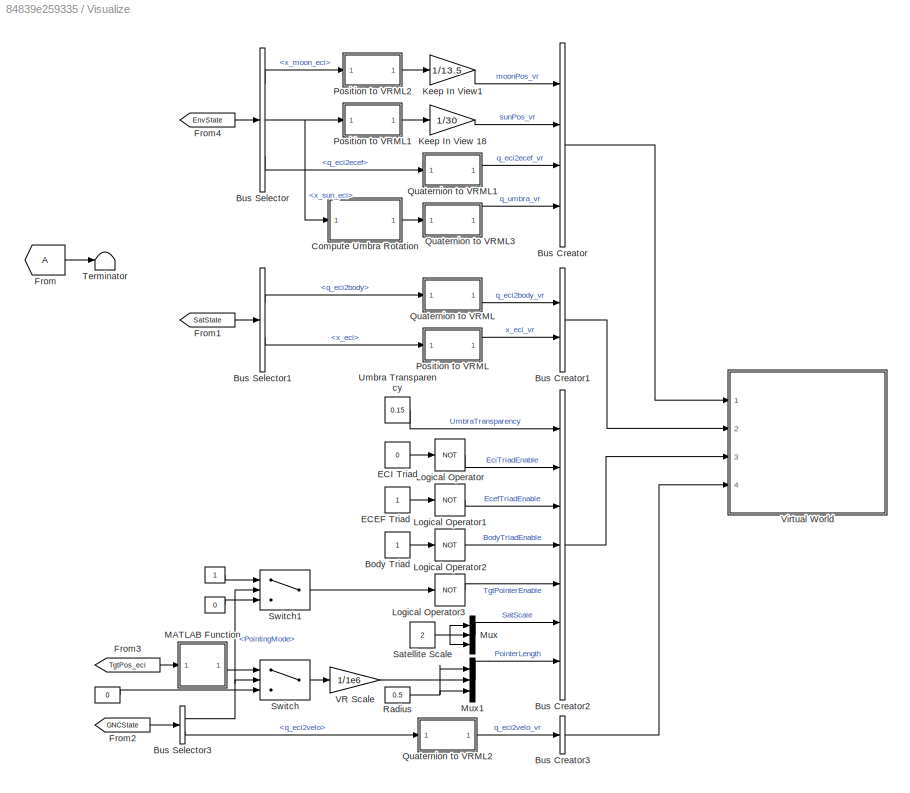
BLOCK [SubSystem] Visualize
  Ports = []
  RequestExecContextInheritance = off
BLOCK [Constant] Visualize/ 
  Value = 0
BLOCK [Constant] Visualize/  
  Value = 0
BLOCK [Constant] Visualize/     
BLOCK [Constant] Visualize/Body Triad
BLOCK [BusCreator] Visualize/Bus Creator
  DisplayOption = bar
  InheritFromInputs = on
  Inputs = 4
  Ports = [4, 1]
BLOCK [BusCreator] Visualize/Bus Creator1
  DisplayOption = bar
  InheritFromInputs = on
  Inputs = 2
  Ports = [2, 1]
BLOCK [BusCreator] Visualize/Bus Creator2
  DisplayOption = bar
  InheritFromInputs = on
  Inputs = 7
  Ports = [7, 1]
BLOCK [BusCreator] Visualize/Bus Creator3
  DisplayOption = bar
  InheritFromInputs = on
  Inputs = 1
  Ports = [1, 1]
BLOCK [BusSelector] Visualize/Bus Selector
  OutputAsBus = off
  OutputSignals = Celestrial.x_moon_eci,Celestrial.x_sun_eci,Celestrial.q_eci2ecef
  Ports = [1, 3]
BLOCK [BusSelector] Visualize/Bus Selector1
  OutputAsBus = off
  OutputSignals = Attitude.q_eci2body,Orbit.x_eci
  Ports = [1, 2]
BLOCK [BusSelector] Visualize/Bus Selector3
  OutputAsBus = off
  OutputSignals = Gdnc.PointingMode,Gdnc.VrAnim.q_eci2velo
  Ports = [1, 2]
BLOCK [SubSystem] Visualize/Compute Umbra Rotation
  Ports = [1, 1]
  RequestExecContextInheritance = off
BLOCK [Constant] Visualize/Compute Umbra Rotation/        
  Value = [0;0;-1]
BLOCK [Inport] Visualize/Compute Umbra Rotation/<x_sun_eci>
  IconDisplay = Port number
BLOCK [Reference] Visualize/Compute Umbra Rotation/Compute Umbra  REF=asbCubeSatBlockLib/Axes Transformations/Attitude Conversion/Quaternion between
r_a and r_b
  Ports = [2, 1]
  SourceBlock = asbCubeSatBlockLib/Axes Transformations/Attitude Conversion/Quaternion between\nr_a and r_b
  SourceType = SubSystem
BLOCK [Reference] Visualize/Compute Umbra Rotation/Normalization1  REF=dspmathops/Normalization
  Ports = [1, 1]
  SourceBlock = dspmathops/Normalization
  SourceProductBaseCode = DS
  SourceProductName = DSP System Toolbox
  SourceType = Normalization
BLOCK [Outport] Visualize/Compute Umbra Rotation/q
  IconDisplay = Port number
BLOCK [Constant] Visualize/ECEF Triad
BLOCK [Constant] Visualize/ECI Triad
  Value = 0
BLOCK [From] Visualize/From
BLOCK [From] Visualize/From1
  GotoTag = SatState
  TagVisibility = global
BLOCK [From] Visualize/From2
  GotoTag = GNCState
  TagVisibility = global
BLOCK [From] Visualize/From3
  GotoTag = TgtPos_eci
  TagVisibility = global
BLOCK [From] Visualize/From4
  GotoTag = EnvState
  TagVisibility = global
BLOCK [Gain] Visualize/Keep In View 18
  Gain = 1/30
  OutDataTypeStr = Inherit: Inherit via internal rule
  ParamDataTypeStr = Inherit: Inherit via internal rule
  SaturateOnIntegerOverflow = off
BLOCK [Gain] Visualize/Keep In View1
  Gain = 1/13.5
  OutDataTypeStr = Inherit: Inherit via internal rule
  ParamDataTypeStr = Inherit: Inherit via internal rule
  SaturateOnIntegerOverflow = off
BLOCK [Logic] Visualize/Logical Operator
  AllPortsSameDT = off
  IconShape = distinctive
  Operator = NOT
  OutDataTypeStr = boolean
  Ports = [1, 1]
BLOCK [Logic] Visualize/Logical Operator1
  AllPortsSameDT = off
  IconShape = distinctive
  Operator = NOT
  OutDataTypeStr = boolean
  Ports = [1, 1]
BLOCK [Logic] Visualize/Logical Operator2
  AllPortsSameDT = off
  IconShape = distinctive
  Operator = NOT
  OutDataTypeStr = boolean
  Ports = [1, 1]
BLOCK [Logic] Visualize/Logical Operator3
  AllPortsSameDT = off
  IconShape = distinctive
  Operator = NOT
  OutDataTypeStr = boolean
  Ports = [1, 1]
BLOCK [SubSystem] Visualize/MATLAB Function
  ErrorFcn = Stateflow.Translate.translate
  PermitHierarchicalResolution = ExplicitOnly
  Ports = [1, 1]
  RequestExecContextInheritance = off
  SFBlockType = MATLAB Function
  TreatAsAtomicUnit = on
BLOCK [Demux] Visualize/MATLAB Function/ Demux 
  Outputs = 1
  Ports = [1, 1]
BLOCK [S-Function] Visualize/MATLAB Function/ SFunction 
  EnableBusSupport = on
  FunctionName = sf_sfun
  PortCounts = [1 2]
  Ports = [1, 2]
  SFcnIsStateOwnerBlock = off
  SFunctionDeploymentMode = off
  Tag = Stateflow S-Function CubeSat_Simulator 2
BLOCK [Terminator] Visualize/MATLAB Function/ Terminator 
BLOCK [Inport] Visualize/MATLAB Function/u
  IconDisplay = Port number
BLOCK [Outport] Visualize/MATLAB Function/y
  IconDisplay = Port number
BLOCK [Mux] Visualize/Mux
  DisplayOption = bar
  Inputs = 3
  Ports = [3, 1]
BLOCK [Mux] Visualize/Mux1
  DisplayOption = bar
  Inputs = 3
  Ports = [3, 1]
BLOCK [SubSystem] Visualize/Position to VRML
  Ports = [1, 1]
  RequestExecContextInheritance = off
BLOCK [Selector] Visualize/Position to VRML/Position to VRML
  IndexOptions = Index vector (dialog)
  Indices = [2 3 1]
  InputPortWidth = 3
  OutputSizes = 1
  Ports = [1, 1]
BLOCK [Gain] Visualize/Position to VRML/Scale
  Gain = 1/1e6
  OutDataTypeStr = Inherit: Inherit via internal rule
  ParamDataTypeStr = Inherit: Inherit via internal rule
  SaturateOnIntegerOverflow = off
BLOCK [Outport] Visualize/Position to VRML/VRMLPos
  IconDisplay = Port number
BLOCK [Inport] Visualize/Position to VRML/x
  IconDisplay = Port number
BLOCK [SubSystem] Visualize/Position to VRML1
  Ports = [1, 1]
  RequestExecContextInheritance = off
BLOCK [Selector] Visualize/Position to VRML1/Position to VRML
  IndexOptions = Index vector (dialog)
  Indices = [2 3 1]
  InputPortWidth = 3
  OutputSizes = 1
  Ports = [1, 1]
BLOCK [Gain] Visualize/Position to VRML1/Scale
  Gain = 1/1e6
  OutDataTypeStr = Inherit: Inherit via internal rule
  ParamDataTypeStr = Inherit: Inherit via internal rule
  SaturateOnIntegerOverflow = off
BLOCK [Outport] Visualize/Position to VRML1/VRMLPos
  IconDisplay = Port number
BLOCK [Inport] Visualize/Position to VRML1/x
  IconDisplay = Port number
BLOCK [SubSystem] Visualize/Position to VRML2
  Ports = [1, 1]
  RequestExecContextInheritance = off
BLOCK [Selector] Visualize/Position to VRML2/Position to VRML
  IndexOptions = Index vector (dialog)
  Indices = [2 3 1]
  InputPortWidth = 3
  OutputSizes = 1
  Ports = [1, 1]
BLOCK [Gain] Visualize/Position to VRML2/Scale
  Gain = 1/1e6
  OutDataTypeStr = Inherit: Inherit via internal rule
  ParamDataTypeStr = Inherit: Inherit via internal rule
  SaturateOnIntegerOverflow = off
BLOCK [Outport] Visualize/Position to VRML2/VRMLPos
  IconDisplay = Port number
BLOCK [Inport] Visualize/Position to VRML2/x
  IconDisplay = Port number
BLOCK [SubSystem] Visualize/Quaternion to VRML
  Ports = [1, 1]
  RequestExecContextInheritance = off
BLOCK [Constant] Visualize/Quaternion to VRML/Constant
  Value = [0;0;0]
BLOCK [Product] Visualize/Quaternion to VRML/Divide
  InputSameDT = off
  Inputs = */
  OutDataTypeStr = Inherit: Inherit via internal rule
  Ports = [2, 1]
  RndMeth = Floor
  SaturateOnIntegerOverflow = off
BLOCK [Gain] Visualize/Quaternion to VRML/Gain
  Gain = 2
  OutDataTypeStr = Inherit: Inherit via internal rule
  ParamDataTypeStr = Inherit: Inherit via internal rule
  SaturateOnIntegerOverflow = off
BLOCK [Mux] Visualize/Quaternion to VRML/Mux
  DisplayOption = bar
  Inputs = 2
  Ports = [2, 1]
BLOCK [Reference] Visualize/Quaternion to VRML/Normalization  REF=dspmathops/Normalization
  Ports = [1, 1]
  SourceBlock = dspmathops/Normalization
  SourceProductBaseCode = DS
  SourceProductName = DSP System Toolbox
  SourceType = Normalization
BLOCK [Switch] Visualize/Quaternion to VRML/Resolve Division by 0
  Criteria = u2 ~= 0
  InputSameDT = off
  SaturateOnIntegerOverflow = off
BLOCK [Selector] Visualize/Quaternion to VRML/Scalar Part
  IndexOptions = Index vector (dialog)
  Indices = [1]
  InputPortWidth = 4
  OutputSizes = 1
  Ports = [1, 1]
BLOCK [Selector] Visualize/Quaternion to VRML/Selector
  IndexOptions = Index vector (dialog)
  Indices = [3 4 2 1]
  InputPortWidth = 4
  OutputSizes = 1
  Ports = [1, 1]
BLOCK [Trigonometry] Visualize/Quaternion to VRML/Trigonometric Function
  Operator = acos
  Ports = [1, 1]
BLOCK [Trigonometry] Visualize/Quaternion to VRML/Trigonometric Function1
  OutputSignalType = real
  Ports = [1, 1]
BLOCK [Outport] Visualize/Quaternion to VRML/VRMLRot
  IconDisplay = Port number
BLOCK [Selector] Visualize/Quaternion to VRML/Vector Part
  IndexOptions = Index vector (dialog)
  Indices = [2 3 4]
  InputPortWidth = 4
  OutputSizes = 1
  Ports = [1, 1]
BLOCK [Inport] Visualize/Quaternion to VRML/q
  IconDisplay = Port number
BLOCK [SubSystem] Visualize/Quaternion to VRML1
  Ports = [1, 1]
  RequestExecContextInheritance = off
BLOCK [Constant] Visualize/Quaternion to VRML1/Constant
  Value = [0;0;0]
BLOCK [Product] Visualize/Quaternion to VRML1/Divide
  InputSameDT = off
  Inputs = */
  OutDataTypeStr = Inherit: Inherit via internal rule
  Ports = [2, 1]
  RndMeth = Floor
  SaturateOnIntegerOverflow = off
BLOCK [Gain] Visualize/Quaternion to VRML1/Gain
  Gain = 2
  OutDataTypeStr = Inherit: Inherit via internal rule
  ParamDataTypeStr = Inherit: Inherit via internal rule
  SaturateOnIntegerOverflow = off
BLOCK [Mux] Visualize/Quaternion to VRML1/Mux
  DisplayOption = bar
  Inputs = 2
  Ports = [2, 1]
BLOCK [Reference] Visualize/Quaternion to VRML1/Normalization  REF=dspmathops/Normalization
  Ports = [1, 1]
  SourceBlock = dspmathops/Normalization
  SourceProductBaseCode = DS
  SourceProductName = DSP System Toolbox
  SourceType = Normalization
BLOCK [Switch] Visualize/Quaternion to VRML1/Resolve Division by 0
  Criteria = u2 ~= 0
  InputSameDT = off
  SaturateOnIntegerOverflow = off
BLOCK [Selector] Visualize/Quaternion to VRML1/Scalar Part
  IndexOptions = Index vector (dialog)
  Indices = [1]
  InputPortWidth = 4
  OutputSizes = 1
  Ports = [1, 1]
BLOCK [Selector] Visualize/Quaternion to VRML1/Selector
  IndexOptions = Index vector (dialog)
  Indices = [3 4 2 1]
  InputPortWidth = 4
  OutputSizes = 1
  Ports = [1, 1]
BLOCK [Trigonometry] Visualize/Quaternion to VRML1/Trigonometric Function
  Operator = acos
  Ports = [1, 1]
BLOCK [Trigonometry] Visualize/Quaternion to VRML1/Trigonometric Function1
  OutputSignalType = real
  Ports = [1, 1]
BLOCK [Outport] Visualize/Quaternion to VRML1/VRMLRot
  IconDisplay = Port number
BLOCK [Selector] Visualize/Quaternion to VRML1/Vector Part
  IndexOptions = Index vector (dialog)
  Indices = [2 3 4]
  InputPortWidth = 4
  OutputSizes = 1
  Ports = [1, 1]
BLOCK [Inport] Visualize/Quaternion to VRML1/q
  IconDisplay = Port number
BLOCK [SubSystem] Visualize/Quaternion to VRML2
  Ports = [1, 1]
  RequestExecContextInheritance = off
BLOCK [Constant] Visualize/Quaternion to VRML2/Constant
  Value = [0;0;0]
BLOCK [Product] Visualize/Quaternion to VRML2/Divide
  InputSameDT = off
  Inputs = */
  OutDataTypeStr = Inherit: Inherit via internal rule
  Ports = [2, 1]
  RndMeth = Floor
  SaturateOnIntegerOverflow = off
BLOCK [Gain] Visualize/Quaternion to VRML2/Gain
  Gain = 2
  OutDataTypeStr = Inherit: Inherit via internal rule
  ParamDataTypeStr = Inherit: Inherit via internal rule
  SaturateOnIntegerOverflow = off
BLOCK [Mux] Visualize/Quaternion to VRML2/Mux
  DisplayOption = bar
  Inputs = 2
  Ports = [2, 1]
BLOCK [Reference] Visualize/Quaternion to VRML2/Normalization  REF=dspmathops/Normalization
  Ports = [1, 1]
  SourceBlock = dspmathops/Normalization
  SourceProductBaseCode = DS
  SourceProductName = DSP System Toolbox
  SourceType = Normalization
BLOCK [Switch] Visualize/Quaternion to VRML2/Resolve Division by 0
  Criteria = u2 ~= 0
  InputSameDT = off
  SaturateOnIntegerOverflow = off
BLOCK [Selector] Visualize/Quaternion to VRML2/Scalar Part
  IndexOptions = Index vector (dialog)
  Indices = [1]
  InputPortWidth = 4
  OutputSizes = 1
  Ports = [1, 1]
BLOCK [Selector] Visualize/Quaternion to VRML2/Selector
  IndexOptions = Index vector (dialog)
  Indices = [3 4 2 1]
  InputPortWidth = 4
  OutputSizes = 1
  Ports = [1, 1]
BLOCK [Trigonometry] Visualize/Quaternion to VRML2/Trigonometric Function
  Operator = acos
  Ports = [1, 1]
BLOCK [Trigonometry] Visualize/Quaternion to VRML2/Trigonometric Function1
  OutputSignalType = real
  Ports = [1, 1]
BLOCK [Outport] Visualize/Quaternion to VRML2/VRMLRot
  IconDisplay = Port number
BLOCK [Selector] Visualize/Quaternion to VRML2/Vector Part
  IndexOptions = Index vector (dialog)
  Indices = [2 3 4]
  InputPortWidth = 4
  OutputSizes = 1
  Ports = [1, 1]
BLOCK [Inport] Visualize/Quaternion to VRML2/q
  IconDisplay = Port number
BLOCK [SubSystem] Visualize/Quaternion to VRML3
  Ports = [1, 1]
  RequestExecContextInheritance = off
BLOCK [Constant] Visualize/Quaternion to VRML3/Constant
  Value = [0;0;0]
BLOCK [Product] Visualize/Quaternion to VRML3/Divide
  InputSameDT = off
  Inputs = */
  OutDataTypeStr = Inherit: Inherit via internal rule
  Ports = [2, 1]
  RndMeth = Floor
  SaturateOnIntegerOverflow = off
BLOCK [Gain] Visualize/Quaternion to VRML3/Gain
  Gain = 2
  OutDataTypeStr = Inherit: Inherit via internal rule
  ParamDataTypeStr = Inherit: Inherit via internal rule
  SaturateOnIntegerOverflow = off
BLOCK [Mux] Visualize/Quaternion to VRML3/Mux
  DisplayOption = bar
  Inputs = 2
  Ports = [2, 1]
BLOCK [Reference] Visualize/Quaternion to VRML3/Normalization  REF=dspmathops/Normalization
  Ports = [1, 1]
  SourceBlock = dspmathops/Normalization
  SourceProductBaseCode = DS
  SourceProductName = DSP System Toolbox
  SourceType = Normalization
BLOCK [Switch] Visualize/Quaternion to VRML3/Resolve Division by 0
  Criteria = u2 ~= 0
  InputSameDT = off
  SaturateOnIntegerOverflow = off
BLOCK [Selector] Visualize/Quaternion to VRML3/Scalar Part
  IndexOptions = Index vector (dialog)
  Indices = [1]
  InputPortWidth = 4
  OutputSizes = 1
  Ports = [1, 1]
BLOCK [Selector] Visualize/Quaternion to VRML3/Selector
  IndexOptions = Index vector (dialog)
  Indices = [3 4 2 1]
  InputPortWidth = 4
  OutputSizes = 1
  Ports = [1, 1]
BLOCK [Trigonometry] Visualize/Quaternion to VRML3/Trigonometric Function
  Operator = acos
  Ports = [1, 1]
BLOCK [Trigonometry] Visualize/Quaternion to VRML3/Trigonometric Function1
  OutputSignalType = real
  Ports = [1, 1]
BLOCK [Outport] Visualize/Quaternion to VRML3/VRMLRot
  IconDisplay = Port number
BLOCK [Selector] Visualize/Quaternion to VRML3/Vector Part
  IndexOptions = Index vector (dialog)
  Indices = [2 3 4]
  InputPortWidth = 4
  OutputSizes = 1
  Ports = [1, 1]
BLOCK [Inport] Visualize/Quaternion to VRML3/q
  IconDisplay = Port number
BLOCK [Constant] Visualize/Radius
  Value = 0.5
BLOCK [Constant] Visualize/Satellite Scale
  Value = 2
BLOCK [Switch] Visualize/Switch
  InputSameDT = off
  SaturateOnIntegerOverflow = off
  Threshold = 4
BLOCK [Switch] Visualize/Switch1
  InputSameDT = off
  SaturateOnIntegerOverflow = off
  Threshold = 4
BLOCK [Terminator] Visualize/Terminator
BLOCK [Constant] Visualize/Umbra Transparency
  Value = 0.15
BLOCK [Gain] Visualize/VR Scale
  Gain = 1/1e6
  OutDataTypeStr = Inherit: Inherit via internal rule
  ParamDataTypeStr = Inherit: Inherit via internal rule
  SaturateOnIntegerOverflow = off
BLOCK [SubSystem] Visualize/Virtual World
  Ports = [4]
  RequestExecContextInheritance = off
BLOCK [Inport] Visualize/Virtual World/In Bus Element
  IconDisplay = Port number
BLOCK [Inport] Visualize/Virtual World/In Bus Element1
  IconDisplay = Port number
BLOCK [Inport] Visualize/Virtual World/In Bus Element10
  IconDisplay = Port number
  Port = 3
BLOCK [Inport] Visualize/Virtual World/In Bus Element11
  IconDisplay = Port number
  Port = 3
BLOCK [Inport] Visualize/Virtual World/In Bus Element12
  IconDisplay = Port number
BLOCK [Inport] Visualize/Virtual World/In Bus Element13
  IconDisplay = Port number
  Port = 3
BLOCK [Inport] Visualize/Virtual World/In Bus Element2
  IconDisplay = Port number
BLOCK [Inport] Visualize/Virtual World/In Bus Element3
  IconDisplay = Port number
  Port = 2
BLOCK [Inport] Visualize/Virtual World/In Bus Element4
  IconDisplay = Port number
  Port = 2
BLOCK [Inport] Visualize/Virtual World/In Bus Element5
  IconDisplay = Port number
  Port = 3
BLOCK [Inport] Visualize/Virtual World/In Bus Element6
  IconDisplay = Port number
  Port = 3
BLOCK [Inport] Visualize/Virtual World/In Bus Element7
  IconDisplay = Port number
  Port = 3
BLOCK [Inport] Visualize/Virtual World/In Bus Element8
  IconDisplay = Port number
  Port = 3
BLOCK [Inport] Visualize/Virtual World/In Bus Element9
  IconDisplay = Port number
  Port = 4
BLOCK [Reference] Visualize/Virtual World/Satellite Orbit  REF=vrlib/VR Tracer
  Ports = [1]
  SourceBlock = vrlib/VR Tracer
  SourceProductBaseCode = SL
  SourceProductName = Simulink
  SourceType = VR Tracer
BLOCK [Reference] Visualize/Virtual World/VR Sink (Scale 1e-6)  REF=vrlib/VR Sink
  InstantiateOnLoad = on
  Ports = [15]
  SourceBlock = vrlib/VR Sink
  SourceProductBaseCode = SL
  SourceProductName = Simulink
  SourceType = Virtual Reality Sink
ANNOTATION (root): <copyright redacted>
ANNOTATION (root): LEO Nano-Satellite Attitude Control Simulation
ANNOTATION (root): Mission Control Center
ANNOTATION (root): Satellite Onboard System
LINE CubeSat Hardware/Attitude Actuator/Bus Creator1:1 -> CubeSat Hardware/Attitude Actuator/Out Bus Element2:1
LINE CubeSat Hardware/Attitude Actuator/Bus Creator:1 -> CubeSat Hardware/Attitude Actuator/Out Bus Element:1
LINE CubeSat Hardware/Attitude Actuator/In Bus Element2:1 -> CubeSat Hardware/Attitude Actuator/Saturation:1
LINE CubeSat Hardware/Attitude Actuator/In Bus Element3:1 -> CubeSat Hardware/Attitude Actuator/Magnetic Torquer Cluster:2
LINE CubeSat Hardware/Attitude Actuator/In Bus Element4:1 -> CubeSat Hardware/Attitude Actuator/Reaction Wheel Cluster:1
LINE CubeSat Hardware/Attitude Actuator/In Bus Element5:1 -> CubeSat Hardware/Attitude Actuator/Saturation1:1
LINE CubeSat Hardware/Attitude Actuator/In Bus Element6:1 -> CubeSat Hardware/Attitude Actuator/Reaction Wheel Cluster:2
LINE CubeSat Hardware/Attitude Actuator/Magnetic Torquer Cluster/Envi:1 -> CubeSat Hardware/Attitude Actuator/Magnetic Torquer Cluster/Terminator:1
LINE CubeSat Hardware/Attitude Actuator/Magnetic Torquer Cluster/b_t_cmd_mtc:1 -> CubeSat Hardware/Attitude Actuator/Magnetic Torquer Cluster/t_mtc:1
LINE CubeSat Hardware/Attitude Actuator/Magnetic Torquer Cluster:1 -> CubeSat Hardware/Attitude Actuator/Bus Creator1:1
NET CubeSat Hardware/Attitude Actuator/Product:1 -> CubeSat Hardware/Attitude Actuator/Bus Creator:4, CubeSat Hardware/Attitude Actuator/Sum of Elements:1
LINE CubeSat Hardware/Attitude Actuator/Reaction Wheel Cluster/Demux:1 -> CubeSat Hardware/Attitude Actuator/Reaction Wheel Cluster/RW 1:3
LINE CubeSat Hardware/Attitude Actuator/Reaction Wheel Cluster/Demux:2 -> CubeSat Hardware/Attitude Actuator/Reaction Wheel Cluster/RW 2:3
LINE CubeSat Hardware/Attitude Actuator/Reaction Wheel Cluster/Demux:3 -> CubeSat Hardware/Attitude Actuator/Reaction Wheel Cluster/RW 3:3
LINE CubeSat Hardware/Attitude Actuator/Reaction Wheel Cluster/Demux:4 -> CubeSat Hardware/Attitude Actuator/Reaction Wheel Cluster/RW 4:3
NET CubeSat Hardware/Attitude Actuator/Reaction Wheel Cluster/Distri Mtx2:1 -> CubeSat Hardware/Attitude Actuator/Reaction Wheel Cluster/Demux:1, CubeSat Hardware/Attitude Actuator/Reaction Wheel Cluster/u_s:1
LINE CubeSat Hardware/Attitude Actuator/Reaction Wheel Cluster/Mux1:1 -> CubeSat Hardware/Attitude Actuator/Reaction Wheel Cluster/h_s:1
LINE CubeSat Hardware/Attitude Actuator/Reaction Wheel Cluster/Mux2:1 -> CubeSat Hardware/Attitude Actuator/Reaction Wheel Cluster/omega_w:1
LINE CubeSat Hardware/Attitude Actuator/Reaction Wheel Cluster/RW 1/ALPHA:1 -> CubeSat Hardware/Attitude Actuator/Reaction Wheel Cluster/RW 1/Gain1:1
LINE CubeSat Hardware/Attitude Actuator/Reaction Wheel Cluster/RW 1/G_s:1 -> CubeSat Hardware/Attitude Actuator/Reaction Wheel Cluster/RW 1/Sum1:1
LINE CubeSat Hardware/Attitude Actuator/Reaction Wheel Cluster/RW 1/Gain1:1 -> CubeSat Hardware/Attitude Actuator/Reaction Wheel Cluster/RW 1/Sum:2
LINE CubeSat Hardware/Attitude Actuator/Reaction Wheel Cluster/RW 1/Gain:1 -> CubeSat Hardware/Attitude Actuator/Reaction Wheel Cluster/RW 1/Sum:1
LINE CubeSat Hardware/Attitude Actuator/Reaction Wheel Cluster/RW 1/I_w:1 -> CubeSat Hardware/Attitude Actuator/Reaction Wheel Cluster/RW 1/h_w_1:1
NET CubeSat Hardware/Attitude Actuator/Reaction Wheel Cluster/RW 1/Integrator:1 -> CubeSat Hardware/Attitude Actuator/Reaction Wheel Cluster/RW 1/Sum1:2, CubeSat Hardware/Attitude Actuator/Reaction Wheel Cluster/RW 1/omega_w_1:1
LINE CubeSat Hardware/Attitude Actuator/Reaction Wheel Cluster/RW 1/OMEGA:1 -> CubeSat Hardware/Attitude Actuator/Reaction Wheel Cluster/RW 1/G_s:1
LINE CubeSat Hardware/Attitude Actuator/Reaction Wheel Cluster/RW 1/Sum1:1 -> CubeSat Hardware/Attitude Actuator/Reaction Wheel Cluster/RW 1/I_w:1
LINE CubeSat Hardware/Attitude Actuator/Reaction Wheel Cluster/RW 1/Sum:1 -> CubeSat Hardware/Attitude Actuator/Reaction Wheel Cluster/RW 1/Integrator:1
LINE CubeSat Hardware/Attitude Actuator/Reaction Wheel Cluster/RW 1/u_s_1:1 -> CubeSat Hardware/Attitude Actuator/Reaction Wheel Cluster/RW 1/Gain:1
LINE CubeSat Hardware/Attitude Actuator/Reaction Wheel Cluster/RW 1:1 -> CubeSat Hardware/Attitude Actuator/Reaction Wheel Cluster/Mux1:1
LINE CubeSat Hardware/Attitude Actuator/Reaction Wheel Cluster/RW 1:2 -> CubeSat Hardware/Attitude Actuator/Reaction Wheel Cluster/Mux2:1
LINE CubeSat Hardware/Attitude Actuator/Reaction Wheel Cluster/RW 2/ALPHA:1 -> CubeSat Hardware/Attitude Actuator/Reaction Wheel Cluster/RW 2/Gain1:1
LINE CubeSat Hardware/Attitude Actuator/Reaction Wheel Cluster/RW 2/Gain1:1 -> CubeSat Hardware/Attitude Actuator/Reaction Wheel Cluster/RW 2/Sum:2
LINE CubeSat Hardware/Attitude Actuator/Reaction Wheel Cluster/RW 2/Gain2:1 -> CubeSat Hardware/Attitude Actuator/Reaction Wheel Cluster/RW 2/Sum1:1
LINE CubeSat Hardware/Attitude Actuator/Reaction Wheel Cluster/RW 2/Gain:1 -> CubeSat Hardware/Attitude Actuator/Reaction Wheel Cluster/RW 2/Sum:1
LINE CubeSat Hardware/Attitude Actuator/Reaction Wheel Cluster/RW 2/I_w:1 -> CubeSat Hardware/Attitude Actuator/Reaction Wheel Cluster/RW 2/h_w_2:1
NET CubeSat Hardware/Attitude Actuator/Reaction Wheel Cluster/RW 2/Integrator:1 -> CubeSat Hardware/Attitude Actuator/Reaction Wheel Cluster/RW 2/Sum1:2, CubeSat Hardware/Attitude Actuator/Reaction Wheel Cluster/RW 2/omega_w_2:1
LINE CubeSat Hardware/Attitude Actuator/Reaction Wheel Cluster/RW 2/OMEGA:1 -> CubeSat Hardware/Attitude Actuator/Reaction Wheel Cluster/RW 2/Gain2:1
LINE CubeSat Hardware/Attitude Actuator/Reaction Wheel Cluster/RW 2/Sum1:1 -> CubeSat Hardware/Attitude Actuator/Reaction Wheel Cluster/RW 2/I_w:1
LINE CubeSat Hardware/Attitude Actuator/Reaction Wheel Cluster/RW 2/Sum:1 -> CubeSat Hardware/Attitude Actuator/Reaction Wheel Cluster/RW 2/Integrator:1
LINE CubeSat Hardware/Attitude Actuator/Reaction Wheel Cluster/RW 2/u_s_2:1 -> CubeSat Hardware/Attitude Actuator/Reaction Wheel Cluster/RW 2/Gain:1
LINE CubeSat Hardware/Attitude Actuator/Reaction Wheel Cluster/RW 2:1 -> CubeSat Hardware/Attitude Actuator/Reaction Wheel Cluster/Mux1:2
LINE CubeSat Hardware/Attitude Actuator/Reaction Wheel Cluster/RW 2:2 -> CubeSat Hardware/Attitude Actuator/Reaction Wheel Cluster/Mux2:2
LINE CubeSat Hardware/Attitude Actuator/Reaction Wheel Cluster/RW 3/ALPHA:1 -> CubeSat Hardware/Attitude Actuator/Reaction Wheel Cluster/RW 3/Gain1:1
LINE CubeSat Hardware/Attitude Actuator/Reaction Wheel Cluster/RW 3/Gain1:1 -> CubeSat Hardware/Attitude Actuator/Reaction Wheel Cluster/RW 3/Sum:2
LINE CubeSat Hardware/Attitude Actuator/Reaction Wheel Cluster/RW 3/Gain2:1 -> CubeSat Hardware/Attitude Actuator/Reaction Wheel Cluster/RW 3/Sum1:1
LINE CubeSat Hardware/Attitude Actuator/Reaction Wheel Cluster/RW 3/Gain:1 -> CubeSat Hardware/Attitude Actuator/Reaction Wheel Cluster/RW 3/Sum:1
LINE CubeSat Hardware/Attitude Actuator/Reaction Wheel Cluster/RW 3/I_w:1 -> CubeSat Hardware/Attitude Actuator/Reaction Wheel Cluster/RW 3/h_w_3:1
NET CubeSat Hardware/Attitude Actuator/Reaction Wheel Cluster/RW 3/Integrator:1 -> CubeSat Hardware/Attitude Actuator/Reaction Wheel Cluster/RW 3/Sum1:2, CubeSat Hardware/Attitude Actuator/Reaction Wheel Cluster/RW 3/omega_w_3:1
LINE CubeSat Hardware/Attitude Actuator/Reaction Wheel Cluster/RW 3/OMEGA:1 -> CubeSat Hardware/Attitude Actuator/Reaction Wheel Cluster/RW 3/Gain2:1
LINE CubeSat Hardware/Attitude Actuator/Reaction Wheel Cluster/RW 3/Sum1:1 -> CubeSat Hardware/Attitude Actuator/Reaction Wheel Cluster/RW 3/I_w:1
LINE CubeSat Hardware/Attitude Actuator/Reaction Wheel Cluster/RW 3/Sum:1 -> CubeSat Hardware/Attitude Actuator/Reaction Wheel Cluster/RW 3/Integrator:1
LINE CubeSat Hardware/Attitude Actuator/Reaction Wheel Cluster/RW 3/u_s_3:1 -> CubeSat Hardware/Attitude Actuator/Reaction Wheel Cluster/RW 3/Gain:1
LINE CubeSat Hardware/Attitude Actuator/Reaction Wheel Cluster/RW 3:1 -> CubeSat Hardware/Attitude Actuator/Reaction Wheel Cluster/Mux1:3
LINE CubeSat Hardware/Attitude Actuator/Reaction Wheel Cluster/RW 3:2 -> CubeSat Hardware/Attitude Actuator/Reaction Wheel Cluster/Mux2:3
LINE CubeSat Hardware/Attitude Actuator/Reaction Wheel Cluster/RW 4/ALPHA:1 -> CubeSat Hardware/Attitude Actuator/Reaction Wheel Cluster/RW 4/Gain1:1
LINE CubeSat Hardware/Attitude Actuator/Reaction Wheel Cluster/RW 4/Gain1:1 -> CubeSat Hardware/Attitude Actuator/Reaction Wheel Cluster/RW 4/Sum:2
LINE CubeSat Hardware/Attitude Actuator/Reaction Wheel Cluster/RW 4/Gain2:1 -> CubeSat Hardware/Attitude Actuator/Reaction Wheel Cluster/RW 4/Sum1:1
LINE CubeSat Hardware/Attitude Actuator/Reaction Wheel Cluster/RW 4/Gain:1 -> CubeSat Hardware/Attitude Actuator/Reaction Wheel Cluster/RW 4/Sum:1
LINE CubeSat Hardware/Attitude Actuator/Reaction Wheel Cluster/RW 4/I_w:1 -> CubeSat Hardware/Attitude Actuator/Reaction Wheel Cluster/RW 4/h_w_4:1
NET CubeSat Hardware/Attitude Actuator/Reaction Wheel Cluster/RW 4/Integrator:1 -> CubeSat Hardware/Attitude Actuator/Reaction Wheel Cluster/RW 4/Sum1:2, CubeSat Hardware/Attitude Actuator/Reaction Wheel Cluster/RW 4/omega_w_4:1
LINE CubeSat Hardware/Attitude Actuator/Reaction Wheel Cluster/RW 4/OMEGA:1 -> CubeSat Hardware/Attitude Actuator/Reaction Wheel Cluster/RW 4/Gain2:1
LINE CubeSat Hardware/Attitude Actuator/Reaction Wheel Cluster/RW 4/Sum1:1 -> CubeSat Hardware/Attitude Actuator/Reaction Wheel Cluster/RW 4/I_w:1
LINE CubeSat Hardware/Attitude Actuator/Reaction Wheel Cluster/RW 4/Sum:1 -> CubeSat Hardware/Attitude Actuator/Reaction Wheel Cluster/RW 4/Integrator:1
LINE CubeSat Hardware/Attitude Actuator/Reaction Wheel Cluster/RW 4/u_s_4:1 -> CubeSat Hardware/Attitude Actuator/Reaction Wheel Cluster/RW 4/Gain:1
LINE CubeSat Hardware/Attitude Actuator/Reaction Wheel Cluster/RW 4:1 -> CubeSat Hardware/Attitude Actuator/Reaction Wheel Cluster/Mux1:4
LINE CubeSat Hardware/Attitude Actuator/Reaction Wheel Cluster/RW 4:2 -> CubeSat Hardware/Attitude Actuator/Reaction Wheel Cluster/Mux2:4
NET CubeSat Hardware/Attitude Actuator/Reaction Wheel Cluster/b_a_b//n:1 -> CubeSat Hardware/Attitude Actuator/Reaction Wheel Cluster/RW 1:2, CubeSat Hardware/Attitude Actuator/Reaction Wheel Cluster/RW 2:2, CubeSat Hardware/Attitude Actuator/Reaction Wheel Cluster/RW 3:2, CubeSat Hardware/Attitude Actuator/Reaction Wheel Cluster/RW 4:2
LINE CubeSat Hardware/Attitude Actuator/Reaction Wheel Cluster/b_t_cmd_rwc:1 -> CubeSat Hardware/Attitude Actuator/Reaction Wheel Cluster/Distri Mtx2:1
NET CubeSat Hardware/Attitude Actuator/Reaction Wheel Cluster/b_w_b//n:1 -> CubeSat Hardware/Attitude Actuator/Reaction Wheel Cluster/RW 1:1, CubeSat Hardware/Attitude Actuator/Reaction Wheel Cluster/RW 2:1, CubeSat Hardware/Attitude Actuator/Reaction Wheel Cluster/RW 3:1, CubeSat Hardware/Attitude Actuator/Reaction Wheel Cluster/RW 4:1
LINE CubeSat Hardware/Attitude Actuator/Reaction Wheel Cluster:1 -> CubeSat Hardware/Attitude Actuator/Bus Creator:1
NET CubeSat Hardware/Attitude Actuator/Reaction Wheel Cluster:2 -> CubeSat Hardware/Attitude Actuator/Bus Creator:2, CubeSat Hardware/Attitude Actuator/Product:1
NET CubeSat Hardware/Attitude Actuator/Reaction Wheel Cluster:3 -> CubeSat Hardware/Attitude Actuator/Bus Creator:3, CubeSat Hardware/Attitude Actuator/Product:2
LINE CubeSat Hardware/Attitude Actuator/Saturation1:1 -> CubeSat Hardware/Attitude Actuator/Magnetic Torquer Cluster:1
LINE CubeSat Hardware/Attitude Actuator/Saturation:1 -> CubeSat Hardware/Attitude Actuator/Reaction Wheel Cluster:3
LINE CubeSat Hardware/Attitude Actuator/Sum of Elements:1 -> CubeSat Hardware/Attitude Actuator/Bus Creator:5
LINE CubeSat Hardware/Attitude Actuator:1 -> CubeSat Hardware/Bus Creator:1
LINE CubeSat Hardware/Bus Creator2:1 -> CubeSat Hardware/Bus Creator:2
LINE CubeSat Hardware/Bus Creator:1 -> CubeSat Hardware/Vehicle Dynamics:1
NET CubeSat Hardware/EnvState:1 -> CubeSat Hardware/   :1, CubeSat Hardware/Attitude Actuator:3, CubeSat Hardware/Vehicle Dynamics:2
NET CubeSat Hardware/GNCState:1 -> CubeSat Hardware/ :1, CubeSat Hardware/Attitude Actuator:2
LINE CubeSat Hardware/Orbit Actuator:1 -> CubeSat Hardware/Bus Creator2:1
LINE CubeSat Hardware/Sensor Suit/Encoder/In1:1 -> CubeSat Hardware/Sensor Suit/Encoder/Out1:1
LINE CubeSat Hardware/Sensor Suit/Encoder:1 -> CubeSat Hardware/Sensor Suit/Out Bus Element4:1
LINE CubeSat Hardware/Sensor Suit/GPS/In1:1 -> CubeSat Hardware/Sensor Suit/GPS/Out1:1
LINE CubeSat Hardware/Sensor Suit/GPS/In2:1 -> CubeSat Hardware/Sensor Suit/GPS/Out2:1
LINE CubeSat Hardware/Sensor Suit/GPS:1 -> CubeSat Hardware/Sensor Suit/Out Bus Element2:1
LINE CubeSat Hardware/Sensor Suit/GPS:2 -> CubeSat Hardware/Sensor Suit/Out Bus Element5:1
LINE CubeSat Hardware/Sensor Suit/Gyroscope/In1:1 -> CubeSat Hardware/Sensor Suit/Gyroscope/Out1:1
LINE CubeSat Hardware/Sensor Suit/Gyroscope:1 -> CubeSat Hardware/Sensor Suit/Out Bus Element:1
LINE CubeSat Hardware/Sensor Suit/In Bus Element2:1 -> CubeSat Hardware/Sensor Suit/GPS:2
LINE CubeSat Hardware/Sensor Suit/In Bus Element3:1 -> CubeSat Hardware/Sensor Suit/Out Bus Element6:1
LINE CubeSat Hardware/Sensor Suit/In Bus Element4:1 -> CubeSat Hardware/Sensor Suit/Gyroscope:1
LINE CubeSat Hardware/Sensor Suit/In Bus Element5:1 -> CubeSat Hardware/Sensor Suit/Sun Sensor:1
LINE CubeSat Hardware/Sensor Suit/In Bus Element6:1 -> CubeSat Hardware/Sensor Suit/GPS:1
LINE CubeSat Hardware/Sensor Suit/In Bus Element7:1 -> CubeSat Hardware/Sensor Suit/Magnetometer:1
LINE CubeSat Hardware/Sensor Suit/In Bus Element8:1 -> CubeSat Hardware/Sensor Suit/Out Bus Element7:1
LINE CubeSat Hardware/Sensor Suit/In Bus Element:1 -> CubeSat Hardware/Sensor Suit/Encoder:1
LINE CubeSat Hardware/Sensor Suit/Magnetometer/In1:1 -> CubeSat Hardware/Sensor Suit/Magnetometer/Out1:1
LINE CubeSat Hardware/Sensor Suit/Magnetometer:1 -> CubeSat Hardware/Sensor Suit/Out Bus Element3:1
LINE CubeSat Hardware/Sensor Suit/Sun Sensor/In1:1 -> CubeSat Hardware/Sensor Suit/Sun Sensor/Out1:1
LINE CubeSat Hardware/Sensor Suit/Sun Sensor:1 -> CubeSat Hardware/Sensor Suit/Out Bus Element1:1
LINE CubeSat Hardware/Sensor Suit:1 -> CubeSat Hardware/SensorOut:1
LINE CubeSat Hardware/Vehicle Dynamics/Add1:1 -> CubeSat Hardware/Vehicle Dynamics/Orbital:1
LINE CubeSat Hardware/Vehicle Dynamics/Add:1 -> CubeSat Hardware/Vehicle Dynamics/Attitude:2
LINE CubeSat Hardware/Vehicle Dynamics/Attitude/ExtTorq_body:1 -> CubeSat Hardware/Vehicle Dynamics/Attitude/Sum:4
LINE CubeSat Hardware/Vehicle Dynamics/Attitude/G_s:1 -> CubeSat Hardware/Vehicle Dynamics/Attitude/Product1:1
LINE CubeSat Hardware/Vehicle Dynamics/Attitude/Gain1:1 -> CubeSat Hardware/Vehicle Dynamics/Attitude/Sum:3
NET CubeSat Hardware/Vehicle Dynamics/Attitude/Gain:1 -> CubeSat Hardware/Vehicle Dynamics/Attitude/Integrator:1, CubeSat Hardware/Vehicle Dynamics/Attitude/Out Bus Element1:1
LINE CubeSat Hardware/Vehicle Dynamics/Attitude/I_RW:1 -> CubeSat Hardware/Vehicle Dynamics/Attitude/Product:1
LINE CubeSat Hardware/Vehicle Dynamics/Attitude/In Bus Element1:1 -> CubeSat Hardware/Vehicle Dynamics/Attitude/Gain1:1
LINE CubeSat Hardware/Vehicle Dynamics/Attitude/In Bus Element:1 -> CubeSat Hardware/Vehicle Dynamics/Attitude/Product1:2
NET CubeSat Hardware/Vehicle Dynamics/Attitude/Integrator:1 -> CubeSat Hardware/Vehicle Dynamics/Attitude/Out Bus Element:1, CubeSat Hardware/Vehicle Dynamics/Attitude/Product:2, CubeSat Hardware/Vehicle Dynamics/Attitude/Vector Cross Product1:1, CubeSat Hardware/Vehicle Dynamics/Attitude/Vector Cross Product:1, CubeSat Hardware/Vehicle Dynamics/Attitude/integrate quaternion:1
NET CubeSat Hardware/Vehicle Dynamics/Attitude/Product1:1 -> CubeSat Hardware/Vehicle Dynamics/Attitude/Out Bus Element3:1, CubeSat Hardware/Vehicle Dynamics/Attitude/Sum:2
NET CubeSat Hardware/Vehicle Dynamics/Attitude/Product:1 -> CubeSat Hardware/Vehicle Dynamics/Attitude/Out Bus Element5:1, CubeSat Hardware/Vehicle Dynamics/Attitude/Sum:1
LINE CubeSat Hardware/Vehicle Dynamics/Attitude/Quaternion Normalize:1 -> CubeSat Hardware/Vehicle Dynamics/Attitude/Out Bus Element2:1
LINE CubeSat Hardware/Vehicle Dynamics/Attitude/Sum:1 -> CubeSat Hardware/Vehicle Dynamics/Attitude/Gain:1
LINE CubeSat Hardware/Vehicle Dynamics/Attitude/Vector Cross Product1:1 -> CubeSat Hardware/Vehicle Dynamics/Attitude/G_s:1
LINE CubeSat Hardware/Vehicle Dynamics/Attitude/Vector Cross Product:1 -> CubeSat Hardware/Vehicle Dynamics/Attitude/I_RW:1
LINE CubeSat Hardware/Vehicle Dynamics/Attitude/integrate quaternion:1 -> CubeSat Hardware/Vehicle Dynamics/Attitude/Quaternion Normalize:1
LINE CubeSat Hardware/Vehicle Dynamics/Attitude:1 -> CubeSat Hardware/Vehicle Dynamics/Out Bus Element:1
LINE CubeSat Hardware/Vehicle Dynamics/Bus Selector1:1 -> CubeSat Hardware/Vehicle Dynamics/Add:1
LINE CubeSat Hardware/Vehicle Dynamics/Bus Selector2:1 -> CubeSat Hardware/Vehicle Dynamics/Add1:1
LINE CubeSat Hardware/Vehicle Dynamics/Bus Selector:1 -> CubeSat Hardware/Vehicle Dynamics/Attitude:1
LINE CubeSat Hardware/Vehicle Dynamics/Bus Selector:2 -> CubeSat Hardware/Vehicle Dynamics/Bus Selector1:1
LINE CubeSat Hardware/Vehicle Dynamics/In Bus Element2:1 -> CubeSat Hardware/Vehicle Dynamics/Bus Selector:1
LINE CubeSat Hardware/Vehicle Dynamics/In Bus Element3:1 -> CubeSat Hardware/Vehicle Dynamics/Out Bus Element2:1
LINE CubeSat Hardware/Vehicle Dynamics/In Bus Element4:1 -> CubeSat Hardware/Vehicle Dynamics/Out Bus Element3:1
LINE CubeSat Hardware/Vehicle Dynamics/In Bus Element5:1 -> CubeSat Hardware/Vehicle Dynamics/Add:2
LINE CubeSat Hardware/Vehicle Dynamics/In Bus Element6:1 -> CubeSat Hardware/Vehicle Dynamics/Bus Selector2:1
LINE CubeSat Hardware/Vehicle Dynamics/In Bus Element:1 -> CubeSat Hardware/Vehicle Dynamics/Add1:2
LINE CubeSat Hardware/Vehicle Dynamics/Orbital/ExtForce_eci:1 -> CubeSat Hardware/Vehicle Dynamics/Orbital/Gain:1
NET CubeSat Hardware/Vehicle Dynamics/Orbital/Gain:1 -> CubeSat Hardware/Vehicle Dynamics/Orbital/Integrator, Second-Order:1, CubeSat Hardware/Vehicle Dynamics/Orbital/Out Bus Element3:1
LINE CubeSat Hardware/Vehicle Dynamics/Orbital/Initial Position:1 -> CubeSat Hardware/Vehicle Dynamics/Orbital/Integrator, Second-Order:2
LINE CubeSat Hardware/Vehicle Dynamics/Orbital/Initial Velocity:1 -> CubeSat Hardware/Vehicle Dynamics/Orbital/Integrator, Second-Order:3
LINE CubeSat Hardware/Vehicle Dynamics/Orbital/Integrator, Second-Order:1 -> CubeSat Hardware/Vehicle Dynamics/Orbital/Out Bus Element2:1
LINE CubeSat Hardware/Vehicle Dynamics/Orbital/Integrator, Second-Order:2 -> CubeSat Hardware/Vehicle Dynamics/Orbital/Out Bus Element1:1
LINE CubeSat Hardware/Vehicle Dynamics/Orbital:1 -> CubeSat Hardware/Vehicle Dynamics/Out Bus Element1:1
NET CubeSat Hardware/Vehicle Dynamics:1 -> CubeSat Hardware/  :1, CubeSat Hardware/Attitude Actuator:1, CubeSat Hardware/SatState:1, CubeSat Hardware/Sensor Suit:1
LINE CubeSat Hardware:1 -> GNC Computer:1
LINE CubeSat Hardware:2 -> Environment:1
NET Environment/Earth Rotation Planet Position/Celestrial Body Position/JulianDate:1 -> Environment/Earth Rotation Planet Position/Celestrial Body Position/Moon Position_ECI:1, Environment/Earth Rotation Planet Position/Celestrial Body Position/Sun Position_ECI:1
LINE Environment/Earth Rotation Planet Position/Celestrial Body Position/Length Conversion1:1 -> Environment/Earth Rotation Planet Position/Celestrial Body Position/x_moon_eci:1
LINE Environment/Earth Rotation Planet Position/Celestrial Body Position/Length Conversion:1 -> Environment/Earth Rotation Planet Position/Celestrial Body Position/x_sun_eci:1
LINE Environment/Earth Rotation Planet Position/Celestrial Body Position/Moon Position_ECI:1 -> Environment/Earth Rotation Planet Position/Celestrial Body Position/Length Conversion1:1
LINE Environment/Earth Rotation Planet Position/Celestrial Body Position/Sun Position_ECI:1 -> Environment/Earth Rotation Planet Position/Celestrial Body Position/Length Conversion:1
LINE Environment/Earth Rotation Planet Position/Celestrial Body Position:1 -> Environment/Earth Rotation Planet Position/Out Bus Element2:1
LINE Environment/Earth Rotation Planet Position/Celestrial Body Position:2 -> Environment/Earth Rotation Planet Position/Out Bus Element3:1
LINE Environment/Earth Rotation Planet Position/Earth Rotation /Direction Cosine Matrix to Quaternions1:1 -> Environment/Earth Rotation Planet Position/Earth Rotation /q_ecef2eci:1
LINE Environment/Earth Rotation Planet Position/Earth Rotation /Direction Cosine Matrix to Quaternions:1 -> Environment/Earth Rotation Planet Position/Earth Rotation /q_eci2ecef:1
NET Environment/Earth Rotation Planet Position/Earth Rotation /ECI to ECEF DCM:1 -> Environment/Earth Rotation Planet Position/Earth Rotation /Direction Cosine Matrix to Quaternions:1, Environment/Earth Rotation Planet Position/Earth Rotation /Transpose:1
LINE Environment/Earth Rotation Planet Position/Earth Rotation /SimTime:1 -> Environment/Earth Rotation Planet Position/Earth Rotation /ECI to ECEF DCM:1
LINE Environment/Earth Rotation Planet Position/Earth Rotation /Transpose:1 -> Environment/Earth Rotation Planet Position/Earth Rotation /Direction Cosine Matrix to Quaternions1:1
LINE Environment/Earth Rotation Planet Position/Earth Rotation :1 -> Environment/Earth Rotation Planet Position/Out Bus Element:1
LINE Environment/Earth Rotation Planet Position/Earth Rotation :2 -> Environment/Earth Rotation Planet Position/Out Bus Element1:1
NET Environment/Earth Rotation Planet Position/ElaspedTime:1 -> Environment/Earth Rotation Planet Position/Earth Rotation :1, Environment/Earth Rotation Planet Position/Julian Date Conversion:1
LINE Environment/Earth Rotation Planet Position/Julian Date Conversion:1 -> Environment/Earth Rotation Planet Position/Celestrial Body Position:1
NET Environment/Earth Rotation Planet Position:1 -> Environment/External Force and Torque:2, Environment/Geomagnetic Field:2, Environment/Out Bus Element4:1
LINE Environment/External Force and Torque/Add2:1 -> Environment/External Force and Torque/Out Bus Element7:1
LINE Environment/External Force and Torque/Add3:1 -> Environment/External Force and Torque/Out Bus Element3:1
NET Environment/External Force and Torque/Aero Drag BODY to ECI:1 -> Environment/External Force and Torque/Add3:2, Environment/External Force and Torque/Out Bus Element1:1
LINE Environment/External Force and Torque/ECEF Position to LLA:1 -> Environment/External Force and Torque/Terminator:1
LINE Environment/External Force and Torque/ECEF Position to LLA:2 -> Environment/External Force and Torque/Exp Decay Air Density:1
LINE Environment/External Force and Torque/Earth Gravity Pull/Gain:1 -> Environment/External Force and Torque/Earth Gravity Pull/f_grav_ecef:1
LINE Environment/External Force and Torque/Earth Gravity Pull/Spherical Harmonic Gravity Model:1 -> Environment/External Force and Torque/Earth Gravity Pull/Gain:1
LINE Environment/External Force and Torque/Earth Gravity Pull/x_ecef:1 -> Environment/External Force and Torque/Earth Gravity Pull/Spherical Harmonic Gravity Model:1
LINE Environment/External Force and Torque/Earth Gravity Pull:1 -> Environment/External Force and Torque/Gravity Pull ECEF to ECI:2
LINE Environment/External Force and Torque/Exp Decay Air Density/2-D Lookup Table1:1 -> Environment/External Force and Torque/Exp Decay Air Density/MATLAB Function3:3
LINE Environment/External Force and Torque/Exp Decay Air Density/2-D Lookup Table2:1 -> Environment/External Force and Torque/Exp Decay Air Density/MATLAB Function3:4
LINE Environment/External Force and Torque/Exp Decay Air Density/2-D Lookup Table:1 -> Environment/External Force and Torque/Exp Decay Air Density/MATLAB Function3:2
LINE Environment/External Force and Torque/Exp Decay Air Density/Index: H [km]:1 -> Environment/External Force and Torque/Exp Decay Air Density/2-D Lookup Table2:2
LINE Environment/External Force and Torque/Exp Decay Air Density/Index: h_0 [km]:1 -> Environment/External Force and Torque/Exp Decay Air Density/2-D Lookup Table:2
LINE Environment/External Force and Torque/Exp Decay Air Density/Index: rho_0 [kg//m3]:1 -> Environment/External Force and Torque/Exp Decay Air Density/2-D Lookup Table1:2
LINE Environment/External Force and Torque/Exp Decay Air Density/MATLAB Function3:1 -> Environment/External Force and Torque/Exp Decay Air Density/rho (kg//m3):1
NET Environment/External Force and Torque/Exp Decay Air Density/Multiply:1 -> Environment/External Force and Torque/Exp Decay Air Density/2-D Lookup Table1:1, Environment/External Force and Torque/Exp Decay Air Density/2-D Lookup Table2:1, Environment/External Force and Torque/Exp Decay Air Density/2-D Lookup Table:1, Environment/External Force and Torque/Exp Decay Air Density/MATLAB Function3:1
LINE Environment/External Force and Torque/Exp Decay Air Density/h (m):1 -> Environment/External Force and Torque/Exp Decay Air Density/Multiply:1
LINE Environment/External Force and Torque/Exp Decay Air Density:1 -> Environment/External Force and Torque/MATLAB Function:1
NET Environment/External Force and Torque/Gravity Pull ECEF to ECI:1 -> Environment/External Force and Torque/Add3:1, Environment/External Force and Torque/Out Bus Element:1
NET Environment/External Force and Torque/Ground4:1 -> Environment/External Force and Torque/Add2:2, Environment/External Force and Torque/Out Bus Element5:1
LINE Environment/External Force and Torque/In Bus Element1:1 -> Environment/External Force and Torque/Quaternion Inverse:1
NET Environment/External Force and Torque/In Bus Element2:1 -> Environment/External Force and Torque/Position ECI to ECEF:1, Environment/External Force and Torque/q to w:1
LINE Environment/External Force and Torque/In Bus Element3:1 -> Environment/External Force and Torque/MATLAB Function:4
NET Environment/External Force and Torque/In Bus Element4:1 -> Environment/External Force and Torque/MATLAB Function:3, Environment/External Force and Torque/Position ECI to ECEF:2
LINE Environment/External Force and Torque/In Bus Element5:1 -> Environment/External Force and Torque/Gravity Pull ECEF to ECI:1
LINE Environment/External Force and Torque/In Bus Element:1 -> Environment/External Force and Torque/MATLAB Function:5
LINE Environment/External Force and Torque/MATLAB Function:1 -> Environment/External Force and Torque/Aero Drag BODY to ECI:2
NET Environment/External Force and Torque/MATLAB Function:2 -> Environment/External Force and Torque/Add2:1, Environment/External Force and Torque/Out Bus Element4:1
NET Environment/External Force and Torque/Position ECI to ECEF:1 -> Environment/External Force and Torque/ECEF Position to LLA:1, Environment/External Force and Torque/Earth Gravity Pull:1
LINE Environment/External Force and Torque/Quaternion Inverse:1 -> Environment/External Force and Torque/Aero Drag BODY to ECI:1
NET Environment/External Force and Torque/Unmodelled External Force:1 -> Environment/External Force and Torque/Add3:3, Environment/External Force and Torque/Out Bus Element2:1
NET Environment/External Force and Torque/Unmodelled External Torque:1 -> Environment/External Force and Torque/Add2:3, Environment/External Force and Torque/Out Bus Element6:1
LINE Environment/External Force and Torque/q to w/Derivative:1 -> Environment/External Force and Torque/q to w/Product:1
LINE Environment/External Force and Torque/q to w/Product:1 -> Environment/External Force and Torque/q to w/w:1
LINE Environment/External Force and Torque/q to w/Quaternion to Spatial Rotation/Constant:1 -> Environment/External Force and Torque/q to w/Quaternion to Spatial Rotation/Resolve Division by 0:3
LINE Environment/External Force and Torque/q to w/Quaternion to Spatial Rotation/Divide:1 -> Environment/External Force and Torque/q to w/Quaternion to Spatial Rotation/Resolve Division by 0:1
LINE Environment/External Force and Torque/q to w/Quaternion to Spatial Rotation/Gain:1 -> Environment/External Force and Torque/q to w/Quaternion to Spatial Rotation/PRA:1
LINE Environment/External Force and Torque/q to w/Quaternion to Spatial Rotation/Normalization:1 -> Environment/External Force and Torque/q to w/Quaternion to Spatial Rotation/PRV:1
LINE Environment/External Force and Torque/q to w/Quaternion to Spatial Rotation/Resolve Division by 0:1 -> Environment/External Force and Torque/q to w/Quaternion to Spatial Rotation/Normalization:1
LINE Environment/External Force and Torque/q to w/Quaternion to Spatial Rotation/Scalar Part:1 -> Environment/External Force and Torque/q to w/Quaternion to Spatial Rotation/Trigonometric Function:1
NET Environment/External Force and Torque/q to w/Quaternion to Spatial Rotation/Trigonometric Function1:1 -> Environment/External Force and Torque/q to w/Quaternion to Spatial Rotation/Divide:2, Environment/External Force and Torque/q to w/Quaternion to Spatial Rotation/Resolve Division by 0:2
NET Environment/External Force and Torque/q to w/Quaternion to Spatial Rotation/Trigonometric Function:1 -> Environment/External Force and Torque/q to w/Quaternion to Spatial Rotation/Gain:1, Environment/External Force and Torque/q to w/Quaternion to Spatial Rotation/Trigonometric Function1:1
LINE Environment/External Force and Torque/q to w/Quaternion to Spatial Rotation/Vector Part:1 -> Environment/External Force and Torque/q to w/Quaternion to Spatial Rotation/Divide:1
NET Environment/External Force and Torque/q to w/Quaternion to Spatial Rotation/q:1 -> Environment/External Force and Torque/q to w/Quaternion to Spatial Rotation/Scalar Part:1, Environment/External Force and Torque/q to w/Quaternion to Spatial Rotation/Vector Part:1
LINE Environment/External Force and Torque/q to w/Quaternion to Spatial Rotation:1 -> Environment/External Force and Torque/q to w/Derivative:1
LINE Environment/External Force and Torque/q to w/Quaternion to Spatial Rotation:2 -> Environment/External Force and Torque/q to w/Product:2
LINE Environment/External Force and Torque/q to w/q:1 -> Environment/External Force and Torque/q to w/Quaternion to Spatial Rotation:1
LINE Environment/External Force and Torque/q to w:1 -> Environment/External Force and Torque/MATLAB Function:2
LINE Environment/External Force and Torque:1 -> Environment/Out Bus Element5:1
LINE Environment/External Force and Torque:2 -> Environment/Out Bus Element1:1
LINE Environment/Geomagnetic Field/Demux:1 -> Environment/Geomagnetic Field/International Geomagnetic Reference Field 12 :2
LINE Environment/Geomagnetic Field/Demux:2 -> Environment/Geomagnetic Field/International Geomagnetic Reference Field 12 :3
LINE Environment/Geomagnetic Field/Direction Cosine Matrix to Quaternions2:1 -> Environment/Geomagnetic Field/Quaternion Rotation1:1
NET Environment/Geomagnetic Field/ECEF to Geodetic LLA:1 -> Environment/Geomagnetic Field/Demux:1, Environment/Geomagnetic Field/ECEF to NED (DCM) from Geodetic LLA:1
LINE Environment/Geomagnetic Field/ECEF to Geodetic LLA:2 -> Environment/Geomagnetic Field/International Geomagnetic Reference Field 12 :1
LINE Environment/Geomagnetic Field/ECEF to NED (DCM) from Geodetic LLA:1 -> Environment/Geomagnetic Field/NED to ECEF:1
LINE Environment/Geomagnetic Field/In Bus Element1:1 -> Environment/Geomagnetic Field/Quaternion Rotation4:1
LINE Environment/Geomagnetic Field/In Bus Element2:1 -> Environment/Geomagnetic Field/Quaternion Rotation3:1
LINE Environment/Geomagnetic Field/In Bus Element4:1 -> Environment/Geomagnetic Field/Orbital Position ECI to ECEF:2
LINE Environment/Geomagnetic Field/In Bus Element:1 -> Environment/Geomagnetic Field/Orbital Position ECI to ECEF:1
LINE Environment/Geomagnetic Field/International Geomagnetic Reference Field 12 :1 -> Environment/Geomagnetic Field/to Tesla:1
LINE Environment/Geomagnetic Field/International Geomagnetic Reference Field 12 :2 -> Environment/Geomagnetic Field/Terminator3:1
LINE Environment/Geomagnetic Field/International Geomagnetic Reference Field 12 :3 -> Environment/Geomagnetic Field/Terminator2:1
LINE Environment/Geomagnetic Field/International Geomagnetic Reference Field 12 :4 -> Environment/Geomagnetic Field/Terminator1:1
LINE Environment/Geomagnetic Field/International Geomagnetic Reference Field 12 :5 -> Environment/Geomagnetic Field/Terminator:1
LINE Environment/Geomagnetic Field/NED to ECEF:1 -> Environment/Geomagnetic Field/Direction Cosine Matrix to Quaternions2:1
LINE Environment/Geomagnetic Field/Orbital Position ECI to ECEF:1 -> Environment/Geomagnetic Field/ECEF to Geodetic LLA:1
NET Environment/Geomagnetic Field/Quaternion Rotation1:1 -> Environment/Geomagnetic Field/Out Bus Element2:1, Environment/Geomagnetic Field/Quaternion Rotation3:2
NET Environment/Geomagnetic Field/Quaternion Rotation3:1 -> Environment/Geomagnetic Field/Out Bus Element1:1, Environment/Geomagnetic Field/Quaternion Rotation4:2
LINE Environment/Geomagnetic Field/Quaternion Rotation4:1 -> Environment/Geomagnetic Field/Out Bus Element:1
LINE Environment/Geomagnetic Field/to Tesla:1 -> Environment/Geomagnetic Field/Quaternion Rotation1:2
LINE Environment/Geomagnetic Field:1 -> Environment/Out Bus Element2:1
NET Environment/SatState:1 -> Environment/External Force and Torque:1, Environment/Geomagnetic Field:1
LINE Environment/SimTime:1 -> Environment/Earth Rotation Planet Position:1
NET Environment:1 -> CubeSat Hardware:2, GNC Computer:3
LINE GNC Computer/Bus Creator:1 -> GNC Computer/GNCState:1
LINE GNC Computer/Control/Bus Creator:1 -> GNC Computer/Control/Out Bus Element1:1
LINE GNC Computer/Control/Bus Selector1:1 -> GNC Computer/Control/Momentum Management1:2
LINE GNC Computer/Control/GdnIn:1 -> GNC Computer/Control/LQI_Full State_Verified:1
NET GNC Computer/Control/LQI_Full State_Verified:1 -> GNC Computer/Control/Bus Creator:1, GNC Computer/Control/Momentum Management1:1
LINE GNC Computer/Control/LQI_Full State_Verified:2 -> GNC Computer/Control/Bus Creator:2
LINE GNC Computer/Control/Momentum Management1/ACCmd:1 -> GNC Computer/Control/Momentum Management1/Add:1
LINE GNC Computer/Control/Momentum Management1/Add:1 -> GNC Computer/Control/Momentum Management1/Bus Creator:1
LINE GNC Computer/Control/Momentum Management1/Bus Creator:1 -> GNC Computer/Control/Momentum Management1/Out Bus Element:1
NET GNC Computer/Control/Momentum Management1/G_s:1 -> GNC Computer/Control/Momentum Management1/Add:2, GNC Computer/Control/Momentum Management1/Bus Creator:2
LINE GNC Computer/Control/Momentum Management1/de-spin torq/Add:1 -> GNC Computer/Control/Momentum Management1/de-spin torq/I_w:1
LINE GNC Computer/Control/Momentum Management1/de-spin torq/Gain:1 -> GNC Computer/Control/Momentum Management1/de-spin torq/u_despin:1
LINE GNC Computer/Control/Momentum Management1/de-spin torq/I_w:1 -> GNC Computer/Control/Momentum Management1/de-spin torq/PID Controller1:1
LINE GNC Computer/Control/Momentum Management1/de-spin torq/PID Controller1:1 -> GNC Computer/Control/Momentum Management1/de-spin torq/Gain:1
LINE GNC Computer/Control/Momentum Management1/de-spin torq/w_rw:1 -> GNC Computer/Control/Momentum Management1/de-spin torq/Add:1
LINE GNC Computer/Control/Momentum Management1/de-spin torq/w_rw_ref:1 -> GNC Computer/Control/Momentum Management1/de-spin torq/Add:2
LINE GNC Computer/Control/Momentum Management1/de-spin torq:1 -> GNC Computer/Control/Momentum Management1/G_s:1
LINE GNC Computer/Control/Momentum Management1/w_rw:1 -> GNC Computer/Control/Momentum Management1/de-spin torq:1
LINE GNC Computer/Control/Momentum Management1:1 -> GNC Computer/Control/Out Bus Element:1
NET GNC Computer/Control/NavIn:1 -> GNC Computer/Control/Bus Selector1:1, GNC Computer/Control/LQI_Full State_Verified:2
LINE GNC Computer/Control:1 -> GNC Computer/Bus Creator:3
LINE GNC Computer/EnvState:1 -> GNC Computer/Guidance:2
LINE GNC Computer/Ground1:1 -> GNC Computer/Bus Creator:2
LINE GNC Computer/Guidance/Bus Creator1:1 -> GNC Computer/Guidance/Out Bus Element3:1
LINE GNC Computer/Guidance/Constant:1 -> GNC Computer/Guidance/Terminator:1
NET GNC Computer/Guidance/EnvState:1 -> GNC Computer/Guidance/Sun Tracking:3, GNC Computer/Guidance/Target Tracking:4
LINE GNC Computer/Guidance/In Bus Element1:1 -> GNC Computer/Guidance/Nadir Pointing:1
NET GNC Computer/Guidance/In Bus Element2:1 -> GNC Computer/Guidance/Multiport Switch:1, GNC Computer/Guidance/Out Bus Element1:1
LINE GNC Computer/Guidance/In Bus Element3:1 -> GNC Computer/Guidance/Sun Tracking:1
LINE GNC Computer/Guidance/In Bus Element4:1 -> GNC Computer/Guidance/Target Tracking:1
LINE GNC Computer/Guidance/In Bus Element5:1 -> GNC Computer/Guidance/Target Tracking:2
LINE GNC Computer/Guidance/Inertial Pointing/Degrees to Radians:1 -> GNC Computer/Guidance/Inertial Pointing/Spatial Rotation to Quaternion:1
NET GNC Computer/Guidance/Inertial Pointing/Spatial Rotation to Quaternion/Gain1:1 -> GNC Computer/Guidance/Inertial Pointing/Spatial Rotation to Quaternion/Trigonometric Function2:1, GNC Computer/Guidance/Inertial Pointing/Spatial Rotation to Quaternion/Trigonometric Function3:1
LINE GNC Computer/Guidance/Inertial Pointing/Spatial Rotation to Quaternion/Mux:1 -> GNC Computer/Guidance/Inertial Pointing/Spatial Rotation to Quaternion/Quaternion Normalize:1
LINE GNC Computer/Guidance/Inertial Pointing/Spatial Rotation to Quaternion/Normalization:1 -> GNC Computer/Guidance/Inertial Pointing/Spatial Rotation to Quaternion/Product:2
LINE GNC Computer/Guidance/Inertial Pointing/Spatial Rotation to Quaternion/PRA:1 -> GNC Computer/Guidance/Inertial Pointing/Spatial Rotation to Quaternion/Gain1:1
LINE GNC Computer/Guidance/Inertial Pointing/Spatial Rotation to Quaternion/PRV:1 -> GNC Computer/Guidance/Inertial Pointing/Spatial Rotation to Quaternion/Normalization:1
LINE GNC Computer/Guidance/Inertial Pointing/Spatial Rotation to Quaternion/Product:1 -> GNC Computer/Guidance/Inertial Pointing/Spatial Rotation to Quaternion/Mux:2
LINE GNC Computer/Guidance/Inertial Pointing/Spatial Rotation to Quaternion/Quaternion Normalize:1 -> GNC Computer/Guidance/Inertial Pointing/Spatial Rotation to Quaternion/q:1
LINE GNC Computer/Guidance/Inertial Pointing/Spatial Rotation to Quaternion/Trigonometric Function2:1 -> GNC Computer/Guidance/Inertial Pointing/Spatial Rotation to Quaternion/Mux:1
LINE GNC Computer/Guidance/Inertial Pointing/Spatial Rotation to Quaternion/Trigonometric Function3:1 -> GNC Computer/Guidance/Inertial Pointing/Spatial Rotation to Quaternion/Product:1
LINE GNC Computer/Guidance/Inertial Pointing/Spatial Rotation to Quaternion:1 -> GNC Computer/Guidance/Inertial Pointing/q_eci2iner:1
LINE GNC Computer/Guidance/Inertial Pointing/Step1:1 -> GNC Computer/Guidance/Inertial Pointing/Degrees to Radians:1
LINE GNC Computer/Guidance/Inertial Pointing/axis:1 -> GNC Computer/Guidance/Inertial Pointing/Spatial Rotation to Quaternion:2
LINE GNC Computer/Guidance/Inertial Pointing:1 -> GNC Computer/Guidance/Multiport Switch:2
LINE GNC Computer/Guidance/Multiport Switch:1 -> GNC Computer/Guidance/Out Bus Element:1
LINE GNC Computer/Guidance/Nadir Pointing/Align Body Axis/0;180;-90:1 -> GNC Computer/Guidance/Nadir Pointing/Align Body Axis/Degrees to Radians:1
LINE GNC Computer/Guidance/Nadir Pointing/Align Body Axis/Degrees to Radians:1 -> GNC Computer/Guidance/Nadir Pointing/Align Body Axis/Rotation Angles to Quaternions:1
LINE GNC Computer/Guidance/Nadir Pointing/Align Body Axis/Quaternion Multiplication:1 -> GNC Computer/Guidance/Nadir Pointing/Align Body Axis/Quaternion Normalize:1
LINE GNC Computer/Guidance/Nadir Pointing/Align Body Axis/Quaternion Normalize:1 -> GNC Computer/Guidance/Nadir Pointing/Align Body Axis/q_eci2ndir:1
LINE GNC Computer/Guidance/Nadir Pointing/Align Body Axis/Rotation Angles to Quaternions:1 -> GNC Computer/Guidance/Nadir Pointing/Align Body Axis/Quaternion Multiplication:2
LINE GNC Computer/Guidance/Nadir Pointing/Align Body Axis/q_eci2hill:1 -> GNC Computer/Guidance/Nadir Pointing/Align Body Axis/Quaternion Multiplication:1
LINE GNC Computer/Guidance/Nadir Pointing/Align Body Axis:1 -> GNC Computer/Guidance/Nadir Pointing/Apply Orientation Bias:1
LINE GNC Computer/Guidance/Nadir Pointing/Apply Orientation Bias/NadirBias:1 -> GNC Computer/Guidance/Nadir Pointing/Apply Orientation Bias/Rotation Angles to Quaternions:1
LINE GNC Computer/Guidance/Nadir Pointing/Apply Orientation Bias/Quaternion Multiplication:1 -> GNC Computer/Guidance/Nadir Pointing/Apply Orientation Bias/Quaternion Normalize:1
LINE GNC Computer/Guidance/Nadir Pointing/Apply Orientation Bias/Quaternion Normalize:1 -> GNC Computer/Guidance/Nadir Pointing/Apply Orientation Bias/q_eci2imag:1
LINE GNC Computer/Guidance/Nadir Pointing/Apply Orientation Bias/Rotation Angles to Quaternions:1 -> GNC Computer/Guidance/Nadir Pointing/Apply Orientation Bias/Quaternion Multiplication:2
LINE GNC Computer/Guidance/Nadir Pointing/Apply Orientation Bias/q_eci2ndir:1 -> GNC Computer/Guidance/Nadir Pointing/Apply Orientation Bias/Quaternion Multiplication:1
LINE GNC Computer/Guidance/Nadir Pointing/Apply Orientation Bias:1 -> GNC Computer/Guidance/Nadir Pointing/q_eci2nadr:1
LINE GNC Computer/Guidance/Nadir Pointing/Calculate Hill Frame/3x3 Cross Product1:1 -> GNC Computer/Guidance/Nadir Pointing/Calculate Hill Frame/Transpose2:1
NET GNC Computer/Guidance/Nadir Pointing/Calculate Hill Frame/3x3 Cross Product:1 -> GNC Computer/Guidance/Nadir Pointing/Calculate Hill Frame/3x3 Cross Product1:1, GNC Computer/Guidance/Nadir Pointing/Calculate Hill Frame/Transpose1:1
LINE GNC Computer/Guidance/Nadir Pointing/Calculate Hill Frame/Direction Cosine Matrix to Quaternions:1 -> GNC Computer/Guidance/Nadir Pointing/Calculate Hill Frame/Quaternion Normalize:1
LINE GNC Computer/Guidance/Nadir Pointing/Calculate Hill Frame/In Bus Element1:1 -> GNC Computer/Guidance/Nadir Pointing/Calculate Hill Frame/Normalization1:1
LINE GNC Computer/Guidance/Nadir Pointing/Calculate Hill Frame/In Bus Element2:1 -> GNC Computer/Guidance/Nadir Pointing/Calculate Hill Frame/Normalization2:1
NET GNC Computer/Guidance/Nadir Pointing/Calculate Hill Frame/Normalization1:1 -> GNC Computer/Guidance/Nadir Pointing/Calculate Hill Frame/3x3 Cross Product1:2, GNC Computer/Guidance/Nadir Pointing/Calculate Hill Frame/3x3 Cross Product:1, GNC Computer/Guidance/Nadir Pointing/Calculate Hill Frame/Transpose:1
LINE GNC Computer/Guidance/Nadir Pointing/Calculate Hill Frame/Normalization2:1 -> GNC Computer/Guidance/Nadir Pointing/Calculate Hill Frame/3x3 Cross Product:2
LINE GNC Computer/Guidance/Nadir Pointing/Calculate Hill Frame/Quaternion Normalize:1 -> GNC Computer/Guidance/Nadir Pointing/Calculate Hill Frame/q_eci2hill:1
LINE GNC Computer/Guidance/Nadir Pointing/Calculate Hill Frame/Transpose1:1 -> GNC Computer/Guidance/Nadir Pointing/Calculate Hill Frame/Vector Concatenate:3
LINE GNC Computer/Guidance/Nadir Pointing/Calculate Hill Frame/Transpose2:1 -> GNC Computer/Guidance/Nadir Pointing/Calculate Hill Frame/Vector Concatenate:2
LINE GNC Computer/Guidance/Nadir Pointing/Calculate Hill Frame/Transpose:1 -> GNC Computer/Guidance/Nadir Pointing/Calculate Hill Frame/Vector Concatenate:1
LINE GNC Computer/Guidance/Nadir Pointing/Calculate Hill Frame/Vector Concatenate:1 -> GNC Computer/Guidance/Nadir Pointing/Calculate Hill Frame/Direction Cosine Matrix to Quaternions:1
LINE GNC Computer/Guidance/Nadir Pointing/Calculate Hill Frame:1 -> GNC Computer/Guidance/Nadir Pointing/Align Body Axis:1
LINE GNC Computer/Guidance/Nadir Pointing/NadirBias:1 -> GNC Computer/Guidance/Nadir Pointing/Apply Orientation Bias:2
LINE GNC Computer/Guidance/Nadir Pointing/SensorIn:1 -> GNC Computer/Guidance/Nadir Pointing/Calculate Hill Frame:1
LINE GNC Computer/Guidance/Nadir Pointing:1 -> GNC Computer/Guidance/Multiport Switch:3
NET GNC Computer/Guidance/Orbital Velocity Frame (Visualization Only)/3x3 Cross Product2:1 -> GNC Computer/Guidance/Orbital Velocity Frame (Visualization Only)/3x3 Cross Product3:2, GNC Computer/Guidance/Orbital Velocity Frame (Visualization Only)/Transpose2:1
LINE GNC Computer/Guidance/Orbital Velocity Frame (Visualization Only)/3x3 Cross Product3:1 -> GNC Computer/Guidance/Orbital Velocity Frame (Visualization Only)/Transpose1:1
LINE GNC Computer/Guidance/Orbital Velocity Frame (Visualization Only)/Direction Cosine Matrix to Quaternions:1 -> GNC Computer/Guidance/Orbital Velocity Frame (Visualization Only)/Quaternion Normalize:1
NET GNC Computer/Guidance/Orbital Velocity Frame (Visualization Only)/Gain:1 -> GNC Computer/Guidance/Orbital Velocity Frame (Visualization Only)/3x3 Cross Product2:2, GNC Computer/Guidance/Orbital Velocity Frame (Visualization Only)/3x3 Cross Product3:1, GNC Computer/Guidance/Orbital Velocity Frame (Visualization Only)/Transpose:1
LINE GNC Computer/Guidance/Orbital Velocity Frame (Visualization Only)/In Bus Element1:1 -> GNC Computer/Guidance/Orbital Velocity Frame (Visualization Only)/Normalization4:1
LINE GNC Computer/Guidance/Orbital Velocity Frame (Visualization Only)/In Bus Element2:1 -> GNC Computer/Guidance/Orbital Velocity Frame (Visualization Only)/Normalization3:1
LINE GNC Computer/Guidance/Orbital Velocity Frame (Visualization Only)/Normalization3:1 -> GNC Computer/Guidance/Orbital Velocity Frame (Visualization Only)/Gain:1
LINE GNC Computer/Guidance/Orbital Velocity Frame (Visualization Only)/Normalization4:1 -> GNC Computer/Guidance/Orbital Velocity Frame (Visualization Only)/3x3 Cross Product2:1
LINE GNC Computer/Guidance/Orbital Velocity Frame (Visualization Only)/Quaternion Normalize:1 -> GNC Computer/Guidance/Orbital Velocity Frame (Visualization Only)/q_eci2velo:1
LINE GNC Computer/Guidance/Orbital Velocity Frame (Visualization Only)/Transpose1:1 -> GNC Computer/Guidance/Orbital Velocity Frame (Visualization Only)/Vector Concatenate:3
LINE GNC Computer/Guidance/Orbital Velocity Frame (Visualization Only)/Transpose2:1 -> GNC Computer/Guidance/Orbital Velocity Frame (Visualization Only)/Vector Concatenate:2
LINE GNC Computer/Guidance/Orbital Velocity Frame (Visualization Only)/Transpose:1 -> GNC Computer/Guidance/Orbital Velocity Frame (Visualization Only)/Vector Concatenate:1
LINE GNC Computer/Guidance/Orbital Velocity Frame (Visualization Only)/Vector Concatenate:1 -> GNC Computer/Guidance/Orbital Velocity Frame (Visualization Only)/Direction Cosine Matrix to Quaternions:1
LINE GNC Computer/Guidance/Orbital Velocity Frame (Visualization Only):1 -> GNC Computer/Guidance/Bus Creator1:1
NET GNC Computer/Guidance/SensorIn:1 -> GNC Computer/Guidance/Nadir Pointing:2, GNC Computer/Guidance/Orbital Velocity Frame (Visualization Only):1, GNC Computer/Guidance/Sun Tracking:2, GNC Computer/Guidance/Target Tracking:3
NET GNC Computer/Guidance/Sun Tracking/Add1:1 -> GNC Computer/Guidance/Sun Tracking/Check Parallel:1, GNC Computer/Guidance/Sun Tracking/Compute Sun Frame:1, GNC Computer/Guidance/Sun Tracking/If Sun Directly Above ECI:2
LINE GNC Computer/Guidance/Sun Tracking/Attitude Bias/EulerBias:1 -> GNC Computer/Guidance/Sun Tracking/Attitude Bias/Rotation Angles to Quaternions:1
LINE GNC Computer/Guidance/Sun Tracking/Attitude Bias/Quaternion Multiplication:1 -> GNC Computer/Guidance/Sun Tracking/Attitude Bias/Quaternion Normalize:1
LINE GNC Computer/Guidance/Sun Tracking/Attitude Bias/Quaternion Normalize:1 -> GNC Computer/Guidance/Sun Tracking/Attitude Bias/	q Output:1
LINE GNC Computer/Guidance/Sun Tracking/Attitude Bias/Rotation Angles to Quaternions:1 -> GNC Computer/Guidance/Sun Tracking/Attitude Bias/Quaternion Multiplication:2
LINE GNC Computer/Guidance/Sun Tracking/Attitude Bias/q Input:1 -> GNC Computer/Guidance/Sun Tracking/Attitude Bias/Quaternion Multiplication:1
LINE GNC Computer/Guidance/Sun Tracking/Attitude Bias:1 -> GNC Computer/Guidance/Sun Tracking/q_eci2sun:1
LINE GNC Computer/Guidance/Sun Tracking/Check Parallel:1 -> GNC Computer/Guidance/Sun Tracking/Compare To Zero1:1
LINE GNC Computer/Guidance/Sun Tracking/Compare To Zero1:1 -> GNC Computer/Guidance/Sun Tracking/Switch 1 走上 0 走下:2
LINE GNC Computer/Guidance/Sun Tracking/Compute Sun Frame/3x3 Cross Product1:1 -> GNC Computer/Guidance/Sun Tracking/Compute Sun Frame/Transpose1:1
NET GNC Computer/Guidance/Sun Tracking/Compute Sun Frame/3x3 Cross Product:1 -> GNC Computer/Guidance/Sun Tracking/Compute Sun Frame/3x3 Cross Product1:2, GNC Computer/Guidance/Sun Tracking/Compute Sun Frame/Transpose2:1
LINE GNC Computer/Guidance/Sun Tracking/Compute Sun Frame/Direction Cosine Matrix to Quaternions:1 -> GNC Computer/Guidance/Sun Tracking/Compute Sun Frame/Quaternion Normalize:1
LINE GNC Computer/Guidance/Sun Tracking/Compute Sun Frame/FirstRefECI:1 -> GNC Computer/Guidance/Sun Tracking/Compute Sun Frame/Normalization1:1
NET GNC Computer/Guidance/Sun Tracking/Compute Sun Frame/Normalization1:1 -> GNC Computer/Guidance/Sun Tracking/Compute Sun Frame/3x3 Cross Product1:1, GNC Computer/Guidance/Sun Tracking/Compute Sun Frame/3x3 Cross Product:2, GNC Computer/Guidance/Sun Tracking/Compute Sun Frame/Transpose:1
LINE GNC Computer/Guidance/Sun Tracking/Compute Sun Frame/Normalization2:1 -> GNC Computer/Guidance/Sun Tracking/Compute Sun Frame/3x3 Cross Product:1
LINE GNC Computer/Guidance/Sun Tracking/Compute Sun Frame/Quaternion Normalize:1 -> GNC Computer/Guidance/Sun Tracking/Compute Sun Frame/q_eci2sun:1
LINE GNC Computer/Guidance/Sun Tracking/Compute Sun Frame/SecondRefECI:1 -> GNC Computer/Guidance/Sun Tracking/Compute Sun Frame/Normalization2:1
LINE GNC Computer/Guidance/Sun Tracking/Compute Sun Frame/Transpose1:1 -> GNC Computer/Guidance/Sun Tracking/Compute Sun Frame/Vector Concatenate:3
LINE GNC Computer/Guidance/Sun Tracking/Compute Sun Frame/Transpose2:1 -> GNC Computer/Guidance/Sun Tracking/Compute Sun Frame/Vector Concatenate:2
LINE GNC Computer/Guidance/Sun Tracking/Compute Sun Frame/Transpose:1 -> GNC Computer/Guidance/Sun Tracking/Compute Sun Frame/Vector Concatenate:1
LINE GNC Computer/Guidance/Sun Tracking/Compute Sun Frame/Vector Concatenate:1 -> GNC Computer/Guidance/Sun Tracking/Compute Sun Frame/Direction Cosine Matrix to Quaternions:1
LINE GNC Computer/Guidance/Sun Tracking/Compute Sun Frame:1 -> GNC Computer/Guidance/Sun Tracking/Switch 1 走上 0 走下:3
LINE GNC Computer/Guidance/Sun Tracking/ECI X Axis:1 -> GNC Computer/Guidance/Sun Tracking/If Sun Directly Above ECI:1
NET GNC Computer/Guidance/Sun Tracking/ECI Z Axis:1 -> GNC Computer/Guidance/Sun Tracking/Check Parallel:2, GNC Computer/Guidance/Sun Tracking/Compute Sun Frame:2
LINE GNC Computer/Guidance/Sun Tracking/If Sun Directly Above ECI:1 -> GNC Computer/Guidance/Sun Tracking/Switch 1 走上 0 走下:1
LINE GNC Computer/Guidance/Sun Tracking/In Bus Element1:1 -> GNC Computer/Guidance/Sun Tracking/Add1:2
LINE GNC Computer/Guidance/Sun Tracking/In Bus Element:1 -> GNC Computer/Guidance/Sun Tracking/Add1:1
LINE GNC Computer/Guidance/Sun Tracking/SunBias:1 -> GNC Computer/Guidance/Sun Tracking/Attitude Bias:2
LINE GNC Computer/Guidance/Sun Tracking/Switch 1 走上 0 走下:1 -> GNC Computer/Guidance/Sun Tracking/Attitude Bias:1
LINE GNC Computer/Guidance/Sun Tracking:1 -> GNC Computer/Guidance/Multiport Switch:4
NET GNC Computer/Guidance/Target Tracking/Add1:1 -> GNC Computer/Guidance/Target Tracking/Check Parallel:1, GNC Computer/Guidance/Target Tracking/Compute Sun Frame:1, GNC Computer/Guidance/Target Tracking/If Sun Directly Above ECI:2, GNC Computer/Guidance/Target Tracking/To VR:1
LINE GNC Computer/Guidance/Target Tracking/Attitude Bias/EulerBias:1 -> GNC Computer/Guidance/Target Tracking/Attitude Bias/Rotation Angles to Quaternions:1
LINE GNC Computer/Guidance/Target Tracking/Attitude Bias/Quaternion Multiplication:1 -> GNC Computer/Guidance/Target Tracking/Attitude Bias/Quaternion Normalize:1
LINE GNC Computer/Guidance/Target Tracking/Attitude Bias/Quaternion Normalize:1 -> GNC Computer/Guidance/Target Tracking/Attitude Bias/	q Output:1
LINE GNC Computer/Guidance/Target Tracking/Attitude Bias/Rotation Angles to Quaternions:1 -> GNC Computer/Guidance/Target Tracking/Attitude Bias/Quaternion Multiplication:2
LINE GNC Computer/Guidance/Target Tracking/Attitude Bias/q Input:1 -> GNC Computer/Guidance/Target Tracking/Attitude Bias/Quaternion Multiplication:1
LINE GNC Computer/Guidance/Target Tracking/Attitude Bias:1 -> GNC Computer/Guidance/Target Tracking/q_eci2lla:1
LINE GNC Computer/Guidance/Target Tracking/Check Parallel:1 -> GNC Computer/Guidance/Target Tracking/Compare To Zero1:1
LINE GNC Computer/Guidance/Target Tracking/Compare To Zero1:1 -> GNC Computer/Guidance/Target Tracking/Switch 1 走上 0 走下:2
LINE GNC Computer/Guidance/Target Tracking/Compute Sun Frame/3x3 Cross Product1:1 -> GNC Computer/Guidance/Target Tracking/Compute Sun Frame/Transpose1:1
NET GNC Computer/Guidance/Target Tracking/Compute Sun Frame/3x3 Cross Product:1 -> GNC Computer/Guidance/Target Tracking/Compute Sun Frame/3x3 Cross Product1:2, GNC Computer/Guidance/Target Tracking/Compute Sun Frame/Transpose2:1
LINE GNC Computer/Guidance/Target Tracking/Compute Sun Frame/Direction Cosine Matrix to Quaternions:1 -> GNC Computer/Guidance/Target Tracking/Compute Sun Frame/Quaternion Normalize:1
LINE GNC Computer/Guidance/Target Tracking/Compute Sun Frame/FirstRefECI:1 -> GNC Computer/Guidance/Target Tracking/Compute Sun Frame/Normalization1:1
NET GNC Computer/Guidance/Target Tracking/Compute Sun Frame/Normalization1:1 -> GNC Computer/Guidance/Target Tracking/Compute Sun Frame/3x3 Cross Product1:1, GNC Computer/Guidance/Target Tracking/Compute Sun Frame/3x3 Cross Product:2, GNC Computer/Guidance/Target Tracking/Compute Sun Frame/Transpose:1
LINE GNC Computer/Guidance/Target Tracking/Compute Sun Frame/Normalization2:1 -> GNC Computer/Guidance/Target Tracking/Compute Sun Frame/3x3 Cross Product:1
LINE GNC Computer/Guidance/Target Tracking/Compute Sun Frame/Quaternion Normalize:1 -> GNC Computer/Guidance/Target Tracking/Compute Sun Frame/q_eci2sun:1
LINE GNC Computer/Guidance/Target Tracking/Compute Sun Frame/SecondRefECI:1 -> GNC Computer/Guidance/Target Tracking/Compute Sun Frame/Normalization2:1
LINE GNC Computer/Guidance/Target Tracking/Compute Sun Frame/Transpose1:1 -> GNC Computer/Guidance/Target Tracking/Compute Sun Frame/Vector Concatenate:3
LINE GNC Computer/Guidance/Target Tracking/Compute Sun Frame/Transpose2:1 -> GNC Computer/Guidance/Target Tracking/Compute Sun Frame/Vector Concatenate:2
LINE GNC Computer/Guidance/Target Tracking/Compute Sun Frame/Transpose:1 -> GNC Computer/Guidance/Target Tracking/Compute Sun Frame/Vector Concatenate:1
LINE GNC Computer/Guidance/Target Tracking/Compute Sun Frame/Vector Concatenate:1 -> GNC Computer/Guidance/Target Tracking/Compute Sun Frame/Direction Cosine Matrix to Quaternions:1
LINE GNC Computer/Guidance/Target Tracking/Compute Sun Frame:1 -> GNC Computer/Guidance/Target Tracking/Switch 1 走上 0 走下:3
LINE GNC Computer/Guidance/Target Tracking/Demux:1 -> GNC Computer/Guidance/Target Tracking/Mux:1
LINE GNC Computer/Guidance/Target Tracking/Demux:2 -> GNC Computer/Guidance/Target Tracking/Mux:2
LINE GNC Computer/Guidance/Target Tracking/Demux:3 -> GNC Computer/Guidance/Target Tracking/LLA to ECEF Position :2
LINE GNC Computer/Guidance/Target Tracking/ECI X Axis:1 -> GNC Computer/Guidance/Target Tracking/If Sun Directly Above ECI:1
NET GNC Computer/Guidance/Target Tracking/ECI Z Axis:1 -> GNC Computer/Guidance/Target Tracking/Check Parallel:2, GNC Computer/Guidance/Target Tracking/Compute Sun Frame:2
LINE GNC Computer/Guidance/Target Tracking/If Sun Directly Above ECI:1 -> GNC Computer/Guidance/Target Tracking/Switch 1 走上 0 走下:1
LINE GNC Computer/Guidance/Target Tracking/In Bus Element1:1 -> GNC Computer/Guidance/Target Tracking/Add1:1
LINE GNC Computer/Guidance/Target Tracking/In Bus Element:1 -> GNC Computer/Guidance/Target Tracking/Target Position ECEF to ECI:1
LINE GNC Computer/Guidance/Target Tracking/LLA to ECEF Position :1 -> GNC Computer/Guidance/Target Tracking/Target Position ECEF to ECI:2
LINE GNC Computer/Guidance/Target Tracking/Mux:1 -> GNC Computer/Guidance/Target Tracking/LLA to ECEF Position :1
LINE GNC Computer/Guidance/Target Tracking/Switch 1 走上 0 走下:1 -> GNC Computer/Guidance/Target Tracking/Attitude Bias:1
LINE GNC Computer/Guidance/Target Tracking/Target Position ECEF to ECI:1 -> GNC Computer/Guidance/Target Tracking/Add1:2
LINE GNC Computer/Guidance/Target Tracking/TargetBias:1 -> GNC Computer/Guidance/Target Tracking/Attitude Bias:2
LINE GNC Computer/Guidance/Target Tracking/TargetLLA:1 -> GNC Computer/Guidance/Target Tracking/Demux:1
LINE GNC Computer/Guidance/Target Tracking:1 -> GNC Computer/Guidance/Multiport Switch:5
LINE GNC Computer/Guidance/Trapzodial Velocity Profile/MATLAB Function1:1 -> GNC Computer/Guidance/Trapzodial Velocity Profile/Display6:1
LINE GNC Computer/Guidance/Trapzodial Velocity Profile/MATLAB Function:1 -> GNC Computer/Guidance/Trapzodial Velocity Profile/Scope:1
LINE GNC Computer/Guidance/Trapzodial Velocity Profile/a_desired:1 -> GNC Computer/Guidance/Trapzodial Velocity Profile/key time stamp:3
LINE GNC Computer/Guidance/Trapzodial Velocity Profile/key time stamp/Add1:1 -> GNC Computer/Guidance/Trapzodial Velocity Profile/key time stamp/Divide1:1
LINE GNC Computer/Guidance/Trapzodial Velocity Profile/key time stamp/Add:1 -> GNC Computer/Guidance/Trapzodial Velocity Profile/key time stamp/check if w_desired>w_max:2
LINE GNC Computer/Guidance/Trapzodial Velocity Profile/key time stamp/Divide1:1 -> GNC Computer/Guidance/Trapzodial Velocity Profile/key time stamp/t_cst:1
NET GNC Computer/Guidance/Trapzodial Velocity Profile/key time stamp/Divide2:1 -> GNC Computer/Guidance/Trapzodial Velocity Profile/key time stamp/t_acc:1, GNC Computer/Guidance/Trapzodial Velocity Profile/key time stamp/t_dcl:1
LINE GNC Computer/Guidance/Trapzodial Velocity Profile/key time stamp/Divide:1 -> GNC Computer/Guidance/Trapzodial Velocity Profile/key time stamp/Add1:2
LINE GNC Computer/Guidance/Trapzodial Velocity Profile/key time stamp/Math Function:1 -> GNC Computer/Guidance/Trapzodial Velocity Profile/key time stamp/Divide:1
LINE GNC Computer/Guidance/Trapzodial Velocity Profile/key time stamp/Product:1 -> GNC Computer/Guidance/Trapzodial Velocity Profile/key time stamp/Sqrt:1
NET GNC Computer/Guidance/Trapzodial Velocity Profile/key time stamp/Sqrt:1 -> GNC Computer/Guidance/Trapzodial Velocity Profile/key time stamp/Add:1, GNC Computer/Guidance/Trapzodial Velocity Profile/key time stamp/check if w_desired>w_max:3
NET GNC Computer/Guidance/Trapzodial Velocity Profile/key time stamp/a_input:1 -> GNC Computer/Guidance/Trapzodial Velocity Profile/key time stamp/Divide2:2, GNC Computer/Guidance/Trapzodial Velocity Profile/key time stamp/Divide:2, GNC Computer/Guidance/Trapzodial Velocity Profile/key time stamp/Product:2, GNC Computer/Guidance/Trapzodial Velocity Profile/key time stamp/a:1
NET GNC Computer/Guidance/Trapzodial Velocity Profile/key time stamp/check if w_desired>w_max:1 -> GNC Computer/Guidance/Trapzodial Velocity Profile/key time stamp/Divide1:2, GNC Computer/Guidance/Trapzodial Velocity Profile/key time stamp/Divide2:1, GNC Computer/Guidance/Trapzodial Velocity Profile/key time stamp/Math Function:1, GNC Computer/Guidance/Trapzodial Velocity Profile/key time stamp/v:1
NET GNC Computer/Guidance/Trapzodial Velocity Profile/key time stamp/p_input:1 -> GNC Computer/Guidance/Trapzodial Velocity Profile/key time stamp/Add1:1, GNC Computer/Guidance/Trapzodial Velocity Profile/key time stamp/Product:1, GNC Computer/Guidance/Trapzodial Velocity Profile/key time stamp/p:1
NET GNC Computer/Guidance/Trapzodial Velocity Profile/key time stamp/v_input:1 -> GNC Computer/Guidance/Trapzodial Velocity Profile/key time stamp/Add:2, GNC Computer/Guidance/Trapzodial Velocity Profile/key time stamp/check if w_desired>w_max:1
LINE GNC Computer/Guidance/Trapzodial Velocity Profile/key time stamp:2 -> GNC Computer/Guidance/Trapzodial Velocity Profile/MATLAB Function1:1
LINE GNC Computer/Guidance/Trapzodial Velocity Profile/key time stamp:3 -> GNC Computer/Guidance/Trapzodial Velocity Profile/MATLAB Function1:2
LINE GNC Computer/Guidance/Trapzodial Velocity Profile/key time stamp:4 -> GNC Computer/Guidance/Trapzodial Velocity Profile/MATLAB Function1:3
LINE GNC Computer/Guidance/Trapzodial Velocity Profile/p_desired:1 -> GNC Computer/Guidance/Trapzodial Velocity Profile/key time stamp:1
LINE GNC Computer/Guidance/Trapzodial Velocity Profile/v_desired:1 -> GNC Computer/Guidance/Trapzodial Velocity Profile/key time stamp:2
LINE GNC Computer/Guidance/{R}:1 -> GNC Computer/Guidance/Out Bus Element2:1
NET GNC Computer/Guidance:1 -> GNC Computer/Bus Creator:1, GNC Computer/Control:1
LINE GNC Computer/MsnState:1 -> GNC Computer/Guidance:1
LINE GNC Computer/Navigation/SensorIn:1 -> GNC Computer/Navigation/NavOut:1
LINE GNC Computer/Navigation:1 -> GNC Computer/Control:2
NET GNC Computer/SensorIn:1 -> GNC Computer/Guidance:3, GNC Computer/Navigation:1
LINE GNC Computer:1 -> CubeSat Hardware:1
LINE Mission Control/Altitude [m]:1 -> Mission Control/Mux2:3
LINE Mission Control/Degrees to Radians1:1 -> Mission Control/Out Bus Element2:1
LINE Mission Control/Degrees to Radians2:1 -> Mission Control/Out Bus Element3:1
LINE Mission Control/Degrees to Radians3:1 -> Mission Control/Out Bus Element5:1
LINE Mission Control/Degrees to Radians:1 -> Mission Control/Out Bus Element1:1
LINE Mission Control/InertialBias [deg] ZYX in Inertial Frame:1 -> Mission Control/Degrees to Radians1:1
LINE Mission Control/Latitude [deg]:1 -> Mission Control/Mux2:1
LINE Mission Control/Longitude [deg]:1 -> Mission Control/Mux2:2
LINE Mission Control/Mux1:1 -> Mission Control/Degrees to Radians2:1
LINE Mission Control/Mux2:1 -> Mission Control/Out Bus Element4:1
LINE Mission Control/Mux3:1 -> Mission Control/Degrees to Radians3:1
LINE Mission Control/Mux:1 -> Mission Control/Degrees to Radians:1
LINE Mission Control/Pitch [deg]1:1 -> Mission Control/Mux1:2
LINE Mission Control/Pitch [deg]2:1 -> Mission Control/Mux3:2
LINE Mission Control/Pitch [deg]:1 -> Mission Control/Mux:2
LINE Mission Control/PointingMode:1 -> Mission Control/Out Bus Element:1
LINE Mission Control/Roll [deg]1:1 -> Mission Control/Mux1:1
LINE Mission Control/Roll [deg]2:1 -> Mission Control/Mux3:1
LINE Mission Control/Roll [deg]:1 -> Mission Control/Mux:1
LINE Mission Control/Yaw [deg]1:1 -> Mission Control/Mux1:3
LINE Mission Control/Yaw [deg]2:1 -> Mission Control/Mux3:3
LINE Mission Control/Yaw [deg]:1 -> Mission Control/Mux:3
LINE Mission Control:1 -> GNC Computer:2
LINE Scope/Bus Selector1:1 -> Scope/Orbit:1
LINE Scope/Bus Selector1:2 -> Scope/Orbit:2
NET Scope/Bus Selector7:1 -> Scope/Body Kinematics:1, Scope/Quaternion to Spatial Rotation:1
LINE Scope/Bus Selector7:2 -> Scope/Body Kinematics:2
LINE Scope/Bus Selector7:3 -> Scope/Body Kinematics:3
LINE Scope/Bus Selector8:1 -> Scope/ActuatorStates:1
LINE Scope/Bus Selector8:2 -> Scope/ActuatorStates:2
LINE Scope/Bus Selector8:3 -> Scope/ActuatorPower:1
LINE Scope/Bus Selector8:4 -> Scope/ActuatorPower:2
NET Scope/Bus Selector9:1 -> Scope/ControllerStates:1, Scope/Quaternion to Spatial Rotation1:1
LINE Scope/Bus Selector9:2 -> Scope/ControllerStates:2
NET Scope/From2:1 -> Scope/Bus Selector1:1, Scope/Bus Selector7:1, Scope/Bus Selector8:1
LINE Scope/From3:1 -> Scope/Bus Selector9:1
LINE Scope/Quaternion to Spatial Rotation/Constant:1 -> Scope/Quaternion to Spatial Rotation/Resolve Division by 0:3
LINE Scope/Quaternion to Spatial Rotation/Divide:1 -> Scope/Quaternion to Spatial Rotation/Resolve Division by 0:1
LINE Scope/Quaternion to Spatial Rotation/Gain:1 -> Scope/Quaternion to Spatial Rotation/PRA:1
LINE Scope/Quaternion to Spatial Rotation/Normalization:1 -> Scope/Quaternion to Spatial Rotation/PRV:1
LINE Scope/Quaternion to Spatial Rotation/Resolve Division by 0:1 -> Scope/Quaternion to Spatial Rotation/Normalization:1
LINE Scope/Quaternion to Spatial Rotation/Scalar Part:1 -> Scope/Quaternion to Spatial Rotation/Trigonometric Function:1
NET Scope/Quaternion to Spatial Rotation/Trigonometric Function1:1 -> Scope/Quaternion to Spatial Rotation/Divide:2, Scope/Quaternion to Spatial Rotation/Resolve Division by 0:2
NET Scope/Quaternion to Spatial Rotation/Trigonometric Function:1 -> Scope/Quaternion to Spatial Rotation/Gain:1, Scope/Quaternion to Spatial Rotation/Trigonometric Function1:1
LINE Scope/Quaternion to Spatial Rotation/Vector Part:1 -> Scope/Quaternion to Spatial Rotation/Divide:1
NET Scope/Quaternion to Spatial Rotation/q:1 -> Scope/Quaternion to Spatial Rotation/Scalar Part:1, Scope/Quaternion to Spatial Rotation/Vector Part:1
LINE Scope/Quaternion to Spatial Rotation1/Constant:1 -> Scope/Quaternion to Spatial Rotation1/Resolve Division by 0:3
LINE Scope/Quaternion to Spatial Rotation1/Divide:1 -> Scope/Quaternion to Spatial Rotation1/Resolve Division by 0:1
LINE Scope/Quaternion to Spatial Rotation1/Gain:1 -> Scope/Quaternion to Spatial Rotation1/PRA:1
LINE Scope/Quaternion to Spatial Rotation1/Normalization:1 -> Scope/Quaternion to Spatial Rotation1/PRV:1
LINE Scope/Quaternion to Spatial Rotation1/Resolve Division by 0:1 -> Scope/Quaternion to Spatial Rotation1/Normalization:1
LINE Scope/Quaternion to Spatial Rotation1/Scalar Part:1 -> Scope/Quaternion to Spatial Rotation1/Trigonometric Function:1
NET Scope/Quaternion to Spatial Rotation1/Trigonometric Function1:1 -> Scope/Quaternion to Spatial Rotation1/Divide:2, Scope/Quaternion to Spatial Rotation1/Resolve Division by 0:2
NET Scope/Quaternion to Spatial Rotation1/Trigonometric Function:1 -> Scope/Quaternion to Spatial Rotation1/Gain:1, Scope/Quaternion to Spatial Rotation1/Trigonometric Function1:1
LINE Scope/Quaternion to Spatial Rotation1/Vector Part:1 -> Scope/Quaternion to Spatial Rotation1/Divide:1
NET Scope/Quaternion to Spatial Rotation1/q:1 -> Scope/Quaternion to Spatial Rotation1/Scalar Part:1, Scope/Quaternion to Spatial Rotation1/Vector Part:1
LINE Scope/Quaternion to Spatial Rotation1:1 -> Scope/Radians to Degrees2:1
LINE Scope/Quaternion to Spatial Rotation1:2 -> Scope/Terminator1:1
LINE Scope/Quaternion to Spatial Rotation:1 -> Scope/Radians to Degrees1:1
LINE Scope/Quaternion to Spatial Rotation:2 -> Scope/Terminator:1
LINE Scope/Radians to Degrees1:1 -> Scope/Spatial Rotation:1
LINE Scope/Radians to Degrees2:1 -> Scope/Spatial Rotation1:1
LINE Visualize/     :1 -> Visualize/Switch1:1
LINE Visualize/  :1 -> Visualize/Switch1:3
LINE Visualize/ :1 -> Visualize/Switch:3
LINE Visualize/Body Triad:1 -> Visualize/Logical Operator2:1
LINE Visualize/Bus Creator1:1 -> Visualize/Virtual World:2
LINE Visualize/Bus Creator2:1 -> Visualize/Virtual World:3
LINE Visualize/Bus Creator3:1 -> Visualize/Virtual World:4
LINE Visualize/Bus Creator:1 -> Visualize/Virtual World:1
LINE Visualize/Bus Selector1:1 -> Visualize/Quaternion to VRML:1
LINE Visualize/Bus Selector1:2 -> Visualize/Position to VRML:1
NET Visualize/Bus Selector3:1 -> Visualize/Switch1:2, Visualize/Switch:2
LINE Visualize/Bus Selector3:2 -> Visualize/Quaternion to VRML2:1
LINE Visualize/Bus Selector:1 -> Visualize/Position to VRML2:1
NET Visualize/Bus Selector:2 -> Visualize/Compute Umbra Rotation:1, Visualize/Position to VRML1:1
LINE Visualize/Bus Selector:3 -> Visualize/Quaternion to VRML1:1
LINE Visualize/Compute Umbra Rotation/        :1 -> Visualize/Compute Umbra Rotation/Compute Umbra:1
LINE Visualize/Compute Umbra Rotation/<x_sun_eci>:1 -> Visualize/Compute Umbra Rotation/Normalization1:1
LINE Visualize/Compute Umbra Rotation/Compute Umbra:1 -> Visualize/Compute Umbra Rotation/q:1
LINE Visualize/Compute Umbra Rotation/Normalization1:1 -> Visualize/Compute Umbra Rotation/Compute Umbra:2
LINE Visualize/Compute Umbra Rotation:1 -> Visualize/Quaternion to VRML3:1
LINE Visualize/ECEF Triad:1 -> Visualize/Logical Operator1:1
LINE Visualize/ECI Triad:1 -> Visualize/Logical Operator:1
LINE Visualize/From1:1 -> Visualize/Bus Selector1:1
LINE Visualize/From2:1 -> Visualize/Bus Selector3:1
LINE Visualize/From3:1 -> Visualize/MATLAB Function:1
LINE Visualize/From4:1 -> Visualize/Bus Selector:1
LINE Visualize/From:1 -> Visualize/Terminator:1
LINE Visualize/Keep In View 18:1 -> Visualize/Bus Creator:2
LINE Visualize/Keep In View1:1 -> Visualize/Bus Creator:1
LINE Visualize/Logical Operator1:1 -> Visualize/Bus Creator2:3
LINE Visualize/Logical Operator2:1 -> Visualize/Bus Creator2:4
LINE Visualize/Logical Operator3:1 -> Visualize/Bus Creator2:5
LINE Visualize/Logical Operator:1 -> Visualize/Bus Creator2:2
LINE Visualize/MATLAB Function:1 -> Visualize/Switch:1
LINE Visualize/Mux1:1 -> Visualize/Bus Creator2:7
LINE Visualize/Mux:1 -> Visualize/Bus Creator2:6
LINE Visualize/Position to VRML/Position to VRML:1 -> Visualize/Position to VRML/Scale:1
LINE Visualize/Position to VRML/Scale:1 -> Visualize/Position to VRML/VRMLPos:1
LINE Visualize/Position to VRML/x:1 -> Visualize/Position to VRML/Position to VRML:1
LINE Visualize/Position to VRML1/Position to VRML:1 -> Visualize/Position to VRML1/Scale:1
LINE Visualize/Position to VRML1/Scale:1 -> Visualize/Position to VRML1/VRMLPos:1
LINE Visualize/Position to VRML1/x:1 -> Visualize/Position to VRML1/Position to VRML:1
LINE Visualize/Position to VRML1:1 -> Visualize/Keep In View 18:1
LINE Visualize/Position to VRML2/Position to VRML:1 -> Visualize/Position to VRML2/Scale:1
LINE Visualize/Position to VRML2/Scale:1 -> Visualize/Position to VRML2/VRMLPos:1
LINE Visualize/Position to VRML2/x:1 -> Visualize/Position to VRML2/Position to VRML:1
LINE Visualize/Position to VRML2:1 -> Visualize/Keep In View1:1
LINE Visualize/Position to VRML:1 -> Visualize/Bus Creator1:2
LINE Visualize/Quaternion to VRML/Constant:1 -> Visualize/Quaternion to VRML/Resolve Division by 0:3
LINE Visualize/Quaternion to VRML/Divide:1 -> Visualize/Quaternion to VRML/Resolve Division by 0:1
LINE Visualize/Quaternion to VRML/Gain:1 -> Visualize/Quaternion to VRML/Mux:1
LINE Visualize/Quaternion to VRML/Mux:1 -> Visualize/Quaternion to VRML/Selector:1
LINE Visualize/Quaternion to VRML/Normalization:1 -> Visualize/Quaternion to VRML/Mux:2
LINE Visualize/Quaternion to VRML/Resolve Division by 0:1 -> Visualize/Quaternion to VRML/Normalization:1
LINE Visualize/Quaternion to VRML/Scalar Part:1 -> Visualize/Quaternion to VRML/Trigonometric Function:1
LINE Visualize/Quaternion to VRML/Selector:1 -> Visualize/Quaternion to VRML/VRMLRot:1
NET Visualize/Quaternion to VRML/Trigonometric Function1:1 -> Visualize/Quaternion to VRML/Divide:2, Visualize/Quaternion to VRML/Resolve Division by 0:2
NET Visualize/Quaternion to VRML/Trigonometric Function:1 -> Visualize/Quaternion to VRML/Gain:1, Visualize/Quaternion to VRML/Trigonometric Function1:1
LINE Visualize/Quaternion to VRML/Vector Part:1 -> Visualize/Quaternion to VRML/Divide:1
NET Visualize/Quaternion to VRML/q:1 -> Visualize/Quaternion to VRML/Scalar Part:1, Visualize/Quaternion to VRML/Vector Part:1
LINE Visualize/Quaternion to VRML1/Constant:1 -> Visualize/Quaternion to VRML1/Resolve Division by 0:3
LINE Visualize/Quaternion to VRML1/Divide:1 -> Visualize/Quaternion to VRML1/Resolve Division by 0:1
LINE Visualize/Quaternion to VRML1/Gain:1 -> Visualize/Quaternion to VRML1/Mux:1
LINE Visualize/Quaternion to VRML1/Mux:1 -> Visualize/Quaternion to VRML1/Selector:1
LINE Visualize/Quaternion to VRML1/Normalization:1 -> Visualize/Quaternion to VRML1/Mux:2
LINE Visualize/Quaternion to VRML1/Resolve Division by 0:1 -> Visualize/Quaternion to VRML1/Normalization:1
LINE Visualize/Quaternion to VRML1/Scalar Part:1 -> Visualize/Quaternion to VRML1/Trigonometric Function:1
LINE Visualize/Quaternion to VRML1/Selector:1 -> Visualize/Quaternion to VRML1/VRMLRot:1
NET Visualize/Quaternion to VRML1/Trigonometric Function1:1 -> Visualize/Quaternion to VRML1/Divide:2, Visualize/Quaternion to VRML1/Resolve Division by 0:2
NET Visualize/Quaternion to VRML1/Trigonometric Function:1 -> Visualize/Quaternion to VRML1/Gain:1, Visualize/Quaternion to VRML1/Trigonometric Function1:1
LINE Visualize/Quaternion to VRML1/Vector Part:1 -> Visualize/Quaternion to VRML1/Divide:1
NET Visualize/Quaternion to VRML1/q:1 -> Visualize/Quaternion to VRML1/Scalar Part:1, Visualize/Quaternion to VRML1/Vector Part:1
LINE Visualize/Quaternion to VRML1:1 -> Visualize/Bus Creator:3
LINE Visualize/Quaternion to VRML2/Constant:1 -> Visualize/Quaternion to VRML2/Resolve Division by 0:3
LINE Visualize/Quaternion to VRML2/Divide:1 -> Visualize/Quaternion to VRML2/Resolve Division by 0:1
LINE Visualize/Quaternion to VRML2/Gain:1 -> Visualize/Quaternion to VRML2/Mux:1
LINE Visualize/Quaternion to VRML2/Mux:1 -> Visualize/Quaternion to VRML2/Selector:1
LINE Visualize/Quaternion to VRML2/Normalization:1 -> Visualize/Quaternion to VRML2/Mux:2
LINE Visualize/Quaternion to VRML2/Resolve Division by 0:1 -> Visualize/Quaternion to VRML2/Normalization:1
LINE Visualize/Quaternion to VRML2/Scalar Part:1 -> Visualize/Quaternion to VRML2/Trigonometric Function:1
LINE Visualize/Quaternion to VRML2/Selector:1 -> Visualize/Quaternion to VRML2/VRMLRot:1
NET Visualize/Quaternion to VRML2/Trigonometric Function1:1 -> Visualize/Quaternion to VRML2/Divide:2, Visualize/Quaternion to VRML2/Resolve Division by 0:2
NET Visualize/Quaternion to VRML2/Trigonometric Function:1 -> Visualize/Quaternion to VRML2/Gain:1, Visualize/Quaternion to VRML2/Trigonometric Function1:1
LINE Visualize/Quaternion to VRML2/Vector Part:1 -> Visualize/Quaternion to VRML2/Divide:1
NET Visualize/Quaternion to VRML2/q:1 -> Visualize/Quaternion to VRML2/Scalar Part:1, Visualize/Quaternion to VRML2/Vector Part:1
LINE Visualize/Quaternion to VRML2:1 -> Visualize/Bus Creator3:1
LINE Visualize/Quaternion to VRML3/Constant:1 -> Visualize/Quaternion to VRML3/Resolve Division by 0:3
LINE Visualize/Quaternion to VRML3/Divide:1 -> Visualize/Quaternion to VRML3/Resolve Division by 0:1
LINE Visualize/Quaternion to VRML3/Gain:1 -> Visualize/Quaternion to VRML3/Mux:1
LINE Visualize/Quaternion to VRML3/Mux:1 -> Visualize/Quaternion to VRML3/Selector:1
LINE Visualize/Quaternion to VRML3/Normalization:1 -> Visualize/Quaternion to VRML3/Mux:2
LINE Visualize/Quaternion to VRML3/Resolve Division by 0:1 -> Visualize/Quaternion to VRML3/Normalization:1
LINE Visualize/Quaternion to VRML3/Scalar Part:1 -> Visualize/Quaternion to VRML3/Trigonometric Function:1
LINE Visualize/Quaternion to VRML3/Selector:1 -> Visualize/Quaternion to VRML3/VRMLRot:1
NET Visualize/Quaternion to VRML3/Trigonometric Function1:1 -> Visualize/Quaternion to VRML3/Divide:2, Visualize/Quaternion to VRML3/Resolve Division by 0:2
NET Visualize/Quaternion to VRML3/Trigonometric Function:1 -> Visualize/Quaternion to VRML3/Gain:1, Visualize/Quaternion to VRML3/Trigonometric Function1:1
LINE Visualize/Quaternion to VRML3/Vector Part:1 -> Visualize/Quaternion to VRML3/Divide:1
NET Visualize/Quaternion to VRML3/q:1 -> Visualize/Quaternion to VRML3/Scalar Part:1, Visualize/Quaternion to VRML3/Vector Part:1
LINE Visualize/Quaternion to VRML3:1 -> Visualize/Bus Creator:4
LINE Visualize/Quaternion to VRML:1 -> Visualize/Bus Creator1:1
NET Visualize/Radius:1 -> Visualize/Mux1:1, Visualize/Mux1:3
NET Visualize/Satellite Scale:1 -> Visualize/Mux:1, Visualize/Mux:2, Visualize/Mux:3
LINE Visualize/Switch1:1 -> Visualize/Logical Operator3:1
LINE Visualize/Switch:1 -> Visualize/VR Scale:1
LINE Visualize/Umbra Transparency:1 -> Visualize/Bus Creator2:1
LINE Visualize/VR Scale:1 -> Visualize/Mux1:2
LINE Visualize/Virtual World/In Bus Element10:1 -> Visualize/Virtual World/VR Sink (Scale 1e-6):9
LINE Visualize/Virtual World/In Bus Element11:1 -> Visualize/Virtual World/VR Sink (Scale 1e-6):10
LINE Visualize/Virtual World/In Bus Element12:1 -> Visualize/Virtual World/VR Sink (Scale 1e-6):14
LINE Visualize/Virtual World/In Bus Element13:1 -> Visualize/Virtual World/VR Sink (Scale 1e-6):15
LINE Visualize/Virtual World/In Bus Element1:1 -> Visualize/Virtual World/VR Sink (Scale 1e-6):2
LINE Visualize/Virtual World/In Bus Element2:1 -> Visualize/Virtual World/VR Sink (Scale 1e-6):3
LINE Visualize/Virtual World/In Bus Element3:1 -> Visualize/Virtual World/VR Sink (Scale 1e-6):5
NET Visualize/Virtual World/In Bus Element4:1 -> Visualize/Virtual World/Satellite Orbit:1, Visualize/Virtual World/VR Sink (Scale 1e-6):13, Visualize/Virtual World/VR Sink (Scale 1e-6):7
LINE Visualize/Virtual World/In Bus Element5:1 -> Visualize/Virtual World/VR Sink (Scale 1e-6):6
LINE Visualize/Virtual World/In Bus Element6:1 -> Visualize/Virtual World/VR Sink (Scale 1e-6):11
LINE Visualize/Virtual World/In Bus Element7:1 -> Visualize/Virtual World/VR Sink (Scale 1e-6):8
LINE Visualize/Virtual World/In Bus Element8:1 -> Visualize/Virtual World/VR Sink (Scale 1e-6):4
LINE Visualize/Virtual World/In Bus Element9:1 -> Visualize/Virtual World/VR Sink (Scale 1e-6):12
LINE Visualize/Virtual World/In Bus Element:1 -> Visualize/Virtual World/VR Sink (Scale 1e-6):1
note: NET lines group one-source signal fan-out (src -> all destinations, sorted); 1:1 wires keep LINE
CHART GNC Computer/Control/PIV Full EoM/Cross Product states=1 transitions=1
  STATE_LABEL 'eML_blk_kernel()'
  STATE_LABEL 'SCRIPT:\nfunction u_tilde = tilde(u)\nu_tilde = [0 -u(3) u(2);\n           u(3) 0 -u(1);\n           -u(2) u(1) 0];'
CHART Visualize/MATLAB Function states=1 transitions=1
  STATE_LABEL 'eML_blk_kernel()'
  STATE_LABEL 'SCRIPT:\nfunction y = norm(u)\n\ny = norm(u);\n'
CHART GNC Computer/Guidance/Trapzodial Velocity Profile/MATLAB Function states=1 transitions=1
  STATE_LABEL 'eML_blk_kernel()'
  STATE_LABEL 'SCRIPT:\nfunction [p_traj,v_traj,a_traj]= fcn(p,v,a,T1,T2,T3)\n\n% row time vctr, initial time:step size:final time\nTs = 0.001;\ntau1 = 0:Ts:T1;\ntau2 = 0:Ts:T2;\ntau3 = 0:Ts:T3;\n\n% initialize array for three stages\npos1 = zeros(1,length(tau1));\nvel1 = zeros(1,length(tau1));\nacc1 = zeros(1,length(tau1));\n\npos2 = zeros(1,length(tau2));\nvel2 = zeros(1,length(tau2));\nacc2 = zeros(1,length(tau2));\n\npos3 = z...<+579ch>'
CHART GNC Computer/Guidance/Trapzodial Velocity Profile/MATLAB Function1 states=1 transitions=1
  STATE_LABEL 'eML_blk_kernel()'
  STATE_LABEL 'SCRIPT:\nfunction y= fcn(v,a,T1)\n\ndt = 0.001; % time step\nstep1 = round(T1/0.001); % how many time steps in one given number of time period\n\nfor i = 1:step1 % accelerating\n    pos1(i) = v*tau1(i)*tau1(i)/2/T1;\n    vel1(i) = v*tau1(i)/T1;\n    acc1(i) = a;\nend\n\n% initialize array for three stages\n% pos1 = zeros(1,length(tau1));\n% vel1 = zeros(1,length(tau1));\n% acc1 = zeros(1,length(tau1));\n% \n% pos2...<+728ch>'
CHART Environment/External Force and Torque/MATLAB Function states=1 transitions=1
  STATE_LABEL 'eML_blk_kernel()'
  STATE_LABEL "SCRIPT:\nfunction [f_aero_body,t_aero_body]= AeroPtrb(rho_atm,w_earth_eci,x_eci,v_eci,q_eci2body,faceArea,dragCoeff,cpLocation,faceNormal)\nfaceNumber = size(faceNormal,2);\nincl = zeros(1,faceNumber);\nf_aero = zeros(3,faceNumber);\nt_aero = zeros(3,faceNumber);\nv_rel_eci = v_eci + cross(w_earth_eci,x_eci);\nv_rel_body = (quat2rotm(q_eci2body'))'*v_rel_eci;\nfor i = 1:faceNumber\n    incl(:,i) = (dot(fac...<+275ch>"
CHART Environment/External Force and Torque/Exp Decay Air Density/MATLAB Function3 states=1 transitions=1
  STATE_LABEL 'eML_blk_kernel()'
  STATE_LABEL 'SCRIPT:\nfunction rho = Density(h,h_0,rho_0,H)\n\nrho = rho_0*exp(-((h-h_0)/(H)))\n'
